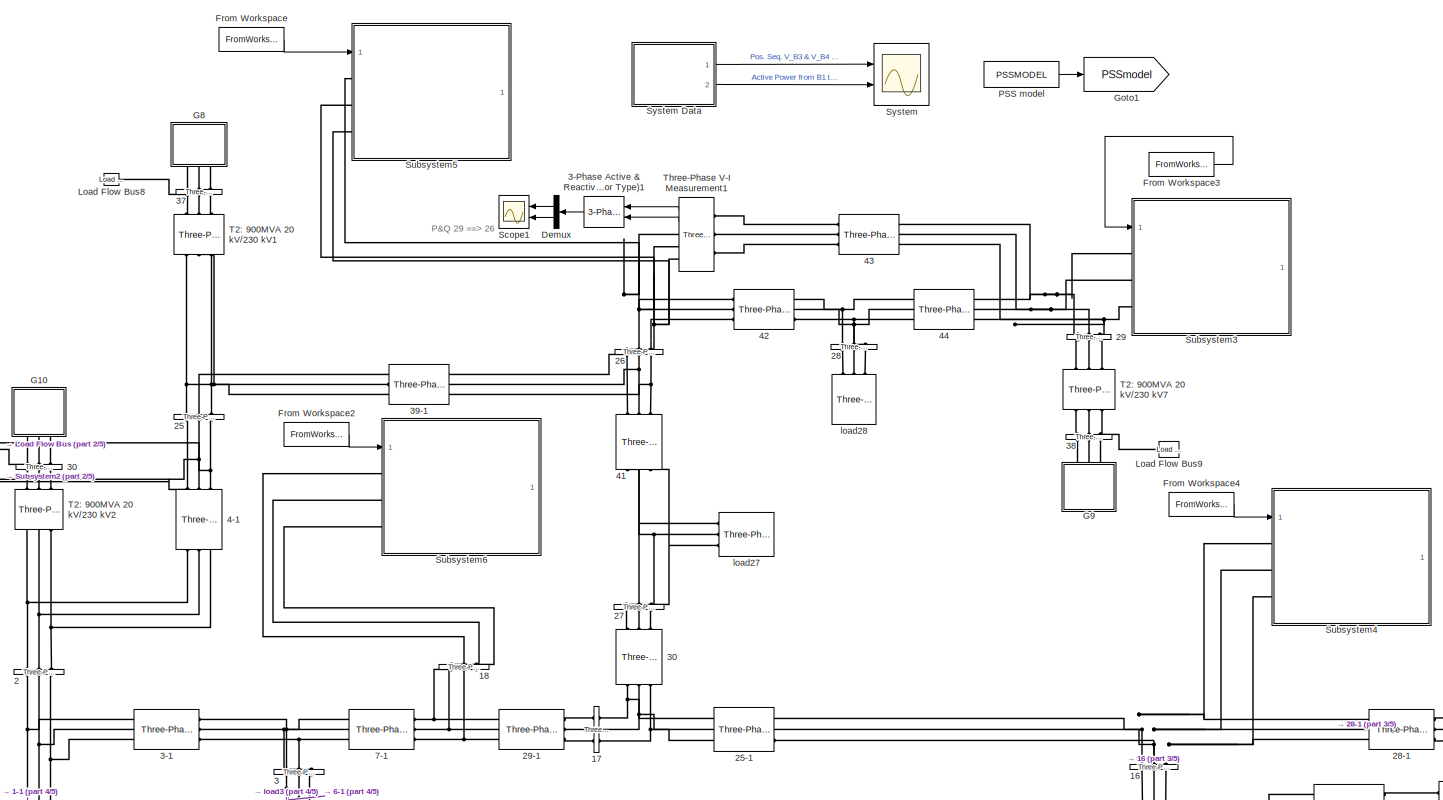
[diagram: root canvas - part 1/5, top center region]
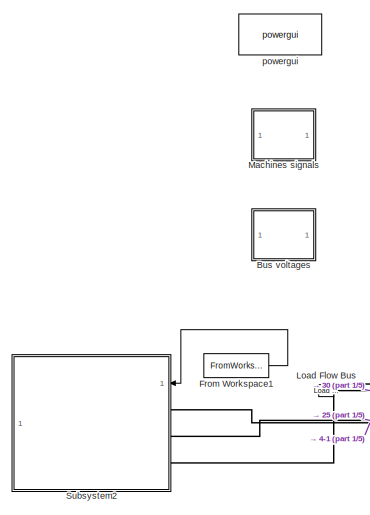
[diagram: root canvas - part 2/5, top left region]
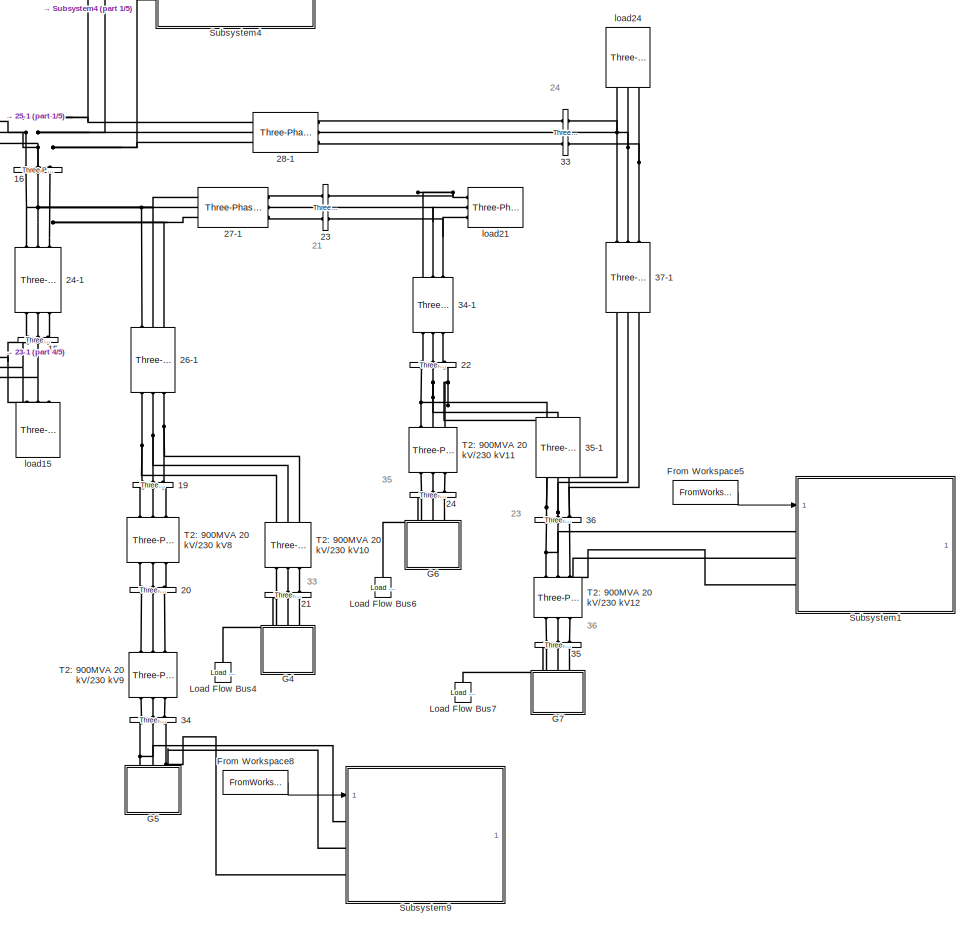
[diagram: root canvas - part 3/5, middle right region]
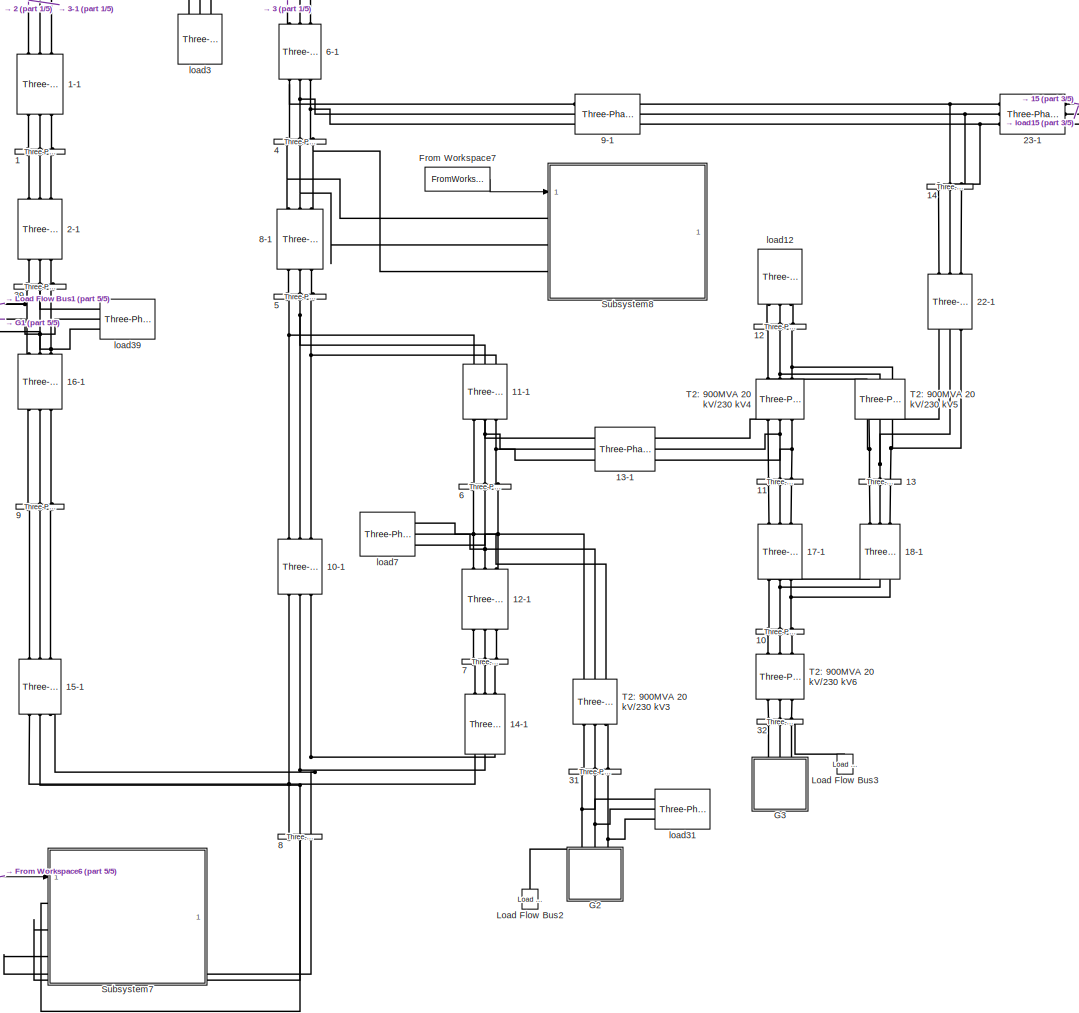
[diagram: root canvas - part 4/5, bottom center region]
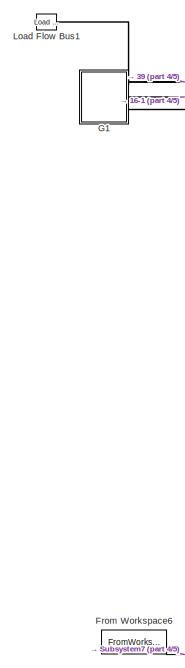
[diagram: root canvas - part 5/5, bottom left region]
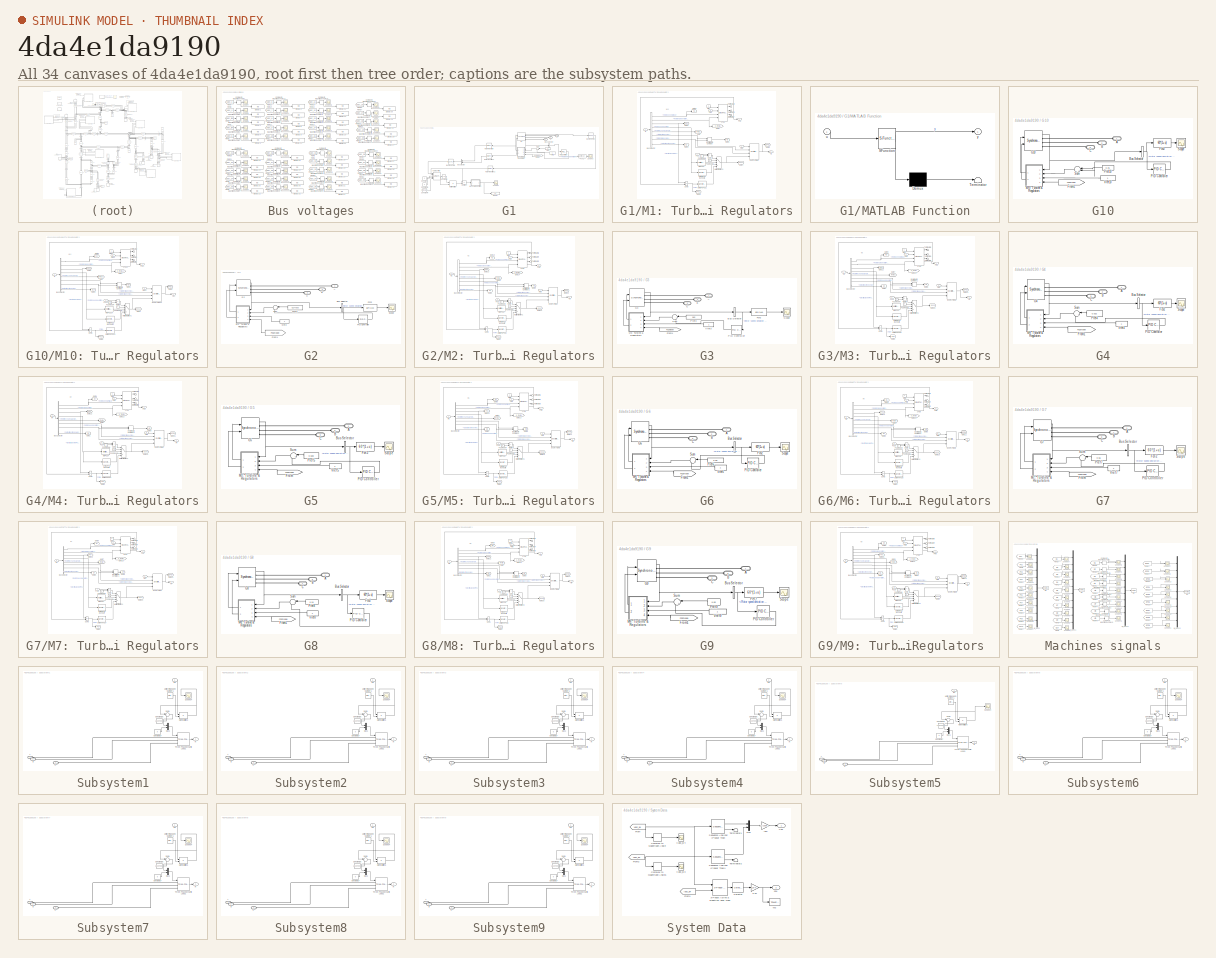
[diagram: thumbnail index - all 34 canvases of the model, root first then tree order]
MODEL slx_4da4e1da9190
KIND model
CONFIG AbsTol = 1e-1
CONFIG EnableMultiTasking = on
CONFIG FixedStep = auto
CONFIG MaxStep = 1/60
CONFIG MinStep = auto
CONFIG PreLoadFcn = NE39bus_data;\nPSSMODEL=1;\nLPSS=0;\nWAPSS=0;\nWAPSS2=0;
CONFIG RelTol = 1e-2
CONFIG SampleTimeConstraint = Unconstrained
CONFIG SolverName = ode23tb
CONFIG StartTime = 0.0
CONFIG StopTime = 4
BLOCK [Reference]  30  REF=spsThreePhasePISectionLineLib/Three-Phase
PI Section Line
  AttributesFormatString = \n
  NameLocation = left
  Ports = [0, 0, 0, 0, 0, 3, 3]
  SourceBlock = spsThreePhasePISectionLineLib/Three-Phase\nPI Section Line
  SourceProductBaseCode = PS
  SourceType = Three-Phase PI Section Line
BLOCK [Reference] 1  REF=spsThreePhaseVIMeasurementLib/Three-Phase
V-I Measurement
  NameLocation = left
  Ports = [0, 0, 0, 0, 0, 3, 3]
  SourceBlock = spsThreePhaseVIMeasurementLib/Three-Phase\nV-I Measurement
  SourceProductBaseCode = PS
  SourceType = Three-Phase VI Measurement
BLOCK [Reference] 1-1  REF=spsThreePhasePISectionLineLib/Three-Phase
PI Section Line
  AttributesFormatString = \n
  NameLocation = left
  Ports = [0, 0, 0, 0, 0, 3, 3]
  SourceBlock = spsThreePhasePISectionLineLib/Three-Phase\nPI Section Line
  SourceProductBaseCode = PS
  SourceType = Three-Phase PI Section Line
BLOCK [Reference] 10  REF=spsThreePhaseVIMeasurementLib/Three-Phase
V-I Measurement
  NameLocation = left
  Ports = [0, 0, 0, 0, 0, 3, 3]
  SourceBlock = spsThreePhaseVIMeasurementLib/Three-Phase\nV-I Measurement
  SourceProductBaseCode = PS
  SourceType = Three-Phase VI Measurement
BLOCK [Reference] 10-1  REF=spsThreePhasePISectionLineLib/Three-Phase
PI Section Line
  AttributesFormatString = \n
  NameLocation = left
  Ports = [0, 0, 0, 0, 0, 3, 3]
  SourceBlock = spsThreePhasePISectionLineLib/Three-Phase\nPI Section Line
  SourceProductBaseCode = PS
  SourceType = Three-Phase PI Section Line
BLOCK [Reference] 11  REF=spsThreePhaseVIMeasurementLib/Three-Phase
V-I Measurement
  NameLocation = left
  Ports = [0, 0, 0, 0, 0, 3, 3]
  SourceBlock = spsThreePhaseVIMeasurementLib/Three-Phase\nV-I Measurement
  SourceProductBaseCode = PS
  SourceType = Three-Phase VI Measurement
BLOCK [Reference] 11-1  REF=spsThreePhasePISectionLineLib/Three-Phase
PI Section Line
  AttributesFormatString = \n
  NameLocation = left
  Ports = [0, 0, 0, 0, 0, 3, 3]
  SourceBlock = spsThreePhasePISectionLineLib/Three-Phase\nPI Section Line
  SourceProductBaseCode = PS
  SourceType = Three-Phase PI Section Line
BLOCK [Reference] 12  REF=spsThreePhaseVIMeasurementLib/Three-Phase
V-I Measurement
  NameLocation = left
  Ports = [0, 0, 0, 0, 0, 3, 3]
  SourceBlock = spsThreePhaseVIMeasurementLib/Three-Phase\nV-I Measurement
  SourceProductBaseCode = PS
  SourceType = Three-Phase VI Measurement
BLOCK [Reference] 12-1  REF=spsThreePhasePISectionLineLib/Three-Phase
PI Section Line
  AttributesFormatString = \n
  NameLocation = left
  Ports = [0, 0, 0, 0, 0, 3, 3]
  SourceBlock = spsThreePhasePISectionLineLib/Three-Phase\nPI Section Line
  SourceProductBaseCode = PS
  SourceType = Three-Phase PI Section Line
BLOCK [Reference] 13  REF=spsThreePhaseVIMeasurementLib/Three-Phase
V-I Measurement
  NameLocation = left
  Ports = [0, 0, 0, 0, 0, 3, 3]
  SourceBlock = spsThreePhaseVIMeasurementLib/Three-Phase\nV-I Measurement
  SourceProductBaseCode = PS
  SourceType = Three-Phase VI Measurement
BLOCK [Reference] 13-1  REF=spsThreePhasePISectionLineLib/Three-Phase
PI Section Line
  AttributesFormatString = \n
  Ports = [0, 0, 0, 0, 0, 3, 3]
  SourceBlock = spsThreePhasePISectionLineLib/Three-Phase\nPI Section Line
  SourceProductBaseCode = PS
  SourceType = Three-Phase PI Section Line
BLOCK [Reference] 14  REF=spsThreePhaseVIMeasurementLib/Three-Phase
V-I Measurement
  NameLocation = right
  Ports = [0, 0, 0, 0, 0, 3, 3]
  SourceBlock = spsThreePhaseVIMeasurementLib/Three-Phase\nV-I Measurement
  SourceProductBaseCode = PS
  SourceType = Three-Phase VI Measurement
BLOCK [Reference] 14-1  REF=spsThreePhasePISectionLineLib/Three-Phase
PI Section Line
  AttributesFormatString = \n
  NameLocation = left
  Ports = [0, 0, 0, 0, 0, 3, 3]
  SourceBlock = spsThreePhasePISectionLineLib/Three-Phase\nPI Section Line
  SourceProductBaseCode = PS
  SourceType = Three-Phase PI Section Line
BLOCK [Reference] 15  REF=spsThreePhaseVIMeasurementLib/Three-Phase
V-I Measurement
  NameLocation = left
  Ports = [0, 0, 0, 0, 0, 3, 3]
  SourceBlock = spsThreePhaseVIMeasurementLib/Three-Phase\nV-I Measurement
  SourceProductBaseCode = PS
  SourceType = Three-Phase VI Measurement
BLOCK [Reference] 15-1  REF=spsThreePhasePISectionLineLib/Three-Phase
PI Section Line
  AttributesFormatString = \n
  NameLocation = right
  Ports = [0, 0, 0, 0, 0, 3, 3]
  SourceBlock = spsThreePhasePISectionLineLib/Three-Phase\nPI Section Line
  SourceProductBaseCode = PS
  SourceType = Three-Phase PI Section Line
BLOCK [Reference] 16  REF=spsThreePhaseVIMeasurementLib/Three-Phase
V-I Measurement
  NameLocation = right
  Ports = [0, 0, 0, 0, 0, 3, 3]
  SourceBlock = spsThreePhaseVIMeasurementLib/Three-Phase\nV-I Measurement
  SourceProductBaseCode = PS
  SourceType = Three-Phase VI Measurement
BLOCK [Reference] 16-1  REF=spsThreePhasePISectionLineLib/Three-Phase
PI Section Line
  AttributesFormatString = \n
  NameLocation = left
  Ports = [0, 0, 0, 0, 0, 3, 3]
  SourceBlock = spsThreePhasePISectionLineLib/Three-Phase\nPI Section Line
  SourceProductBaseCode = PS
  SourceType = Three-Phase PI Section Line
BLOCK [Reference] 17  REF=spsThreePhaseVIMeasurementLib/Three-Phase
V-I Measurement
  NameLocation = top
  Ports = [0, 0, 0, 0, 0, 3, 3]
  SourceBlock = spsThreePhaseVIMeasurementLib/Three-Phase\nV-I Measurement
  SourceProductBaseCode = PS
  SourceType = Three-Phase VI Measurement
BLOCK [Reference] 17-1  REF=spsThreePhasePISectionLineLib/Three-Phase
PI Section Line
  AttributesFormatString = \n
  NameLocation = left
  Ports = [0, 0, 0, 0, 0, 3, 3]
  SourceBlock = spsThreePhasePISectionLineLib/Three-Phase\nPI Section Line
  SourceProductBaseCode = PS
  SourceType = Three-Phase PI Section Line
BLOCK [Reference] 18  REF=spsThreePhaseVIMeasurementLib/Three-Phase
V-I Measurement
  NameLocation = left
  Ports = [0, 0, 0, 0, 0, 3, 3]
  SourceBlock = spsThreePhaseVIMeasurementLib/Three-Phase\nV-I Measurement
  SourceProductBaseCode = PS
  SourceType = Three-Phase VI Measurement
BLOCK [Reference] 18-1  REF=spsThreePhasePISectionLineLib/Three-Phase
PI Section Line
  AttributesFormatString = \n
  NameLocation = left
  Ports = [0, 0, 0, 0, 0, 3, 3]
  SourceBlock = spsThreePhasePISectionLineLib/Three-Phase\nPI Section Line
  SourceProductBaseCode = PS
  SourceType = Three-Phase PI Section Line
BLOCK [Reference] 19  REF=spsThreePhaseVIMeasurementLib/Three-Phase
V-I Measurement
  NameLocation = left
  Ports = [0, 0, 0, 0, 0, 3, 3]
  SourceBlock = spsThreePhaseVIMeasurementLib/Three-Phase\nV-I Measurement
  SourceProductBaseCode = PS
  SourceType = Three-Phase VI Measurement
BLOCK [Reference] 2  REF=spsThreePhaseVIMeasurementLib/Three-Phase
V-I Measurement
  NameLocation = left
  Ports = [0, 0, 0, 0, 0, 3, 3]
  SourceBlock = spsThreePhaseVIMeasurementLib/Three-Phase\nV-I Measurement
  SourceProductBaseCode = PS
  SourceType = Three-Phase VI Measurement
BLOCK [Reference] 2-1  REF=spsThreePhasePISectionLineLib/Three-Phase
PI Section Line
  AttributesFormatString = \n
  NameLocation = left
  Ports = [0, 0, 0, 0, 0, 3, 3]
  SourceBlock = spsThreePhasePISectionLineLib/Three-Phase\nPI Section Line
  SourceProductBaseCode = PS
  SourceType = Three-Phase PI Section Line
BLOCK [Reference] 20  REF=spsThreePhaseVIMeasurementLib/Three-Phase
V-I Measurement
  NameLocation = left
  Ports = [0, 0, 0, 0, 0, 3, 3]
  SourceBlock = spsThreePhaseVIMeasurementLib/Three-Phase\nV-I Measurement
  SourceProductBaseCode = PS
  SourceType = Three-Phase VI Measurement
BLOCK [Reference] 21  REF=spsThreePhaseVIMeasurementLib/Three-Phase
V-I Measurement
  NameLocation = right
  Ports = [0, 0, 0, 0, 0, 3, 3]
  SourceBlock = spsThreePhaseVIMeasurementLib/Three-Phase\nV-I Measurement
  SourceProductBaseCode = PS
  SourceType = Three-Phase VI Measurement
BLOCK [Reference] 22  REF=spsThreePhaseVIMeasurementLib/Three-Phase
V-I Measurement
  NameLocation = left
  Ports = [0, 0, 0, 0, 0, 3, 3]
  SourceBlock = spsThreePhaseVIMeasurementLib/Three-Phase\nV-I Measurement
  SourceProductBaseCode = PS
  SourceType = Three-Phase VI Measurement
BLOCK [Reference] 22-1  REF=spsThreePhasePISectionLineLib/Three-Phase
PI Section Line
  AttributesFormatString = \n
  NameLocation = left
  Ports = [0, 0, 0, 0, 0, 3, 3]
  SourceBlock = spsThreePhasePISectionLineLib/Three-Phase\nPI Section Line
  SourceProductBaseCode = PS
  SourceType = Three-Phase PI Section Line
BLOCK [Reference] 23  REF=spsThreePhaseVIMeasurementLib/Three-Phase
V-I Measurement
  Ports = [0, 0, 0, 0, 0, 3, 3]
  SourceBlock = spsThreePhaseVIMeasurementLib/Three-Phase\nV-I Measurement
  SourceProductBaseCode = PS
  SourceType = Three-Phase VI Measurement
BLOCK [Reference] 23-1  REF=spsThreePhasePISectionLineLib/Three-Phase
PI Section Line
  AttributesFormatString = \n
  NameLocation = top
  Ports = [0, 0, 0, 0, 0, 3, 3]
  SourceBlock = spsThreePhasePISectionLineLib/Three-Phase\nPI Section Line
  SourceProductBaseCode = PS
  SourceType = Three-Phase PI Section Line
BLOCK [Reference] 24  REF=spsThreePhaseVIMeasurementLib/Three-Phase
V-I Measurement
  NameLocation = left
  Ports = [0, 0, 0, 0, 0, 3, 3]
  SourceBlock = spsThreePhaseVIMeasurementLib/Three-Phase\nV-I Measurement
  SourceProductBaseCode = PS
  SourceType = Three-Phase VI Measurement
BLOCK [Reference] 24-1  REF=spsThreePhasePISectionLineLib/Three-Phase
PI Section Line
  AttributesFormatString = \n
  NameLocation = left
  Ports = [0, 0, 0, 0, 0, 3, 3]
  SourceBlock = spsThreePhasePISectionLineLib/Three-Phase\nPI Section Line
  SourceProductBaseCode = PS
  SourceType = Three-Phase PI Section Line
BLOCK [Reference] 25  REF=spsThreePhaseVIMeasurementLib/Three-Phase
V-I Measurement
  NameLocation = left
  Ports = [0, 0, 0, 0, 0, 3, 3]
  SourceBlock = spsThreePhaseVIMeasurementLib/Three-Phase\nV-I Measurement
  SourceProductBaseCode = PS
  SourceType = Three-Phase VI Measurement
BLOCK [Reference] 25-1  REF=spsThreePhasePISectionLineLib/Three-Phase
PI Section Line
  AttributesFormatString = \n
  NameLocation = top
  Ports = [0, 0, 0, 0, 0, 3, 3]
  SourceBlock = spsThreePhasePISectionLineLib/Three-Phase\nPI Section Line
  SourceProductBaseCode = PS
  SourceType = Three-Phase PI Section Line
BLOCK [Reference] 26  REF=spsThreePhaseVIMeasurementLib/Three-Phase
V-I Measurement
  NameLocation = left
  Ports = [0, 0, 0, 0, 0, 3, 3]
  SourceBlock = spsThreePhaseVIMeasurementLib/Three-Phase\nV-I Measurement
  SourceProductBaseCode = PS
  SourceType = Three-Phase VI Measurement
BLOCK [Reference] 26-1  REF=spsThreePhasePISectionLineLib/Three-Phase
PI Section Line
  AttributesFormatString = \n
  NameLocation = left
  Ports = [0, 0, 0, 0, 0, 3, 3]
  SourceBlock = spsThreePhasePISectionLineLib/Three-Phase\nPI Section Line
  SourceProductBaseCode = PS
  SourceType = Three-Phase PI Section Line
BLOCK [Reference] 27  REF=spsThreePhaseVIMeasurementLib/Three-Phase
V-I Measurement
  NameLocation = left
  Ports = [0, 0, 0, 0, 0, 3, 3]
  SourceBlock = spsThreePhaseVIMeasurementLib/Three-Phase\nV-I Measurement
  SourceProductBaseCode = PS
  SourceType = Three-Phase VI Measurement
BLOCK [Reference] 27-1  REF=spsThreePhasePISectionLineLib/Three-Phase
PI Section Line
  AttributesFormatString = \n
  NameLocation = top
  Ports = [0, 0, 0, 0, 0, 3, 3]
  SourceBlock = spsThreePhasePISectionLineLib/Three-Phase\nPI Section Line
  SourceProductBaseCode = PS
  SourceType = Three-Phase PI Section Line
BLOCK [Reference] 28  REF=spsThreePhaseVIMeasurementLib/Three-Phase
V-I Measurement
  NameLocation = right
  Ports = [0, 0, 0, 0, 0, 3, 3]
  SourceBlock = spsThreePhaseVIMeasurementLib/Three-Phase\nV-I Measurement
  SourceProductBaseCode = PS
  SourceType = Three-Phase VI Measurement
BLOCK [Reference] 28-1  REF=spsThreePhasePISectionLineLib/Three-Phase
PI Section Line
  AttributesFormatString = \n
  NameLocation = top
  Ports = [0, 0, 0, 0, 0, 3, 3]
  SourceBlock = spsThreePhasePISectionLineLib/Three-Phase\nPI Section Line
  SourceProductBaseCode = PS
  SourceType = Three-Phase PI Section Line
BLOCK [Reference] 29  REF=spsThreePhaseVIMeasurementLib/Three-Phase
V-I Measurement
  NameLocation = right
  Ports = [0, 0, 0, 0, 0, 3, 3]
  SourceBlock = spsThreePhaseVIMeasurementLib/Three-Phase\nV-I Measurement
  SourceProductBaseCode = PS
  SourceType = Three-Phase VI Measurement
BLOCK [Reference] 29-1  REF=spsThreePhasePISectionLineLib/Three-Phase
PI Section Line
  AttributesFormatString = \n
  NameLocation = top
  Ports = [0, 0, 0, 0, 0, 3, 3]
  SourceBlock = spsThreePhasePISectionLineLib/Three-Phase\nPI Section Line
  SourceProductBaseCode = PS
  SourceType = Three-Phase PI Section Line
BLOCK [Reference] 3  REF=spsThreePhaseVIMeasurementLib/Three-Phase
V-I Measurement
  NameLocation = left
  Ports = [0, 0, 0, 0, 0, 3, 3]
  SourceBlock = spsThreePhaseVIMeasurementLib/Three-Phase\nV-I Measurement
  SourceProductBaseCode = PS
  SourceType = Three-Phase VI Measurement
BLOCK [Reference] 3-1  REF=spsThreePhasePISectionLineLib/Three-Phase
PI Section Line
  AttributesFormatString = \n
  NameLocation = top
  Ports = [0, 0, 0, 0, 0, 3, 3]
  SourceBlock = spsThreePhasePISectionLineLib/Three-Phase\nPI Section Line
  SourceProductBaseCode = PS
  SourceType = Three-Phase PI Section Line
BLOCK [Reference] 3-Phase Active & Reactive Power (Phasor Type)1  REF=powerlib_extras/Phasor
Library/3-Phase
Active & Reactive Power
(Phasor Type)
  NameLocation = top
  Ports = [2, 1]
  SourceBlock = powerlib_extras/Phasor\nLibrary/3-Phase\nActive & Reactive Power\n(Phasor Type)
  SourceProductBaseCode = PS
  SourceType = 3-Phase Active & Reactive Power (Phasor Type)
BLOCK [Reference] 30  REF=spsThreePhaseVIMeasurementLib/Three-Phase
V-I Measurement
  NameLocation = left
  Ports = [0, 0, 0, 0, 0, 3, 3]
  SourceBlock = spsThreePhaseVIMeasurementLib/Three-Phase\nV-I Measurement
  SourceProductBaseCode = PS
  SourceType = Three-Phase VI Measurement
BLOCK [Reference] 31  REF=spsThreePhaseVIMeasurementLib/Three-Phase
V-I Measurement
  NameLocation = left
  Ports = [0, 0, 0, 0, 0, 3, 3]
  SourceBlock = spsThreePhaseVIMeasurementLib/Three-Phase\nV-I Measurement
  SourceProductBaseCode = PS
  SourceType = Three-Phase VI Measurement
BLOCK [Reference] 32  REF=spsThreePhaseVIMeasurementLib/Three-Phase
V-I Measurement
  NameLocation = left
  Ports = [0, 0, 0, 0, 0, 3, 3]
  SourceBlock = spsThreePhaseVIMeasurementLib/Three-Phase\nV-I Measurement
  SourceProductBaseCode = PS
  SourceType = Three-Phase VI Measurement
BLOCK [Reference] 33  REF=spsThreePhaseVIMeasurementLib/Three-Phase
V-I Measurement
  Ports = [0, 0, 0, 0, 0, 3, 3]
  SourceBlock = spsThreePhaseVIMeasurementLib/Three-Phase\nV-I Measurement
  SourceProductBaseCode = PS
  SourceType = Three-Phase VI Measurement
BLOCK [Reference] 34  REF=spsThreePhaseVIMeasurementLib/Three-Phase
V-I Measurement
  NameLocation = left
  Ports = [0, 0, 0, 0, 0, 3, 3]
  SourceBlock = spsThreePhaseVIMeasurementLib/Three-Phase\nV-I Measurement
  SourceProductBaseCode = PS
  SourceType = Three-Phase VI Measurement
BLOCK [Reference] 34-1  REF=spsThreePhasePISectionLineLib/Three-Phase
PI Section Line
  AttributesFormatString = \n
  NameLocation = left
  Ports = [0, 0, 0, 0, 0, 3, 3]
  SourceBlock = spsThreePhasePISectionLineLib/Three-Phase\nPI Section Line
  SourceProductBaseCode = PS
  SourceType = Three-Phase PI Section Line
BLOCK [Reference] 35  REF=spsThreePhaseVIMeasurementLib/Three-Phase
V-I Measurement
  NameLocation = left
  Ports = [0, 0, 0, 0, 0, 3, 3]
  SourceBlock = spsThreePhaseVIMeasurementLib/Three-Phase\nV-I Measurement
  SourceProductBaseCode = PS
  SourceType = Three-Phase VI Measurement
BLOCK [Reference] 35-1  REF=spsThreePhasePISectionLineLib/Three-Phase
PI Section Line
  AttributesFormatString = \n
  NameLocation = left
  Ports = [0, 0, 0, 0, 0, 3, 3]
  SourceBlock = spsThreePhasePISectionLineLib/Three-Phase\nPI Section Line
  SourceProductBaseCode = PS
  SourceType = Three-Phase PI Section Line
BLOCK [Reference] 36  REF=spsThreePhaseVIMeasurementLib/Three-Phase
V-I Measurement
  NameLocation = left
  Ports = [0, 0, 0, 0, 0, 3, 3]
  SourceBlock = spsThreePhaseVIMeasurementLib/Three-Phase\nV-I Measurement
  SourceProductBaseCode = PS
  SourceType = Three-Phase VI Measurement
BLOCK [Reference] 37  REF=spsThreePhaseVIMeasurementLib/Three-Phase
V-I Measurement
  NameLocation = left
  Ports = [0, 0, 0, 0, 0, 3, 3]
  SourceBlock = spsThreePhaseVIMeasurementLib/Three-Phase\nV-I Measurement
  SourceProductBaseCode = PS
  SourceType = Three-Phase VI Measurement
BLOCK [Reference] 37-1  REF=spsThreePhasePISectionLineLib/Three-Phase
PI Section Line
  AttributesFormatString = \n
  NameLocation = left
  Ports = [0, 0, 0, 0, 0, 3, 3]
  SourceBlock = spsThreePhasePISectionLineLib/Three-Phase\nPI Section Line
  SourceProductBaseCode = PS
  SourceType = Three-Phase PI Section Line
BLOCK [Reference] 38  REF=spsThreePhaseVIMeasurementLib/Three-Phase
V-I Measurement
  NameLocation = left
  Ports = [0, 0, 0, 0, 0, 3, 3]
  SourceBlock = spsThreePhaseVIMeasurementLib/Three-Phase\nV-I Measurement
  SourceProductBaseCode = PS
  SourceType = Three-Phase VI Measurement
BLOCK [Reference] 39  REF=spsThreePhaseVIMeasurementLib/Three-Phase
V-I Measurement
  NameLocation = left
  Ports = [0, 0, 0, 0, 0, 3, 3]
  SourceBlock = spsThreePhaseVIMeasurementLib/Three-Phase\nV-I Measurement
  SourceProductBaseCode = PS
  SourceType = Three-Phase VI Measurement
BLOCK [Reference] 39-1  REF=spsThreePhasePISectionLineLib/Three-Phase
PI Section Line
  AttributesFormatString = \n
  NameLocation = top
  Ports = [0, 0, 0, 0, 0, 3, 3]
  SourceBlock = spsThreePhasePISectionLineLib/Three-Phase\nPI Section Line
  SourceProductBaseCode = PS
  SourceType = Three-Phase PI Section Line
BLOCK [Reference] 4  REF=spsThreePhaseVIMeasurementLib/Three-Phase
V-I Measurement
  NameLocation = left
  Ports = [0, 0, 0, 0, 0, 3, 3]
  SourceBlock = spsThreePhaseVIMeasurementLib/Three-Phase\nV-I Measurement
  SourceProductBaseCode = PS
  SourceType = Three-Phase VI Measurement
BLOCK [Reference] 4-1  REF=spsThreePhasePISectionLineLib/Three-Phase
PI Section Line
  AttributesFormatString = \n
  NameLocation = left
  Ports = [0, 0, 0, 0, 0, 3, 3]
  SourceBlock = spsThreePhasePISectionLineLib/Three-Phase\nPI Section Line
  SourceProductBaseCode = PS
  SourceType = Three-Phase PI Section Line
BLOCK [Reference] 41  REF=spsThreePhasePISectionLineLib/Three-Phase
PI Section Line
  AttributesFormatString = \n
  NameLocation = right
  Ports = [0, 0, 0, 0, 0, 3, 3]
  SourceBlock = spsThreePhasePISectionLineLib/Three-Phase\nPI Section Line
  SourceProductBaseCode = PS
  SourceType = Three-Phase PI Section Line
BLOCK [Reference] 42  REF=spsThreePhasePISectionLineLib/Three-Phase
PI Section Line
  AttributesFormatString = \n
  NameLocation = top
  Ports = [0, 0, 0, 0, 0, 3, 3]
  SourceBlock = spsThreePhasePISectionLineLib/Three-Phase\nPI Section Line
  SourceProductBaseCode = PS
  SourceType = Three-Phase PI Section Line
BLOCK [Reference] 43  REF=spsThreePhasePISectionLineLib/Three-Phase
PI Section Line
  AttributesFormatString = \n
  NameLocation = top
  Ports = [0, 0, 0, 0, 0, 3, 3]
  SourceBlock = spsThreePhasePISectionLineLib/Three-Phase\nPI Section Line
  SourceProductBaseCode = PS
  SourceType = Three-Phase PI Section Line
BLOCK [Reference] 44  REF=spsThreePhasePISectionLineLib/Three-Phase
PI Section Line
  AttributesFormatString = \n
  NameLocation = top
  Ports = [0, 0, 0, 0, 0, 3, 3]
  SourceBlock = spsThreePhasePISectionLineLib/Three-Phase\nPI Section Line
  SourceProductBaseCode = PS
  SourceType = Three-Phase PI Section Line
BLOCK [Reference] 5  REF=spsThreePhaseVIMeasurementLib/Three-Phase
V-I Measurement
  NameLocation = left
  Ports = [0, 0, 0, 0, 0, 3, 3]
  SourceBlock = spsThreePhaseVIMeasurementLib/Three-Phase\nV-I Measurement
  SourceProductBaseCode = PS
  SourceType = Three-Phase VI Measurement
BLOCK [Reference] 6  REF=spsThreePhaseVIMeasurementLib/Three-Phase
V-I Measurement
  NameLocation = left
  Ports = [0, 0, 0, 0, 0, 3, 3]
  SourceBlock = spsThreePhaseVIMeasurementLib/Three-Phase\nV-I Measurement
  SourceProductBaseCode = PS
  SourceType = Three-Phase VI Measurement
BLOCK [Reference] 6-1  REF=spsThreePhasePISectionLineLib/Three-Phase
PI Section Line
  AttributesFormatString = \n
  NameLocation = left
  Ports = [0, 0, 0, 0, 0, 3, 3]
  SourceBlock = spsThreePhasePISectionLineLib/Three-Phase\nPI Section Line
  SourceProductBaseCode = PS
  SourceType = Three-Phase PI Section Line
BLOCK [Reference] 7  REF=spsThreePhaseVIMeasurementLib/Three-Phase
V-I Measurement
  NameLocation = right
  Ports = [0, 0, 0, 0, 0, 3, 3]
  SourceBlock = spsThreePhaseVIMeasurementLib/Three-Phase\nV-I Measurement
  SourceProductBaseCode = PS
  SourceType = Three-Phase VI Measurement
BLOCK [Reference] 7-1  REF=spsThreePhasePISectionLineLib/Three-Phase
PI Section Line
  AttributesFormatString = \n
  NameLocation = top
  Ports = [0, 0, 0, 0, 0, 3, 3]
  SourceBlock = spsThreePhasePISectionLineLib/Three-Phase\nPI Section Line
  SourceProductBaseCode = PS
  SourceType = Three-Phase PI Section Line
BLOCK [Reference] 8  REF=spsThreePhaseVIMeasurementLib/Three-Phase
V-I Measurement
  NameLocation = left
  Ports = [0, 0, 0, 0, 0, 3, 3]
  SourceBlock = spsThreePhaseVIMeasurementLib/Three-Phase\nV-I Measurement
  SourceProductBaseCode = PS
  SourceType = Three-Phase VI Measurement
BLOCK [Reference] 8-1  REF=spsThreePhasePISectionLineLib/Three-Phase
PI Section Line
  AttributesFormatString = \n
  NameLocation = left
  Ports = [0, 0, 0, 0, 0, 3, 3]
  SourceBlock = spsThreePhasePISectionLineLib/Three-Phase\nPI Section Line
  SourceProductBaseCode = PS
  SourceType = Three-Phase PI Section Line
BLOCK [Reference] 9  REF=spsThreePhaseVIMeasurementLib/Three-Phase
V-I Measurement
  NameLocation = left
  Ports = [0, 0, 0, 0, 0, 3, 3]
  SourceBlock = spsThreePhaseVIMeasurementLib/Three-Phase\nV-I Measurement
  SourceProductBaseCode = PS
  SourceType = Three-Phase VI Measurement
BLOCK [Reference] 9-1  REF=spsThreePhasePISectionLineLib/Three-Phase
PI Section Line
  AttributesFormatString = \n
  NameLocation = top
  Ports = [0, 0, 0, 0, 0, 3, 3]
  SourceBlock = spsThreePhasePISectionLineLib/Three-Phase\nPI Section Line
  SourceProductBaseCode = PS
  SourceType = Three-Phase PI Section Line
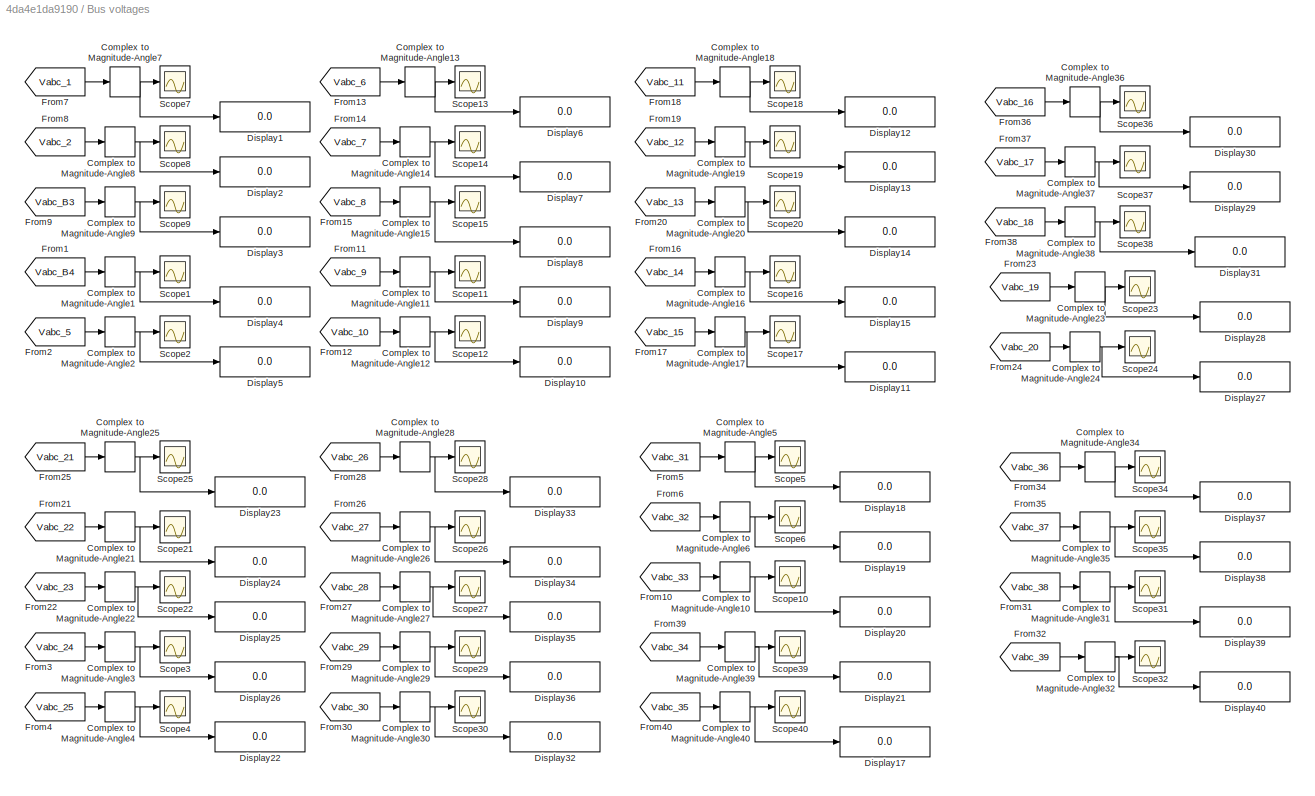
BLOCK [SubSystem] Bus voltages
  Ports = []
  RequestExecContextInheritance = off
BLOCK [ComplexToMagnitudeAngle] Bus voltages/Complex to Magnitude-Angle1
  Output = Magnitude
  Ports = [1, 1]
BLOCK [ComplexToMagnitudeAngle] Bus voltages/Complex to Magnitude-Angle10
  Output = Magnitude
  Ports = [1, 1]
BLOCK [ComplexToMagnitudeAngle] Bus voltages/Complex to Magnitude-Angle11
  Output = Magnitude
  Ports = [1, 1]
BLOCK [ComplexToMagnitudeAngle] Bus voltages/Complex to Magnitude-Angle12
  Output = Magnitude
  Ports = [1, 1]
BLOCK [ComplexToMagnitudeAngle] Bus voltages/Complex to Magnitude-Angle13
  Output = Magnitude
  Ports = [1, 1]
BLOCK [ComplexToMagnitudeAngle] Bus voltages/Complex to Magnitude-Angle14
  Output = Magnitude
  Ports = [1, 1]
BLOCK [ComplexToMagnitudeAngle] Bus voltages/Complex to Magnitude-Angle15
  Output = Magnitude
  Ports = [1, 1]
BLOCK [ComplexToMagnitudeAngle] Bus voltages/Complex to Magnitude-Angle16
  Output = Magnitude
  Ports = [1, 1]
BLOCK [ComplexToMagnitudeAngle] Bus voltages/Complex to Magnitude-Angle17
  Output = Magnitude
  Ports = [1, 1]
BLOCK [ComplexToMagnitudeAngle] Bus voltages/Complex to Magnitude-Angle18
  Output = Magnitude
  Ports = [1, 1]
BLOCK [ComplexToMagnitudeAngle] Bus voltages/Complex to Magnitude-Angle19
  Output = Magnitude
  Ports = [1, 1]
BLOCK [ComplexToMagnitudeAngle] Bus voltages/Complex to Magnitude-Angle2
  Output = Magnitude
  Ports = [1, 1]
BLOCK [ComplexToMagnitudeAngle] Bus voltages/Complex to Magnitude-Angle20
  Output = Magnitude
  Ports = [1, 1]
BLOCK [ComplexToMagnitudeAngle] Bus voltages/Complex to Magnitude-Angle21
  Output = Magnitude
  Ports = [1, 1]
BLOCK [ComplexToMagnitudeAngle] Bus voltages/Complex to Magnitude-Angle22
  Output = Magnitude
  Ports = [1, 1]
BLOCK [ComplexToMagnitudeAngle] Bus voltages/Complex to Magnitude-Angle23
  Output = Magnitude
  Ports = [1, 1]
BLOCK [ComplexToMagnitudeAngle] Bus voltages/Complex to Magnitude-Angle24
  Output = Magnitude
  Ports = [1, 1]
BLOCK [ComplexToMagnitudeAngle] Bus voltages/Complex to Magnitude-Angle25
  Output = Magnitude
  Ports = [1, 1]
BLOCK [ComplexToMagnitudeAngle] Bus voltages/Complex to Magnitude-Angle26
  Output = Magnitude
  Ports = [1, 1]
BLOCK [ComplexToMagnitudeAngle] Bus voltages/Complex to Magnitude-Angle27
  Output = Magnitude
  Ports = [1, 1]
BLOCK [ComplexToMagnitudeAngle] Bus voltages/Complex to Magnitude-Angle28
  Output = Magnitude
  Ports = [1, 1]
BLOCK [ComplexToMagnitudeAngle] Bus voltages/Complex to Magnitude-Angle29
  Output = Magnitude
  Ports = [1, 1]
BLOCK [ComplexToMagnitudeAngle] Bus voltages/Complex to Magnitude-Angle3
  Output = Magnitude
  Ports = [1, 1]
BLOCK [ComplexToMagnitudeAngle] Bus voltages/Complex to Magnitude-Angle30
  Output = Magnitude
  Ports = [1, 1]
BLOCK [ComplexToMagnitudeAngle] Bus voltages/Complex to Magnitude-Angle31
  Output = Magnitude
  Ports = [1, 1]
BLOCK [ComplexToMagnitudeAngle] Bus voltages/Complex to Magnitude-Angle32
  Output = Magnitude
  Ports = [1, 1]
BLOCK [ComplexToMagnitudeAngle] Bus voltages/Complex to Magnitude-Angle34
  Output = Magnitude
  Ports = [1, 1]
BLOCK [ComplexToMagnitudeAngle] Bus voltages/Complex to Magnitude-Angle35
  Output = Magnitude
  Ports = [1, 1]
BLOCK [ComplexToMagnitudeAngle] Bus voltages/Complex to Magnitude-Angle36
  Output = Magnitude
  Ports = [1, 1]
BLOCK [ComplexToMagnitudeAngle] Bus voltages/Complex to Magnitude-Angle37
  Output = Magnitude
  Ports = [1, 1]
BLOCK [ComplexToMagnitudeAngle] Bus voltages/Complex to Magnitude-Angle38
  Output = Magnitude
  Ports = [1, 1]
BLOCK [ComplexToMagnitudeAngle] Bus voltages/Complex to Magnitude-Angle39
  Output = Magnitude
  Ports = [1, 1]
BLOCK [ComplexToMagnitudeAngle] Bus voltages/Complex to Magnitude-Angle4
  Output = Magnitude
  Ports = [1, 1]
BLOCK [ComplexToMagnitudeAngle] Bus voltages/Complex to Magnitude-Angle40
  Output = Magnitude
  Ports = [1, 1]
BLOCK [ComplexToMagnitudeAngle] Bus voltages/Complex to Magnitude-Angle5
  Output = Magnitude
  Ports = [1, 1]
BLOCK [ComplexToMagnitudeAngle] Bus voltages/Complex to Magnitude-Angle6
  Output = Magnitude
  Ports = [1, 1]
BLOCK [ComplexToMagnitudeAngle] Bus voltages/Complex to Magnitude-Angle7
  Output = Magnitude
  Ports = [1, 1]
BLOCK [ComplexToMagnitudeAngle] Bus voltages/Complex to Magnitude-Angle8
  Output = Magnitude
  Ports = [1, 1]
BLOCK [ComplexToMagnitudeAngle] Bus voltages/Complex to Magnitude-Angle9
  Output = Magnitude
  Ports = [1, 1]
BLOCK [Display] Bus voltages/Display1
  Decimation = 1
  Ports = [1]
BLOCK [Display] Bus voltages/Display10
  Decimation = 1
  Ports = [1]
BLOCK [Display] Bus voltages/Display11
  Decimation = 1
  Ports = [1]
BLOCK [Display] Bus voltages/Display12
  Decimation = 1
  Ports = [1]
BLOCK [Display] Bus voltages/Display13
  Decimation = 1
  Ports = [1]
BLOCK [Display] Bus voltages/Display14
  Decimation = 1
  Ports = [1]
BLOCK [Display] Bus voltages/Display15
  Decimation = 1
  Ports = [1]
BLOCK [Display] Bus voltages/Display17
  Decimation = 1
  Ports = [1]
BLOCK [Display] Bus voltages/Display18
  Decimation = 1
  Ports = [1]
BLOCK [Display] Bus voltages/Display19
  Decimation = 1
  Ports = [1]
BLOCK [Display] Bus voltages/Display2
  Decimation = 1
  Ports = [1]
BLOCK [Display] Bus voltages/Display20
  Decimation = 1
  Ports = [1]
BLOCK [Display] Bus voltages/Display21
  Decimation = 1
  Ports = [1]
BLOCK [Display] Bus voltages/Display22
  Decimation = 1
  Ports = [1]
BLOCK [Display] Bus voltages/Display23
  Decimation = 1
  Ports = [1]
BLOCK [Display] Bus voltages/Display24
  Decimation = 1
  Ports = [1]
BLOCK [Display] Bus voltages/Display25
  Decimation = 1
  Ports = [1]
BLOCK [Display] Bus voltages/Display26
  Decimation = 1
  Ports = [1]
BLOCK [Display] Bus voltages/Display27
  Decimation = 1
  Ports = [1]
BLOCK [Display] Bus voltages/Display28
  Decimation = 1
  Ports = [1]
BLOCK [Display] Bus voltages/Display29
  Decimation = 1
  Ports = [1]
BLOCK [Display] Bus voltages/Display3
  Decimation = 1
  Ports = [1]
BLOCK [Display] Bus voltages/Display30
  Decimation = 1
  Ports = [1]
BLOCK [Display] Bus voltages/Display31
  Decimation = 1
  Ports = [1]
BLOCK [Display] Bus voltages/Display32
  Decimation = 1
  Ports = [1]
BLOCK [Display] Bus voltages/Display33
  Decimation = 1
  Ports = [1]
BLOCK [Display] Bus voltages/Display34
  Decimation = 1
  Ports = [1]
BLOCK [Display] Bus voltages/Display35
  Decimation = 1
  Ports = [1]
BLOCK [Display] Bus voltages/Display36
  Decimation = 1
  Ports = [1]
BLOCK [Display] Bus voltages/Display37
  Decimation = 1
  Ports = [1]
BLOCK [Display] Bus voltages/Display38
  Decimation = 1
  Ports = [1]
BLOCK [Display] Bus voltages/Display39
  Decimation = 1
  Ports = [1]
BLOCK [Display] Bus voltages/Display4
  Decimation = 1
  Ports = [1]
BLOCK [Display] Bus voltages/Display40
  Decimation = 1
  Ports = [1]
BLOCK [Display] Bus voltages/Display5
  Decimation = 1
  Ports = [1]
BLOCK [Display] Bus voltages/Display6
  Decimation = 1
  Ports = [1]
BLOCK [Display] Bus voltages/Display7
  Decimation = 1
  Ports = [1]
BLOCK [Display] Bus voltages/Display8
  Decimation = 1
  Ports = [1]
BLOCK [Display] Bus voltages/Display9
  Decimation = 1
  Ports = [1]
BLOCK [From] Bus voltages/From1
  CloseFcn = tagdialog Close
  GotoTag = Vabc_B4
  TagVisibility = global
BLOCK [From] Bus voltages/From10
  CloseFcn = tagdialog Close
  GotoTag = Vabc_33
  TagVisibility = global
BLOCK [From] Bus voltages/From11
  CloseFcn = tagdialog Close
  GotoTag = Vabc_9
  TagVisibility = global
BLOCK [From] Bus voltages/From12
  CloseFcn = tagdialog Close
  GotoTag = Vabc_10
  TagVisibility = global
BLOCK [From] Bus voltages/From13
  CloseFcn = tagdialog Close
  GotoTag = Vabc_6
  TagVisibility = global
BLOCK [From] Bus voltages/From14
  CloseFcn = tagdialog Close
  GotoTag = Vabc_7
  TagVisibility = global
BLOCK [From] Bus voltages/From15
  CloseFcn = tagdialog Close
  GotoTag = Vabc_8
  TagVisibility = global
BLOCK [From] Bus voltages/From16
  CloseFcn = tagdialog Close
  GotoTag = Vabc_14
  TagVisibility = global
BLOCK [From] Bus voltages/From17
  CloseFcn = tagdialog Close
  GotoTag = Vabc_15
  TagVisibility = global
BLOCK [From] Bus voltages/From18
  CloseFcn = tagdialog Close
  GotoTag = Vabc_11
  TagVisibility = global
BLOCK [From] Bus voltages/From19
  CloseFcn = tagdialog Close
  GotoTag = Vabc_12
  TagVisibility = global
BLOCK [From] Bus voltages/From2
  CloseFcn = tagdialog Close
  GotoTag = Vabc_5
  TagVisibility = global
BLOCK [From] Bus voltages/From20
  CloseFcn = tagdialog Close
  GotoTag = Vabc_13
  TagVisibility = global
BLOCK [From] Bus voltages/From21
  CloseFcn = tagdialog Close
  GotoTag = Vabc_22
  TagVisibility = global
BLOCK [From] Bus voltages/From22
  CloseFcn = tagdialog Close
  GotoTag = Vabc_23
  TagVisibility = global
BLOCK [From] Bus voltages/From23
  CloseFcn = tagdialog Close
  GotoTag = Vabc_19
  TagVisibility = global
BLOCK [From] Bus voltages/From24
  CloseFcn = tagdialog Close
  GotoTag = Vabc_20
  TagVisibility = global
BLOCK [From] Bus voltages/From25
  CloseFcn = tagdialog Close
  GotoTag = Vabc_21
  TagVisibility = global
BLOCK [From] Bus voltages/From26
  CloseFcn = tagdialog Close
  GotoTag = Vabc_27
  TagVisibility = global
BLOCK [From] Bus voltages/From27
  CloseFcn = tagdialog Close
  GotoTag = Vabc_28
  TagVisibility = global
BLOCK [From] Bus voltages/From28
  CloseFcn = tagdialog Close
  GotoTag = Vabc_26
  TagVisibility = global
BLOCK [From] Bus voltages/From29
  CloseFcn = tagdialog Close
  GotoTag = Vabc_29
  TagVisibility = global
BLOCK [From] Bus voltages/From3
  CloseFcn = tagdialog Close
  GotoTag = Vabc_24
  TagVisibility = global
BLOCK [From] Bus voltages/From30
  CloseFcn = tagdialog Close
  GotoTag = Vabc_30
  TagVisibility = global
BLOCK [From] Bus voltages/From31
  CloseFcn = tagdialog Close
  GotoTag = Vabc_38
  TagVisibility = global
BLOCK [From] Bus voltages/From32
  CloseFcn = tagdialog Close
  GotoTag = Vabc_39
  TagVisibility = global
BLOCK [From] Bus voltages/From34
  CloseFcn = tagdialog Close
  GotoTag = Vabc_36
  TagVisibility = global
BLOCK [From] Bus voltages/From35
  CloseFcn = tagdialog Close
  GotoTag = Vabc_37
  TagVisibility = global
BLOCK [From] Bus voltages/From36
  CloseFcn = tagdialog Close
  GotoTag = Vabc_16
  TagVisibility = global
BLOCK [From] Bus voltages/From37
  CloseFcn = tagdialog Close
  GotoTag = Vabc_17
  TagVisibility = global
BLOCK [From] Bus voltages/From38
  CloseFcn = tagdialog Close
  GotoTag = Vabc_18
  TagVisibility = global
BLOCK [From] Bus voltages/From39
  CloseFcn = tagdialog Close
  GotoTag = Vabc_34
  TagVisibility = global
BLOCK [From] Bus voltages/From4
  CloseFcn = tagdialog Close
  GotoTag = Vabc_25
  TagVisibility = global
BLOCK [From] Bus voltages/From40
  CloseFcn = tagdialog Close
  GotoTag = Vabc_35
  TagVisibility = global
BLOCK [From] Bus voltages/From5
  CloseFcn = tagdialog Close
  GotoTag = Vabc_31
  TagVisibility = global
BLOCK [From] Bus voltages/From6
  CloseFcn = tagdialog Close
  GotoTag = Vabc_32
  TagVisibility = global
BLOCK [From] Bus voltages/From7
  CloseFcn = tagdialog Close
  GotoTag = Vabc_1
  TagVisibility = global
BLOCK [From] Bus voltages/From8
  CloseFcn = tagdialog Close
  GotoTag = Vabc_2
  TagVisibility = global
BLOCK [From] Bus voltages/From9
  CloseFcn = tagdialog Close
  GotoTag = Vabc_B3
  TagVisibility = global
BLOCK [Scope] Bus voltages/Scope1
  Floating = off
  NumInputPorts = 1
  Ports = [1]
  ScopeSpecificationString = C++SS(StrPVP('Location','[7, 75, 1036, 794]'),StrPVP('Open','off'),StrPVP('ZoomMode','xonly'),MxPVP('AxesTitles',54,'struct(''axes1'',''%<SignalLabel>'')'),StrPVP('YMin','-0.07'),StrPVP('YMax','0.07'),StrPVP('SaveToWorkspace','on'),StrPVP('SaveName','v'),StrPVP('DataFormat','StructureWithTime'),StrPVP('LimitDataPoints','off'),StrPVP('BlockParamSampleTime','0'),StrPVP('Decimation','1'),StrPVP('Bloc...<+26ch>
BLOCK [Scope] Bus voltages/Scope10
  Floating = off
  NumInputPorts = 1
  Ports = [1]
  ScopeSpecificationString = C++SS(StrPVP('Location','[7, 75, 1036, 794]'),StrPVP('Open','off'),StrPVP('ZoomMode','xonly'),MxPVP('AxesTitles',54,'struct(''axes1'',''%<SignalLabel>'')'),StrPVP('YMin','-0.07'),StrPVP('YMax','0.07'),StrPVP('SaveToWorkspace','on'),StrPVP('SaveName','v2'),StrPVP('DataFormat','StructureWithTime'),StrPVP('LimitDataPoints','off'),StrPVP('BlockParamSampleTime','0'),StrPVP('Decimation','1'),StrPVP('Blo...<+27ch>
BLOCK [Scope] Bus voltages/Scope11
  Floating = off
  NumInputPorts = 1
  Ports = [1]
  ScopeSpecificationString = C++SS(StrPVP('Location','[7, 75, 1036, 794]'),StrPVP('Open','off'),StrPVP('ZoomMode','xonly'),MxPVP('AxesTitles',54,'struct(''axes1'',''%<SignalLabel>'')'),StrPVP('YMin','-0.07'),StrPVP('YMax','0.07'),StrPVP('SaveToWorkspace','on'),StrPVP('SaveName','v11'),StrPVP('DataFormat','StructureWithTime'),StrPVP('LimitDataPoints','off'),StrPVP('BlockParamSampleTime','0'),StrPVP('Decimation','1'),StrPVP('Bl...<+28ch>
BLOCK [Scope] Bus voltages/Scope12
  Floating = off
  NumInputPorts = 1
  Ports = [1]
  ScopeSpecificationString = C++SS(StrPVP('Location','[7, 75, 1036, 794]'),StrPVP('Open','off'),StrPVP('ZoomMode','xonly'),MxPVP('AxesTitles',54,'struct(''axes1'',''%<SignalLabel>'')'),StrPVP('YMin','-0.07'),StrPVP('YMax','0.07'),StrPVP('SaveToWorkspace','on'),StrPVP('SaveName','v12'),StrPVP('DataFormat','StructureWithTime'),StrPVP('LimitDataPoints','off'),StrPVP('BlockParamSampleTime','0'),StrPVP('Decimation','1'),StrPVP('Bl...<+28ch>
BLOCK [Scope] Bus voltages/Scope13
  Floating = off
  NumInputPorts = 1
  Ports = [1]
  ScopeSpecificationString = C++SS(StrPVP('Location','[7, 75, 1036, 794]'),StrPVP('Open','off'),StrPVP('ZoomMode','xonly'),MxPVP('AxesTitles',54,'struct(''axes1'',''%<SignalLabel>'')'),StrPVP('YMin','-0.07'),StrPVP('YMax','0.07'),StrPVP('SaveToWorkspace','on'),StrPVP('SaveName','v13'),StrPVP('DataFormat','StructureWithTime'),StrPVP('LimitDataPoints','off'),StrPVP('BlockParamSampleTime','0'),StrPVP('Decimation','1'),StrPVP('Bl...<+28ch>
BLOCK [Scope] Bus voltages/Scope14
  Floating = off
  NumInputPorts = 1
  Ports = [1]
  ScopeSpecificationString = C++SS(StrPVP('Location','[7, 75, 1036, 794]'),StrPVP('Open','off'),StrPVP('ZoomMode','xonly'),MxPVP('AxesTitles',54,'struct(''axes1'',''%<SignalLabel>'')'),StrPVP('YMin','-0.07'),StrPVP('YMax','0.07'),StrPVP('SaveToWorkspace','on'),StrPVP('SaveName','v14'),StrPVP('DataFormat','StructureWithTime'),StrPVP('LimitDataPoints','off'),StrPVP('BlockParamSampleTime','0'),StrPVP('Decimation','1'),StrPVP('Bl...<+28ch>
BLOCK [Scope] Bus voltages/Scope15
  Floating = off
  NumInputPorts = 1
  Ports = [1]
  ScopeSpecificationString = C++SS(StrPVP('Location','[7, 75, 1036, 794]'),StrPVP('Open','off'),StrPVP('ZoomMode','xonly'),MxPVP('AxesTitles',54,'struct(''axes1'',''%<SignalLabel>'')'),StrPVP('YMin','-0.07'),StrPVP('YMax','0.07'),StrPVP('SaveToWorkspace','on'),StrPVP('SaveName','v15'),StrPVP('DataFormat','StructureWithTime'),StrPVP('LimitDataPoints','off'),StrPVP('BlockParamSampleTime','0'),StrPVP('Decimation','1'),StrPVP('Bl...<+28ch>
BLOCK [Scope] Bus voltages/Scope16
  Floating = off
  NumInputPorts = 1
  Ports = [1]
  ScopeSpecificationString = C++SS(StrPVP('Location','[7, 75, 1036, 794]'),StrPVP('Open','off'),StrPVP('ZoomMode','xonly'),MxPVP('AxesTitles',54,'struct(''axes1'',''%<SignalLabel>'')'),StrPVP('YMin','-0.07'),StrPVP('YMax','0.07'),StrPVP('SaveToWorkspace','on'),StrPVP('SaveName','v16'),StrPVP('DataFormat','StructureWithTime'),StrPVP('LimitDataPoints','off'),StrPVP('BlockParamSampleTime','0'),StrPVP('Decimation','1'),StrPVP('Bl...<+28ch>
BLOCK [Scope] Bus voltages/Scope17
  Floating = off
  NumInputPorts = 1
  Ports = [1]
  ScopeSpecificationString = C++SS(StrPVP('Location','[7, 75, 1036, 794]'),StrPVP('Open','off'),StrPVP('ZoomMode','xonly'),MxPVP('AxesTitles',54,'struct(''axes1'',''%<SignalLabel>'')'),StrPVP('YMin','-0.07'),StrPVP('YMax','0.07'),StrPVP('SaveToWorkspace','on'),StrPVP('SaveName','v17'),StrPVP('DataFormat','StructureWithTime'),StrPVP('LimitDataPoints','off'),StrPVP('BlockParamSampleTime','0'),StrPVP('Decimation','1'),StrPVP('Bl...<+28ch>
BLOCK [Scope] Bus voltages/Scope18
  Floating = off
  NumInputPorts = 1
  Ports = [1]
  ScopeSpecificationString = C++SS(StrPVP('Location','[7, 75, 1036, 794]'),StrPVP('Open','off'),StrPVP('ZoomMode','xonly'),MxPVP('AxesTitles',54,'struct(''axes1'',''%<SignalLabel>'')'),StrPVP('YMin','-0.07'),StrPVP('YMax','0.07'),StrPVP('SaveToWorkspace','on'),StrPVP('SaveName','v18'),StrPVP('DataFormat','StructureWithTime'),StrPVP('LimitDataPoints','off'),StrPVP('BlockParamSampleTime','0'),StrPVP('Decimation','1'),StrPVP('Bl...<+28ch>
BLOCK [Scope] Bus voltages/Scope19
  Floating = off
  NumInputPorts = 1
  Ports = [1]
  ScopeSpecificationString = C++SS(StrPVP('Location','[7, 75, 1036, 794]'),StrPVP('Open','off'),StrPVP('ZoomMode','xonly'),MxPVP('AxesTitles',54,'struct(''axes1'',''%<SignalLabel>'')'),StrPVP('YMin','-0.07'),StrPVP('YMax','0.07'),StrPVP('SaveToWorkspace','on'),StrPVP('SaveName','v19'),StrPVP('DataFormat','StructureWithTime'),StrPVP('LimitDataPoints','off'),StrPVP('BlockParamSampleTime','0'),StrPVP('Decimation','1'),StrPVP('Bl...<+28ch>
BLOCK [Scope] Bus voltages/Scope2
  Floating = off
  NumInputPorts = 1
  Ports = [1]
  ScopeSpecificationString = C++SS(StrPVP('Location','[7, 75, 1036, 794]'),StrPVP('Open','off'),StrPVP('ZoomMode','xonly'),MxPVP('AxesTitles',54,'struct(''axes1'',''%<SignalLabel>'')'),StrPVP('YMin','-0.07'),StrPVP('YMax','0.07'),StrPVP('SaveToWorkspace','on'),StrPVP('SaveName','v1'),StrPVP('DataFormat','StructureWithTime'),StrPVP('LimitDataPoints','off'),StrPVP('BlockParamSampleTime','0'),StrPVP('Decimation','1'),StrPVP('Blo...<+27ch>
BLOCK [Scope] Bus voltages/Scope20
  Floating = off
  NumInputPorts = 1
  Ports = [1]
  ScopeSpecificationString = C++SS(StrPVP('Location','[7, 75, 1036, 794]'),StrPVP('Open','off'),StrPVP('ZoomMode','xonly'),MxPVP('AxesTitles',54,'struct(''axes1'',''%<SignalLabel>'')'),StrPVP('YMin','-0.07'),StrPVP('YMax','0.07'),StrPVP('SaveToWorkspace','on'),StrPVP('SaveName','v20'),StrPVP('DataFormat','StructureWithTime'),StrPVP('LimitDataPoints','off'),StrPVP('BlockParamSampleTime','0'),StrPVP('Decimation','1'),StrPVP('Bl...<+28ch>
BLOCK [Scope] Bus voltages/Scope21
  Floating = off
  NumInputPorts = 1
  Ports = [1]
  ScopeSpecificationString = C++SS(StrPVP('Location','[7, 75, 1036, 794]'),StrPVP('Open','off'),StrPVP('ZoomMode','xonly'),MxPVP('AxesTitles',54,'struct(''axes1'',''%<SignalLabel>'')'),StrPVP('YMin','-0.07'),StrPVP('YMax','0.07'),StrPVP('SaveToWorkspace','on'),StrPVP('SaveName','v21'),StrPVP('DataFormat','StructureWithTime'),StrPVP('LimitDataPoints','off'),StrPVP('BlockParamSampleTime','0'),StrPVP('Decimation','1'),StrPVP('Bl...<+28ch>
BLOCK [Scope] Bus voltages/Scope22
  Floating = off
  NumInputPorts = 1
  Ports = [1]
  ScopeSpecificationString = C++SS(StrPVP('Location','[7, 75, 1036, 794]'),StrPVP('Open','off'),StrPVP('ZoomMode','xonly'),MxPVP('AxesTitles',54,'struct(''axes1'',''%<SignalLabel>'')'),StrPVP('YMin','-0.07'),StrPVP('YMax','0.07'),StrPVP('SaveToWorkspace','on'),StrPVP('SaveName','v22'),StrPVP('DataFormat','StructureWithTime'),StrPVP('LimitDataPoints','off'),StrPVP('BlockParamSampleTime','0'),StrPVP('Decimation','1'),StrPVP('Bl...<+28ch>
BLOCK [Scope] Bus voltages/Scope23
  Floating = off
  NumInputPorts = 1
  Ports = [1]
  ScopeSpecificationString = C++SS(StrPVP('Location','[7, 75, 1036, 794]'),StrPVP('Open','off'),StrPVP('ZoomMode','xonly'),MxPVP('AxesTitles',54,'struct(''axes1'',''%<SignalLabel>'')'),MxPVP('ScopeGraphics',57,'struct(''FigureColor'',''[0.5 0.5 0.5]'',''AxesColor'',''[0 0 0]'',''AxesTickColor'',''[1 1 1]'',''LineColors'',''[1 1 0;1 0 1;0 1 1;1 0 0;0 1 0;0 0 1]'',''LineStyles'',''-|-|-|-|-|-'',''LineWidths'',''[0.5 0.5 0.5 0.5...<+338ch>
BLOCK [Scope] Bus voltages/Scope24
  Floating = off
  NumInputPorts = 1
  Ports = [1]
  ScopeSpecificationString = C++SS(StrPVP('Location','[7, 75, 1036, 794]'),StrPVP('Open','off'),StrPVP('ZoomMode','xonly'),MxPVP('AxesTitles',54,'struct(''axes1'',''%<SignalLabel>'')'),StrPVP('YMin','-0.07'),StrPVP('YMax','0.07'),StrPVP('SaveToWorkspace','on'),StrPVP('SaveName','v69'),StrPVP('DataFormat','StructureWithTime'),StrPVP('LimitDataPoints','off'),StrPVP('BlockParamSampleTime','0'),StrPVP('Decimation','1'),StrPVP('Bl...<+28ch>
BLOCK [Scope] Bus voltages/Scope25
  Floating = off
  NumInputPorts = 1
  Ports = [1]
  ScopeSpecificationString = C++SS(StrPVP('Location','[7, 75, 1036, 794]'),StrPVP('Open','off'),StrPVP('ZoomMode','xonly'),MxPVP('AxesTitles',54,'struct(''axes1'',''%<SignalLabel>'')'),StrPVP('YMin','-0.07'),StrPVP('YMax','0.07'),StrPVP('SaveToWorkspace','on'),StrPVP('SaveName','v70'),StrPVP('DataFormat','StructureWithTime'),StrPVP('LimitDataPoints','off'),StrPVP('BlockParamSampleTime','0'),StrPVP('Decimation','1'),StrPVP('Bl...<+28ch>
BLOCK [Scope] Bus voltages/Scope26
  Floating = off
  NumInputPorts = 1
  Ports = [1]
  ScopeSpecificationString = C++SS(StrPVP('Location','[7, 75, 1036, 794]'),StrPVP('Open','off'),StrPVP('ZoomMode','xonly'),MxPVP('AxesTitles',54,'struct(''axes1'',''%<SignalLabel>'')'),StrPVP('YMin','-0.07'),StrPVP('YMax','0.07'),StrPVP('SaveToWorkspace','on'),StrPVP('SaveName','v63'),StrPVP('DataFormat','StructureWithTime'),StrPVP('LimitDataPoints','off'),StrPVP('BlockParamSampleTime','0'),StrPVP('Decimation','1'),StrPVP('Bl...<+28ch>
BLOCK [Scope] Bus voltages/Scope27
  Floating = off
  NumInputPorts = 1
  Ports = [1]
  ScopeSpecificationString = C++SS(StrPVP('Location','[7, 75, 1036, 794]'),StrPVP('Open','off'),StrPVP('ZoomMode','xonly'),MxPVP('AxesTitles',54,'struct(''axes1'',''%<SignalLabel>'')'),StrPVP('YMin','-0.07'),StrPVP('YMax','0.07'),StrPVP('SaveToWorkspace','on'),StrPVP('SaveName','v64'),StrPVP('DataFormat','StructureWithTime'),StrPVP('LimitDataPoints','off'),StrPVP('BlockParamSampleTime','0'),StrPVP('Decimation','1'),StrPVP('Bl...<+28ch>
BLOCK [Scope] Bus voltages/Scope28
  Floating = off
  NumInputPorts = 1
  Ports = [1]
  ScopeSpecificationString = C++SS(StrPVP('Location','[7, 75, 1036, 794]'),StrPVP('Open','off'),StrPVP('ZoomMode','xonly'),MxPVP('AxesTitles',54,'struct(''axes1'',''%<SignalLabel>'')'),StrPVP('YMin','-0.07'),StrPVP('YMax','0.07'),StrPVP('SaveToWorkspace','on'),StrPVP('SaveName','v65'),StrPVP('DataFormat','StructureWithTime'),StrPVP('LimitDataPoints','off'),StrPVP('BlockParamSampleTime','0'),StrPVP('Decimation','1'),StrPVP('Bl...<+28ch>
BLOCK [Scope] Bus voltages/Scope29
  Floating = off
  NumInputPorts = 1
  Ports = [1]
  ScopeSpecificationString = C++SS(StrPVP('Location','[7, 75, 1036, 794]'),StrPVP('Open','off'),StrPVP('ZoomMode','xonly'),MxPVP('AxesTitles',54,'struct(''axes1'',''%<SignalLabel>'')'),StrPVP('YMin','-0.07'),StrPVP('YMax','0.07'),StrPVP('SaveToWorkspace','on'),StrPVP('SaveName','v66'),StrPVP('DataFormat','StructureWithTime'),StrPVP('LimitDataPoints','off'),StrPVP('BlockParamSampleTime','0'),StrPVP('Decimation','1'),StrPVP('Bl...<+28ch>
BLOCK [Scope] Bus voltages/Scope3
  Floating = off
  NumInputPorts = 1
  Ports = [1]
  ScopeSpecificationString = C++SS(StrPVP('Location','[7, 75, 1036, 794]'),StrPVP('Open','off'),StrPVP('ZoomMode','xonly'),MxPVP('AxesTitles',54,'struct(''axes1'',''%<SignalLabel>'')'),StrPVP('YMin','-0.07'),StrPVP('YMax','0.07'),StrPVP('SaveToWorkspace','on'),StrPVP('SaveName','v3'),StrPVP('DataFormat','StructureWithTime'),StrPVP('LimitDataPoints','off'),StrPVP('BlockParamSampleTime','0'),StrPVP('Decimation','1'),StrPVP('Blo...<+27ch>
BLOCK [Scope] Bus voltages/Scope30
  Floating = off
  NumInputPorts = 1
  Ports = [1]
  ScopeSpecificationString = C++SS(StrPVP('Location','[7, 75, 1036, 794]'),StrPVP('Open','off'),StrPVP('ZoomMode','xonly'),MxPVP('AxesTitles',54,'struct(''axes1'',''%<SignalLabel>'')'),StrPVP('YMin','-0.07'),StrPVP('YMax','0.07'),StrPVP('SaveToWorkspace','on'),StrPVP('SaveName','v67'),StrPVP('DataFormat','StructureWithTime'),StrPVP('LimitDataPoints','off'),StrPVP('BlockParamSampleTime','0'),StrPVP('Decimation','1'),StrPVP('Bl...<+28ch>
BLOCK [Scope] Bus voltages/Scope31
  Floating = off
  NumInputPorts = 1
  Ports = [1]
  ScopeSpecificationString = C++SS(StrPVP('Location','[7, 75, 1036, 794]'),StrPVP('Open','off'),StrPVP('ZoomMode','xonly'),MxPVP('AxesTitles',54,'struct(''axes1'',''%<SignalLabel>'')'),StrPVP('YMin','-0.07'),StrPVP('YMax','0.07'),StrPVP('SaveToWorkspace','on'),StrPVP('SaveName','v71'),StrPVP('DataFormat','StructureWithTime'),StrPVP('LimitDataPoints','off'),StrPVP('BlockParamSampleTime','0'),StrPVP('Decimation','1'),StrPVP('Bl...<+28ch>
BLOCK [Scope] Bus voltages/Scope32
  Floating = off
  NumInputPorts = 1
  Ports = [1]
  ScopeSpecificationString = C++SS(StrPVP('Location','[7, 75, 1036, 794]'),StrPVP('Open','off'),StrPVP('ZoomMode','xonly'),MxPVP('AxesTitles',54,'struct(''axes1'',''%<SignalLabel>'')'),StrPVP('YMin','-0.07'),StrPVP('YMax','0.07'),StrPVP('SaveToWorkspace','on'),StrPVP('SaveName','v72'),StrPVP('DataFormat','StructureWithTime'),StrPVP('LimitDataPoints','off'),StrPVP('BlockParamSampleTime','0'),StrPVP('Decimation','1'),StrPVP('Bl...<+28ch>
BLOCK [Scope] Bus voltages/Scope34
  Floating = off
  NumInputPorts = 1
  Ports = [1]
  ScopeSpecificationString = C++SS(StrPVP('Location','[7, 75, 1036, 794]'),StrPVP('Open','off'),StrPVP('ZoomMode','xonly'),MxPVP('AxesTitles',54,'struct(''axes1'',''%<SignalLabel>'')'),StrPVP('YMin','-0.07'),StrPVP('YMax','0.07'),StrPVP('SaveToWorkspace','on'),StrPVP('SaveName','v74'),StrPVP('DataFormat','StructureWithTime'),StrPVP('LimitDataPoints','off'),StrPVP('BlockParamSampleTime','0'),StrPVP('Decimation','1'),StrPVP('Bl...<+28ch>
BLOCK [Scope] Bus voltages/Scope35
  Floating = off
  NumInputPorts = 1
  Ports = [1]
  ScopeSpecificationString = C++SS(StrPVP('Location','[7, 75, 1036, 794]'),StrPVP('Open','off'),StrPVP('ZoomMode','xonly'),MxPVP('AxesTitles',54,'struct(''axes1'',''%<SignalLabel>'')'),StrPVP('YMin','-0.07'),StrPVP('YMax','0.07'),StrPVP('SaveToWorkspace','on'),StrPVP('SaveName','v75'),StrPVP('DataFormat','StructureWithTime'),StrPVP('LimitDataPoints','off'),StrPVP('BlockParamSampleTime','0'),StrPVP('Decimation','1'),StrPVP('Bl...<+28ch>
BLOCK [Scope] Bus voltages/Scope36
  Floating = off
  NumInputPorts = 1
  Ports = [1]
  ScopeSpecificationString = C++SS(StrPVP('Location','[7, 75, 1036, 794]'),StrPVP('Open','off'),StrPVP('ZoomMode','xonly'),MxPVP('AxesTitles',54,'struct(''axes1'',''%<SignalLabel>'')'),StrPVP('YMin','-0.07'),StrPVP('YMax','0.07'),StrPVP('SaveToWorkspace','on'),StrPVP('SaveName','v48'),StrPVP('DataFormat','StructureWithTime'),StrPVP('LimitDataPoints','off'),StrPVP('BlockParamSampleTime','0'),StrPVP('Decimation','1'),StrPVP('Bl...<+28ch>
BLOCK [Scope] Bus voltages/Scope37
  Floating = off
  NumInputPorts = 1
  Ports = [1]
  ScopeSpecificationString = C++SS(StrPVP('Location','[7, 75, 1036, 794]'),StrPVP('Open','off'),StrPVP('ZoomMode','xonly'),MxPVP('AxesTitles',54,'struct(''axes1'',''%<SignalLabel>'')'),StrPVP('YMin','-0.07'),StrPVP('YMax','0.07'),StrPVP('SaveToWorkspace','on'),StrPVP('SaveName','v49'),StrPVP('DataFormat','StructureWithTime'),StrPVP('LimitDataPoints','off'),StrPVP('BlockParamSampleTime','0'),StrPVP('Decimation','1'),StrPVP('Bl...<+28ch>
BLOCK [Scope] Bus voltages/Scope38
  Floating = off
  NumInputPorts = 1
  Ports = [1]
  ScopeSpecificationString = C++SS(StrPVP('Location','[7, 75, 1036, 794]'),StrPVP('Open','off'),StrPVP('ZoomMode','xonly'),MxPVP('AxesTitles',54,'struct(''axes1'',''%<SignalLabel>'')'),StrPVP('YMin','-0.07'),StrPVP('YMax','0.07'),StrPVP('SaveToWorkspace','on'),StrPVP('SaveName','v50'),StrPVP('DataFormat','StructureWithTime'),StrPVP('LimitDataPoints','off'),StrPVP('BlockParamSampleTime','0'),StrPVP('Decimation','1'),StrPVP('Bl...<+28ch>
BLOCK [Scope] Bus voltages/Scope39
  Floating = off
  NumInputPorts = 1
  Ports = [1]
  ScopeSpecificationString = C++SS(StrPVP('Location','[7, 75, 1036, 794]'),StrPVP('Open','off'),StrPVP('ZoomMode','xonly'),MxPVP('AxesTitles',54,'struct(''axes1'',''%<SignalLabel>'')'),StrPVP('YMin','-0.07'),StrPVP('YMax','0.07'),StrPVP('SaveToWorkspace','on'),StrPVP('SaveName','v51'),StrPVP('DataFormat','StructureWithTime'),StrPVP('LimitDataPoints','off'),StrPVP('BlockParamSampleTime','0'),StrPVP('Decimation','1'),StrPVP('Bl...<+28ch>
BLOCK [Scope] Bus voltages/Scope4
  Floating = off
  NumInputPorts = 1
  Ports = [1]
  ScopeSpecificationString = C++SS(StrPVP('Location','[7, 75, 1036, 794]'),StrPVP('Open','off'),StrPVP('ZoomMode','xonly'),MxPVP('AxesTitles',54,'struct(''axes1'',''%<SignalLabel>'')'),StrPVP('YMin','-0.07'),StrPVP('YMax','0.07'),StrPVP('SaveToWorkspace','on'),StrPVP('SaveName','v4'),StrPVP('DataFormat','StructureWithTime'),StrPVP('LimitDataPoints','off'),StrPVP('BlockParamSampleTime','0'),StrPVP('Decimation','1'),StrPVP('Blo...<+27ch>
BLOCK [Scope] Bus voltages/Scope40
  Floating = off
  NumInputPorts = 1
  Ports = [1]
  ScopeSpecificationString = C++SS(StrPVP('Location','[7, 75, 1036, 794]'),StrPVP('Open','off'),StrPVP('ZoomMode','xonly'),MxPVP('AxesTitles',54,'struct(''axes1'',''%<SignalLabel>'')'),StrPVP('YMin','-0.07'),StrPVP('YMax','0.07'),StrPVP('SaveToWorkspace','on'),StrPVP('SaveName','v62'),StrPVP('DataFormat','StructureWithTime'),StrPVP('LimitDataPoints','off'),StrPVP('BlockParamSampleTime','0'),StrPVP('Decimation','1'),StrPVP('Bl...<+28ch>
BLOCK [Scope] Bus voltages/Scope5
  Floating = off
  NumInputPorts = 1
  Ports = [1]
  ScopeSpecificationString = C++SS(StrPVP('Location','[7, 75, 1036, 794]'),StrPVP('Open','off'),StrPVP('ZoomMode','xonly'),MxPVP('AxesTitles',54,'struct(''axes1'',''%<SignalLabel>'')'),StrPVP('YMin','-0.07'),StrPVP('YMax','0.07'),StrPVP('SaveToWorkspace','on'),StrPVP('SaveName','v5'),StrPVP('DataFormat','StructureWithTime'),StrPVP('LimitDataPoints','off'),StrPVP('BlockParamSampleTime','0'),StrPVP('Decimation','1'),StrPVP('Blo...<+27ch>
BLOCK [Scope] Bus voltages/Scope6
  Floating = off
  NumInputPorts = 1
  Ports = [1]
  ScopeSpecificationString = C++SS(StrPVP('Location','[7, 75, 1036, 794]'),StrPVP('Open','off'),StrPVP('ZoomMode','xonly'),MxPVP('AxesTitles',54,'struct(''axes1'',''%<SignalLabel>'')'),StrPVP('YMin','-0.07'),StrPVP('YMax','0.07'),StrPVP('SaveToWorkspace','on'),StrPVP('SaveName','v10'),StrPVP('DataFormat','StructureWithTime'),StrPVP('LimitDataPoints','off'),StrPVP('BlockParamSampleTime','0'),StrPVP('Decimation','1'),StrPVP('Bl...<+28ch>
BLOCK [Scope] Bus voltages/Scope7
  Floating = off
  NumInputPorts = 1
  Ports = [1]
  ScopeSpecificationString = C++SS(StrPVP('Location','[1, 45, 1681, 1005]'),StrPVP('Open','off'),StrPVP('ZoomMode','xonly'),MxPVP('AxesTitles',54,'struct(''axes1'',''%<SignalLabel>'')'),MxPVP('ScopeGraphics',57,'struct(''FigureColor'',''[0.5 0.5 0.5]'',''AxesColor'',''[0 0 0]'',''AxesTickColor'',''[1 1 1]'',''LineColors'',''[1 1 0;1 0 1;0 1 1;1 0 0;0 1 0;0 0 1]'',''LineStyles'',''-|-|-|-|-|-'',''LineWidths'',''[0.5 0.5 0.5 0....<+338ch>
BLOCK [Scope] Bus voltages/Scope8
  Floating = off
  NumInputPorts = 1
  Ports = [1]
  ScopeSpecificationString = C++SS(StrPVP('Location','[7, 75, 1036, 794]'),StrPVP('Open','off'),StrPVP('ZoomMode','xonly'),MxPVP('AxesTitles',54,'struct(''axes1'',''%<SignalLabel>'')'),StrPVP('YMin','-0.07'),StrPVP('YMax','0.07'),StrPVP('SaveToWorkspace','on'),StrPVP('SaveName','v8'),StrPVP('DataFormat','StructureWithTime'),StrPVP('LimitDataPoints','off'),StrPVP('BlockParamSampleTime','0'),StrPVP('Decimation','1'),StrPVP('Blo...<+27ch>
BLOCK [Scope] Bus voltages/Scope9
  Floating = off
  NumInputPorts = 1
  Ports = [1]
  ScopeSpecificationString = C++SS(StrPVP('Location','[7, 75, 1036, 794]'),StrPVP('Open','off'),StrPVP('ZoomMode','xonly'),MxPVP('AxesTitles',54,'struct(''axes1'',''%<SignalLabel>'')'),MxPVP('ScopeGraphics',57,'struct(''FigureColor'',''[0.5 0.5 0.5]'',''AxesColor'',''[0 0 0]'',''AxesTickColor'',''[1 1 1]'',''LineColors'',''[1 1 0;1 0 1;0 1 1;1 0 0;0 1 0;0 0 1]'',''LineStyles'',''-|-|-|-|-|-'',''LineWidths'',''[0.5 0.5 0.5 0.5...<+337ch>
BLOCK [Demux] Demux
  DisplayOption = none
  NameLocation = top
  Outputs = 2
  Ports = [1, 2]
BLOCK [FromWorkspace] From Workspace
  VariableName = action2
BLOCK [FromWorkspace] From Workspace1
  VariableName = action2
BLOCK [FromWorkspace] From Workspace2
  VariableName = action2
BLOCK [FromWorkspace] From Workspace3
  VariableName = action2
BLOCK [FromWorkspace] From Workspace4
  VariableName = action2
BLOCK [FromWorkspace] From Workspace5
  VariableName = action2
BLOCK [FromWorkspace] From Workspace6
  VariableName = action2
BLOCK [FromWorkspace] From Workspace7
  VariableName = action2
BLOCK [FromWorkspace] From Workspace8
  VariableName = action2
BLOCK [SubSystem] G1
  NameLocation = top
  Ports = [0, 0, 0, 0, 0, 3]
  RequestExecContextInheritance = off
BLOCK [PMIOPort] G1/A
  Side = Left
BLOCK [PMIOPort] G1/B
  Port = 2
  Side = Left
BLOCK [BusCreator] G1/Bus Creator
  DisplayOption = bar
  InheritFromInputs = on
  Inputs = 2
  NameLocation = top
  Ports = [2, 1]
BLOCK [BusSelector] G1/Bus Selector
  OutputSignals = Mechanical.Rotor speed deviation  dw (pu)
  Ports = [1, 1]
BLOCK [BusToVector] G1/Bus to Vector
BLOCK [BusToVector] G1/Bus to Vector1
  NameLocation = top
BLOCK [PMIOPort] G1/C
  Port = 3
  Side = Left
BLOCK [Constant] G1/Constant
  Value = 5
BLOCK [Constant] G1/Constant3
  Value = 5
BLOCK [Constant] G1/Constant4
  Value = zeros(9,24)
BLOCK [Constant] G1/Constant5
  Value = linsys1.C
BLOCK [Display] G1/Display
  Decimation = 1
  Ports = [1]
BLOCK [Fcn] G1/Fcn2
  Expr = 60*(1+u)
BLOCK [From] G1/From1
  CloseFcn = tagdialog Close
  GotoTag = PSSmodel
  NameLocation = top
  TagVisibility = global
BLOCK [Reference] G1/G1  REF=spsSynchronousMachinepuStandardLib/Synchronous Machine
pu Standard
  AttributesFormatString = \n\n
  Ports = [2, 1, 0, 0, 0, 0, 3]
  SourceBlock = spsSynchronousMachinepuStandardLib/Synchronous Machine\npu Standard
  SourceProductBaseCode = PS
  SourceType = Synchronous Machine
BLOCK [Reference] G1/Kalman Filter  REF=ctrlSharedLib/Kalman Filter
  Ports = [5, 1]
  SourceBlock = ctrlSharedLib/Kalman Filter
  SourceProductBaseCode = CT,ID
  SourceType = ctrlKalmanFilter
BLOCK [SubSystem] G1/M1: Turbine & Regulators
  Ports = [4, 2]
  RequestExecContextInheritance = off
BLOCK [BusSelector] G1/M1: Turbine & Regulators/Bus Selector
  OutputSignals = Mechanical.Rotor speed  wm  (pu),Mechanical.Rotor angle deviation  d_theta (rad),Mechanical.Electrical power  Pe (pu),Mechanical.Rotor speed deviation  dw (pu),Mechanical.Rotor mechanical angle  theta (deg),dq0 components.Stator voltage  vd (pu),dq0 components.Stator voltage  vq (pu),Output reactive power  Qeo (pu)  <repeated x10 — deduplicated; at blocks: Bus Selector>
  Ports = [1, 8]
BLOCK [Reference] G1/M1: Turbine & Regulators/Delta Pa PSS 1  REF=spsGenericPowerSystemStabilizerLib/Generic
Power System Stabilizer
  Ports = [1, 1]
  SourceBlock = spsGenericPowerSystemStabilizerLib/Generic\nPower System Stabilizer
  SourceProductBaseCode = PS
  SourceType = Generic Power System Stabilizer
BLOCK [Reference] G1/M1: Turbine & Regulators/Delta w PSS (Kundur) 1  REF=spsGenericPowerSystemStabilizerLib/Generic
Power System Stabilizer
  Ports = [1, 1]
  SourceBlock = spsGenericPowerSystemStabilizerLib/Generic\nPower System Stabilizer
  SourceProductBaseCode = PS
  SourceType = Generic Power System Stabilizer
BLOCK [Reference] G1/M1: Turbine & Regulators/EXCITATION1  REF=spsExcitationSystemLib/Excitation System
  Ports = [4, 1]
  SourceBlock = spsExcitationSystemLib/Excitation System
  SourceProductBaseCode = PS
  SourceType = Excitation System
BLOCK [Goto] G1/M1: Turbine & Regulators/Goto
  GotoTag = theta1
  TagVisibility = global
BLOCK [Goto] G1/M1: Turbine & Regulators/Goto1
  GotoTag = Vt1
  TagVisibility = global
BLOCK [Goto] G1/M1: Turbine & Regulators/Goto2
  GotoTag = w1
  TagVisibility = global
BLOCK [Goto] G1/M1: Turbine & Regulators/Goto3
  GotoTag = Q1
  TagVisibility = global
BLOCK [Goto] G1/M1: Turbine & Regulators/Goto4
  GotoTag = pss1
  TagVisibility = global
BLOCK [Goto] G1/M1: Turbine & Regulators/Goto5
  GotoTag = EFD1
  TagVisibility = global
BLOCK [Goto] G1/M1: Turbine & Regulators/Goto6
  GotoTag = Pe1
  TagVisibility = global
BLOCK [Goto] G1/M1: Turbine & Regulators/Goto7
  GotoTag = d_theta1
  TagVisibility = global
BLOCK [Goto] G1/M1: Turbine & Regulators/Goto8
  GotoTag = Pa1
  TagVisibility = global
BLOCK [Reference] G1/M1: Turbine & Regulators/MB-PSS1  REF=spsMultiBandPowerSystemStabilizerLib/Multi-Band
Power System Stabilizer
  Ports = [1, 1]
  SourceBlock = spsMultiBandPowerSystemStabilizerLib/Multi-Band\nPower System Stabilizer
  SourceProductBaseCode = PS
  SourceType = Multi-Band Power System Stabilizer
BLOCK [MultiPortSwitch] G1/M1: Turbine & Regulators/Multiport Switch1
  Inputs = 4
  Ports = [5, 1]
  SaturateOnIntegerOverflow = off
BLOCK [Constant] G1/M1: Turbine & Regulators/PSS model3
  Value = 0
BLOCK [Constant] G1/M1: Turbine & Regulators/PSS model4
BLOCK [Inport] G1/M1: Turbine & Regulators/PSS1
  Port = 4
BLOCK [Outport] G1/M1: Turbine & Regulators/Pm1
  InitialOutput = 0
BLOCK [Inport] G1/M1: Turbine & Regulators/Pref1
  Port = 2
BLOCK [RealImagToComplex] G1/M1: Turbine & Regulators/Real-Imag to Complex
  Ports = [2, 1]
BLOCK [Reference] G1/M1: Turbine & Regulators/STG1  REF=spsSteamTurbineandGovernorLib/Steam Turbine
and Governor
  Ports = [4, 4]
  SourceBlock = spsSteamTurbineandGovernorLib/Steam Turbine\nand Governor
  SourceProductBaseCode = PS
  SourceType = Steam Turbine and Governor
BLOCK [Sum] G1/M1: Turbine & Regulators/Sum2
  IconShape = rectangular
  InputSameDT = on
  OutDataTypeStr = Inherit: Same as first input
  Ports = [2, 1]
  SaturateOnIntegerOverflow = on
BLOCK [Sum] G1/M1: Turbine & Regulators/Sum3
  IconShape = rectangular
  InputSameDT = on
  Inputs = -+
  OutDataTypeStr = Inherit: Same as first input
  Ports = [2, 1]
  SaturateOnIntegerOverflow = on
BLOCK [Terminator] G1/M1: Turbine & Regulators/Terminator
BLOCK [Terminator] G1/M1: Turbine & Regulators/Terminator1
BLOCK [Terminator] G1/M1: Turbine & Regulators/Terminator2
BLOCK [Outport] G1/M1: Turbine & Regulators/Vf1
  InitialOutput = 0
  Port = 2
BLOCK [Inport] G1/M1: Turbine & Regulators/Vref1
  Port = 3
BLOCK [Inport] G1/M1: Turbine & Regulators/m
BLOCK [Constant] G1/M1: Turbine & Regulators/wref
  NameLocation = top
BLOCK [SubSystem] G1/MATLAB Function
  ErrorFcn = Stateflow.Translate.translate
  PermitHierarchicalResolution = ExplicitOnly
  Ports = [1, 1]
  RequestExecContextInheritance = off
  SFBlockType = MATLAB Function
  TreatAsAtomicUnit = on
BLOCK [Demux] G1/MATLAB Function/ Demux 
  Outputs = 1
  Ports = [1, 1]
BLOCK [S-Function] G1/MATLAB Function/ SFunction 
  EnableBusSupport = on
  FunctionName = sf_sfun
  PortCounts = [1 2]
  Ports = [1, 2]
  SFcnIsStateOwnerBlock = off
  SFunctionDeploymentMode = off
  Tag = Stateflow S-Function 2
BLOCK [Terminator] G1/MATLAB Function/ Terminator 
BLOCK [Inport] G1/MATLAB Function/u
BLOCK [Outport] G1/MATLAB Function/y
  VectorParamsAs1DForOutWhenUnconnected = off
BLOCK [Product] G1/Matrix Multiply
  Multiplication = Matrix(*)
  Ports = [2, 1]
BLOCK [Reference] G1/PID Controller  REF=slpidlib/PID Controller
  Ports = [1, 1]
  SourceBlock = slpidlib/PID Controller
  SourceProductBaseCode = SL
  SourceType = PID 1dof
BLOCK [Constant] G1/Pref1
BLOCK [RateTransition] G1/Rate Transition
  NameLocation = top
BLOCK [RateTransition] G1/Rate Transition1
  NameLocation = top
BLOCK [RateTransition] G1/Rate Transition2
  NameLocation = top
BLOCK [Scope] G1/Scope1
  Floating = off
  NumInputPorts = 1
  Ports = [1]
  ScopeSpecificationString = Simulink.scopes.TimeScopeBlockCfg('CurrentConfiguration', extmgr.ConfigurationSet(extmgr.Configuration('Core','General UI',true),extmgr.Configuration('Core','Source UI',true),extmgr.Configuration('Sources','WiredSimulink',true,'DataLoggingVariableName','ScopeData2'),extmgr.Configuration('Visuals','Time Domain',true,'SerializedDisplays',{struct('MinYLimReal','-2.06138','MaxYLimReal','18.55241','YLa...<+1451ch>
BLOCK [Scope] G1/Scope3
  Floating = off
  NumInputPorts = 1
  Ports = [1]
  ScopeSpecificationString = Simulink.scopes.TimeScopeBlockCfg('CurrentConfiguration', extmgr.ConfigurationSet(extmgr.Configuration('Core','General UI',true),extmgr.Configuration('Core','Source UI',true),extmgr.Configuration('Sources','WiredSimulink',true,'DataLoggingVariableName','ScopeData2'),extmgr.Configuration('Visuals','Time Domain',true,'SerializedDisplays',{struct('MinYLimReal','59.95823','MaxYLimReal','60.3614','YLab...<+1438ch>
BLOCK [Sum] G1/Subtract
  IconShape = rectangular
  Inputs = +-
  Ports = [2, 1]
BLOCK [Sum] G1/Sum
  Inputs = |++
  NameLocation = top
  Ports = [2, 1]
BLOCK [Constant] G1/Vref1
BLOCK [SubSystem] G10
  NameLocation = right
  Ports = [0, 0, 0, 0, 0, 3]
  RequestExecContextInheritance = off
BLOCK [PMIOPort] G10/A
  Side = Left
BLOCK [PMIOPort] G10/B
  Port = 2
  Side = Left
BLOCK [BusSelector] G10/Bus Selector
  OutputSignals = Mechanical.Rotor speed deviation  dw (pu)
  Ports = [1, 1]
BLOCK [PMIOPort] G10/C
  Port = 3
  Side = Left
BLOCK [Fcn] G10/Fcn2
  Expr = 60*(1+u)
BLOCK [From] G10/From1
  CloseFcn = tagdialog Close
  GotoTag = PSSmodel
  NameLocation = top
  TagVisibility = global
BLOCK [Reference] G10/G10  REF=spsSynchronousMachinepuStandardLib/Synchronous Machine
pu Standard
  AttributesFormatString = \n\n
  Ports = [2, 1, 0, 0, 0, 0, 3]
  SourceBlock = spsSynchronousMachinepuStandardLib/Synchronous Machine\npu Standard
  SourceProductBaseCode = PS
  SourceType = Synchronous Machine
BLOCK [SubSystem] G10/M10: Turbine & Regulators
  Ports = [4, 2]
  RequestExecContextInheritance = off
BLOCK [BusSelector] G10/M10: Turbine & Regulators/Bus Selector
  Ports = [1, 8]
BLOCK [Reference] G10/M10: Turbine & Regulators/Delta Pa PSS 10  REF=spsGenericPowerSystemStabilizerLib/Generic
Power System Stabilizer
  Ports = [1, 1]
  SourceBlock = spsGenericPowerSystemStabilizerLib/Generic\nPower System Stabilizer
  SourceProductBaseCode = PS
  SourceType = Generic Power System Stabilizer
BLOCK [Reference] G10/M10: Turbine & Regulators/Delta w PSS (Kundur) 10  REF=spsGenericPowerSystemStabilizerLib/Generic
Power System Stabilizer
  Ports = [1, 1]
  SourceBlock = spsGenericPowerSystemStabilizerLib/Generic\nPower System Stabilizer
  SourceProductBaseCode = PS
  SourceType = Generic Power System Stabilizer
BLOCK [Reference] G10/M10: Turbine & Regulators/EXCITATION10  REF=spsExcitationSystemLib/Excitation System
  Ports = [4, 1]
  SourceBlock = spsExcitationSystemLib/Excitation System
  SourceProductBaseCode = PS
  SourceType = Excitation System
BLOCK [Goto] G10/M10: Turbine & Regulators/Goto
  GotoTag = theta10
  TagVisibility = global
BLOCK [Goto] G10/M10: Turbine & Regulators/Goto1
  GotoTag = Vt10
  TagVisibility = global
BLOCK [Goto] G10/M10: Turbine & Regulators/Goto2
  GotoTag = w10
  TagVisibility = global
BLOCK [Goto] G10/M10: Turbine & Regulators/Goto3
  GotoTag = Q10
  TagVisibility = global
BLOCK [Goto] G10/M10: Turbine & Regulators/Goto4
  GotoTag = pss10
  TagVisibility = global
BLOCK [Goto] G10/M10: Turbine & Regulators/Goto5
  GotoTag = EFD10
  TagVisibility = global
BLOCK [Goto] G10/M10: Turbine & Regulators/Goto6
  GotoTag = Pe10
  TagVisibility = global
BLOCK [Goto] G10/M10: Turbine & Regulators/Goto7
  GotoTag = d_theta10
  TagVisibility = global
BLOCK [Goto] G10/M10: Turbine & Regulators/Goto8
  GotoTag = Pa10
  TagVisibility = global
BLOCK [Reference] G10/M10: Turbine & Regulators/MB-PSS10   REF=spsMultiBandPowerSystemStabilizerLib/Multi-Band
Power System Stabilizer
  Ports = [1, 1]
  SourceBlock = spsMultiBandPowerSystemStabilizerLib/Multi-Band\nPower System Stabilizer
  SourceProductBaseCode = PS
  SourceType = Multi-Band Power System Stabilizer
BLOCK [MultiPortSwitch] G10/M10: Turbine & Regulators/Multiport Switch1
  Inputs = 4
  Ports = [5, 1]
  SaturateOnIntegerOverflow = off
BLOCK [Constant] G10/M10: Turbine & Regulators/PSS model3
  Value = 0
BLOCK [Constant] G10/M10: Turbine & Regulators/PSS model4
BLOCK [Inport] G10/M10: Turbine & Regulators/PSS10
  Port = 4
BLOCK [Outport] G10/M10: Turbine & Regulators/Pm10
  InitialOutput = 0
BLOCK [Inport] G10/M10: Turbine & Regulators/Pref10
  Port = 2
BLOCK [RealImagToComplex] G10/M10: Turbine & Regulators/Real-Imag to Complex
  Ports = [2, 1]
BLOCK [Reference] G10/M10: Turbine & Regulators/STG10  REF=spsSteamTurbineandGovernorLib/Steam Turbine
and Governor
  Ports = [4, 4]
  SourceBlock = spsSteamTurbineandGovernorLib/Steam Turbine\nand Governor
  SourceProductBaseCode = PS
  SourceType = Steam Turbine and Governor
BLOCK [Sum] G10/M10: Turbine & Regulators/Sum2
  IconShape = rectangular
  InputSameDT = on
  OutDataTypeStr = Inherit: Same as first input
  Ports = [2, 1]
  SaturateOnIntegerOverflow = on
BLOCK [Sum] G10/M10: Turbine & Regulators/Sum3
  IconShape = rectangular
  InputSameDT = on
  Inputs = -+
  OutDataTypeStr = Inherit: Same as first input
  Ports = [2, 1]
  SaturateOnIntegerOverflow = on
BLOCK [Terminator] G10/M10: Turbine & Regulators/Terminator
BLOCK [Terminator] G10/M10: Turbine & Regulators/Terminator1
BLOCK [Terminator] G10/M10: Turbine & Regulators/Terminator2
BLOCK [Outport] G10/M10: Turbine & Regulators/Vf10
  InitialOutput = 0
  Port = 2
BLOCK [Inport] G10/M10: Turbine & Regulators/Vref10
  Port = 3
BLOCK [Inport] G10/M10: Turbine & Regulators/m
BLOCK [Constant] G10/M10: Turbine & Regulators/wref10
  NameLocation = top
BLOCK [Reference] G10/PID Controller  REF=slpidlib/PID Controller
  Ports = [1, 1]
  SourceBlock = slpidlib/PID Controller
  SourceProductBaseCode = SL
  SourceType = PID 1dof
BLOCK [Constant] G10/Pref10
  Value = 0.25
BLOCK [Scope] G10/Scope
  Floating = off
  NumInputPorts = 1
  Ports = [1]
  ScopeSpecificationString = Simulink.scopes.TimeScopeBlockCfg('CurrentConfiguration', extmgr.ConfigurationSet(extmgr.Configuration('Core','General UI',true),extmgr.Configuration('Core','Source UI',true),extmgr.Configuration('Sources','WiredSimulink',true,'DataLoggingVariableName','ScopeData1'),extmgr.Configuration('Visuals','Time Domain',true,'SerializedDisplays',{struct('MinYLimReal','59.56223','MaxYLimReal','63.93994','YLa...<+1442ch>
BLOCK [Sum] G10/Sum
  Inputs = |+-
  NameLocation = top
  Ports = [2, 1]
BLOCK [Constant] G10/Vref10
BLOCK [SubSystem] G2
  NameLocation = left
  Ports = [0, 0, 0, 0, 0, 3]
  RequestExecContextInheritance = off
BLOCK [PMIOPort] G2/A
  Side = Left
BLOCK [PMIOPort] G2/B
  Port = 2
  Side = Left
BLOCK [BusSelector] G2/Bus Selector
  OutputSignals = Mechanical.Rotor speed deviation  dw (pu)
  Ports = [1, 1]
BLOCK [PMIOPort] G2/C
  Port = 3
  Side = Left
BLOCK [Fcn] G2/Fcn2
  Expr = 60*(1+u)
BLOCK [From] G2/From1
  CloseFcn = tagdialog Close
  GotoTag = PSSmodel
  NameLocation = top
  TagVisibility = global
BLOCK [Reference] G2/G2  REF=spsSynchronousMachinepuStandardLib/Synchronous Machine
pu Standard
  AttributesFormatString = \n\n
  Ports = [2, 1, 0, 0, 0, 0, 3]
  SourceBlock = spsSynchronousMachinepuStandardLib/Synchronous Machine\npu Standard
  SourceProductBaseCode = PS
  SourceType = Synchronous Machine
BLOCK [SubSystem] G2/M2: Turbine & Regulators
  Ports = [4, 2]
  RequestExecContextInheritance = off
BLOCK [BusSelector] G2/M2: Turbine & Regulators/Bus Selector
  Ports = [1, 8]
BLOCK [Reference] G2/M2: Turbine & Regulators/Delta Pa PSS 2  REF=spsGenericPowerSystemStabilizerLib/Generic
Power System Stabilizer
  Ports = [1, 1]
  SourceBlock = spsGenericPowerSystemStabilizerLib/Generic\nPower System Stabilizer
  SourceProductBaseCode = PS
  SourceType = Generic Power System Stabilizer
BLOCK [Reference] G2/M2: Turbine & Regulators/Delta w PSS (Kundur) 2  REF=spsGenericPowerSystemStabilizerLib/Generic
Power System Stabilizer
  Ports = [1, 1]
  SourceBlock = spsGenericPowerSystemStabilizerLib/Generic\nPower System Stabilizer
  SourceProductBaseCode = PS
  SourceType = Generic Power System Stabilizer
BLOCK [Reference] G2/M2: Turbine & Regulators/EXCITATION2  REF=spsExcitationSystemLib/Excitation System
  Ports = [4, 1]
  SourceBlock = spsExcitationSystemLib/Excitation System
  SourceProductBaseCode = PS
  SourceType = Excitation System
BLOCK [Goto] G2/M2: Turbine & Regulators/Goto1
  GotoTag = Q2
  TagVisibility = global
BLOCK [Goto] G2/M2: Turbine & Regulators/Goto10
  GotoTag = w2
  TagVisibility = global
BLOCK [Goto] G2/M2: Turbine & Regulators/Goto11
  GotoTag = pss2
  TagVisibility = global
BLOCK [Goto] G2/M2: Turbine & Regulators/Goto12
  GotoTag = EFD2
  TagVisibility = global
BLOCK [Goto] G2/M2: Turbine & Regulators/Goto13
  GotoTag = Pe2
  TagVisibility = global
BLOCK [Goto] G2/M2: Turbine & Regulators/Goto14
  GotoTag = d_theta2
  TagVisibility = global
BLOCK [Goto] G2/M2: Turbine & Regulators/Goto2
  GotoTag = Pa2
  TagVisibility = global
BLOCK [Goto] G2/M2: Turbine & Regulators/Goto8
  GotoTag = theta2
  TagVisibility = global
BLOCK [Goto] G2/M2: Turbine & Regulators/Goto9
  GotoTag = Vt2
  TagVisibility = global
BLOCK [Reference] G2/M2: Turbine & Regulators/MB-PSS2  REF=spsMultiBandPowerSystemStabilizerLib/Multi-Band
Power System Stabilizer
  Ports = [1, 1]
  SourceBlock = spsMultiBandPowerSystemStabilizerLib/Multi-Band\nPower System Stabilizer
  SourceProductBaseCode = PS
  SourceType = Multi-Band Power System Stabilizer
BLOCK [MultiPortSwitch] G2/M2: Turbine & Regulators/Multiport Switch1
  Inputs = 4
  Ports = [5, 1]
  SaturateOnIntegerOverflow = off
BLOCK [Constant] G2/M2: Turbine & Regulators/PSS model3
  Value = 0
BLOCK [Constant] G2/M2: Turbine & Regulators/PSS model4
BLOCK [Inport] G2/M2: Turbine & Regulators/PSS2
  Port = 4
BLOCK [Outport] G2/M2: Turbine & Regulators/Pm2
  InitialOutput = 0
BLOCK [Inport] G2/M2: Turbine & Regulators/Pref2
  Port = 2
BLOCK [RealImagToComplex] G2/M2: Turbine & Regulators/Real-Imag to Complex1
  Ports = [2, 1]
BLOCK [Reference] G2/M2: Turbine & Regulators/STG2  REF=spsSteamTurbineandGovernorLib/Steam Turbine
and Governor
  Ports = [4, 4]
  SourceBlock = spsSteamTurbineandGovernorLib/Steam Turbine\nand Governor
  SourceProductBaseCode = PS
  SourceType = Steam Turbine and Governor
BLOCK [Sum] G2/M2: Turbine & Regulators/Sum2
  IconShape = rectangular
  InputSameDT = on
  OutDataTypeStr = Inherit: Same as first input
  Ports = [2, 1]
  SaturateOnIntegerOverflow = on
BLOCK [Sum] G2/M2: Turbine & Regulators/Sum3
  IconShape = rectangular
  InputSameDT = on
  Inputs = -+
  OutDataTypeStr = Inherit: Same as first input
  Ports = [2, 1]
  SaturateOnIntegerOverflow = on
BLOCK [Terminator] G2/M2: Turbine & Regulators/Terminator3
BLOCK [Terminator] G2/M2: Turbine & Regulators/Terminator4
BLOCK [Terminator] G2/M2: Turbine & Regulators/Terminator5
BLOCK [Outport] G2/M2: Turbine & Regulators/Vf2
  InitialOutput = 0
  Port = 2
BLOCK [Inport] G2/M2: Turbine & Regulators/Vref2
  Port = 3
BLOCK [Inport] G2/M2: Turbine & Regulators/m2
BLOCK [Constant] G2/M2: Turbine & Regulators/wref2
  NameLocation = top
BLOCK [Reference] G2/PID Controller  REF=slpidlib/PID Controller
  Ports = [1, 1]
  SourceBlock = slpidlib/PID Controller
  SourceProductBaseCode = SL
  SourceType = PID 1dof
BLOCK [Constant] G2/Pref2
  Value = 0.277303
BLOCK [Scope] G2/Scope
  Floating = off
  NumInputPorts = 1
  Ports = [1]
  ScopeSpecificationString = Simulink.scopes.TimeScopeBlockCfg('CurrentConfiguration', extmgr.ConfigurationSet(extmgr.Configuration('Core','General UI',true),extmgr.Configuration('Core','Source UI',true),extmgr.Configuration('Sources','WiredSimulink',true,'DataLoggingVariableName','ScopeData3'),extmgr.Configuration('Visuals','Time Domain',true,'SerializedDisplays',{struct('MinYLimReal','59.33866','MaxYLimReal','64.13865','YLa...<+1423ch>
BLOCK [Sum] G2/Sum
  Inputs = |+-
  NameLocation = top
  Ports = [2, 1]
BLOCK [Constant] G2/Vref2
BLOCK [SubSystem] G3
  NameLocation = left
  Ports = [0, 0, 0, 0, 0, 3]
  RequestExecContextInheritance = off
BLOCK [PMIOPort] G3/A
  Side = Left
BLOCK [PMIOPort] G3/B
  Port = 2
  Side = Left
BLOCK [BusSelector] G3/Bus Selector
  OutputSignals = Mechanical.Rotor speed deviation  dw (pu)
  Ports = [1, 1]
BLOCK [PMIOPort] G3/C
  Port = 3
  Side = Left
BLOCK [Fcn] G3/Fcn2
  Expr = 60*(1+u)
BLOCK [From] G3/From1
  CloseFcn = tagdialog Close
  GotoTag = PSSmodel
  NameLocation = top
  TagVisibility = global
BLOCK [Reference] G3/G3  REF=spsSynchronousMachinepuStandardLib/Synchronous Machine
pu Standard
  AttributesFormatString = \n\n
  Ports = [2, 1, 0, 0, 0, 0, 3]
  SourceBlock = spsSynchronousMachinepuStandardLib/Synchronous Machine\npu Standard
  SourceProductBaseCode = PS
  SourceType = Synchronous Machine
BLOCK [SubSystem] G3/M3: Turbine & Regulators
  Ports = [4, 2]
  RequestExecContextInheritance = off
BLOCK [BusSelector] G3/M3: Turbine & Regulators/Bus Selector
  Ports = [1, 8]
BLOCK [Reference] G3/M3: Turbine & Regulators/Delta Pa PSS 3  REF=spsGenericPowerSystemStabilizerLib/Generic
Power System Stabilizer
  Ports = [1, 1]
  SourceBlock = spsGenericPowerSystemStabilizerLib/Generic\nPower System Stabilizer
  SourceProductBaseCode = PS
  SourceType = Generic Power System Stabilizer
BLOCK [Reference] G3/M3: Turbine & Regulators/Delta w PSS (Kundur) 3  REF=spsGenericPowerSystemStabilizerLib/Generic
Power System Stabilizer
  Ports = [1, 1]
  SourceBlock = spsGenericPowerSystemStabilizerLib/Generic\nPower System Stabilizer
  SourceProductBaseCode = PS
  SourceType = Generic Power System Stabilizer
BLOCK [Reference] G3/M3: Turbine & Regulators/EXCITATION3  REF=spsExcitationSystemLib/Excitation System
  Ports = [4, 1]
  SourceBlock = spsExcitationSystemLib/Excitation System
  SourceProductBaseCode = PS
  SourceType = Excitation System
BLOCK [Goto] G3/M3: Turbine & Regulators/Goto1
  GotoTag = Q3
  TagVisibility = global
BLOCK [Goto] G3/M3: Turbine & Regulators/Goto10
  GotoTag = pss3
  TagVisibility = global
BLOCK [Goto] G3/M3: Turbine & Regulators/Goto11
  GotoTag = EFD3
  TagVisibility = global
BLOCK [Goto] G3/M3: Turbine & Regulators/Goto12
  GotoTag = Pe3
  TagVisibility = global
BLOCK [Goto] G3/M3: Turbine & Regulators/Goto13
  GotoTag = d_theta3
  TagVisibility = global
BLOCK [Goto] G3/M3: Turbine & Regulators/Goto2
  GotoTag = Pa3
  TagVisibility = global
BLOCK [Goto] G3/M3: Turbine & Regulators/Goto7
  GotoTag = theta3
  TagVisibility = global
BLOCK [Goto] G3/M3: Turbine & Regulators/Goto8
  GotoTag = Vt3
  TagVisibility = global
BLOCK [Goto] G3/M3: Turbine & Regulators/Goto9
  GotoTag = w3
  TagVisibility = global
BLOCK [Reference] G3/M3: Turbine & Regulators/MB-PSS3  REF=spsMultiBandPowerSystemStabilizerLib/Multi-Band
Power System Stabilizer
  Ports = [1, 1]
  SourceBlock = spsMultiBandPowerSystemStabilizerLib/Multi-Band\nPower System Stabilizer
  SourceProductBaseCode = PS
  SourceType = Multi-Band Power System Stabilizer
BLOCK [MultiPortSwitch] G3/M3: Turbine & Regulators/Multiport Switch1
  Inputs = 4
  Ports = [5, 1]
  SaturateOnIntegerOverflow = off
BLOCK [Constant] G3/M3: Turbine & Regulators/PSS model3
  Value = 0
BLOCK [Constant] G3/M3: Turbine & Regulators/PSS model4
BLOCK [Inport] G3/M3: Turbine & Regulators/PSS3
  Port = 4
BLOCK [Outport] G3/M3: Turbine & Regulators/Pm3
  InitialOutput = 0
BLOCK [Inport] G3/M3: Turbine & Regulators/Pref3
  Port = 2
BLOCK [RealImagToComplex] G3/M3: Turbine & Regulators/Real-Imag to Complex1
  Ports = [2, 1]
BLOCK [Reference] G3/M3: Turbine & Regulators/STG3  REF=spsSteamTurbineandGovernorLib/Steam Turbine
and Governor
  Ports = [4, 4]
  SourceBlock = spsSteamTurbineandGovernorLib/Steam Turbine\nand Governor
  SourceProductBaseCode = PS
  SourceType = Steam Turbine and Governor
BLOCK [Sum] G3/M3: Turbine & Regulators/Sum2
  IconShape = rectangular
  InputSameDT = on
  OutDataTypeStr = Inherit: Same as first input
  Ports = [2, 1]
  SaturateOnIntegerOverflow = on
BLOCK [Sum] G3/M3: Turbine & Regulators/Sum3
  IconShape = rectangular
  InputSameDT = on
  Inputs = -+
  OutDataTypeStr = Inherit: Same as first input
  Ports = [2, 1]
  SaturateOnIntegerOverflow = on
BLOCK [Terminator] G3/M3: Turbine & Regulators/Terminator3
BLOCK [Terminator] G3/M3: Turbine & Regulators/Terminator4
BLOCK [Terminator] G3/M3: Turbine & Regulators/Terminator5
BLOCK [Outport] G3/M3: Turbine & Regulators/Vf3
  InitialOutput = 0
  Port = 2
BLOCK [Inport] G3/M3: Turbine & Regulators/Vref3
  Port = 3
BLOCK [Inport] G3/M3: Turbine & Regulators/m3
BLOCK [Constant] G3/M3: Turbine & Regulators/wref3
  NameLocation = top
BLOCK [Reference] G3/PID Controller  REF=slpidlib/PID Controller
  NameLocation = top
  Ports = [1, 1]
  SourceBlock = slpidlib/PID Controller
  SourceProductBaseCode = SL
  SourceType = PID 1dof
BLOCK [Constant] G3/Pref3
  Value = 0.65
BLOCK [Scope] G3/Scope
  Floating = off
  NumInputPorts = 1
  Ports = [1]
  ScopeSpecificationString = Simulink.scopes.TimeScopeBlockCfg('CurrentConfiguration', extmgr.ConfigurationSet(extmgr.Configuration('Core','General UI',true),extmgr.Configuration('Core','Source UI',true),extmgr.Configuration('Sources','WiredSimulink',true,'DataLoggingVariableName','ScopeData4'),extmgr.Configuration('Visuals','Time Domain',true,'SerializedDisplays',{struct('MinYLimReal','57.76159','MaxYLimReal','79.62417','YLa...<+1442ch>
BLOCK [Sum] G3/Sum
  Inputs = |+-
  NameLocation = top
  Ports = [2, 1]
BLOCK [Constant] G3/Vref3
BLOCK [SubSystem] G4
  NameLocation = left
  Ports = [0, 0, 0, 0, 0, 3]
  RequestExecContextInheritance = off
BLOCK [PMIOPort] G4/A
  Side = Left
BLOCK [PMIOPort] G4/B
  Port = 2
  Side = Left
BLOCK [BusSelector] G4/Bus Selector
  OutputSignals = Mechanical.Rotor speed deviation  dw (pu)
  Ports = [1, 1]
BLOCK [PMIOPort] G4/C
  Port = 3
  Side = Left
BLOCK [Fcn] G4/Fcn2
  Expr = 60*(1+u)
BLOCK [From] G4/From1
  CloseFcn = tagdialog Close
  GotoTag = PSSmodel
  NameLocation = top
  TagVisibility = global
BLOCK [Reference] G4/G4  REF=spsSynchronousMachinepuStandardLib/Synchronous Machine
pu Standard
  AttributesFormatString = \n\n
  Ports = [2, 1, 0, 0, 0, 0, 3]
  SourceBlock = spsSynchronousMachinepuStandardLib/Synchronous Machine\npu Standard
  SourceProductBaseCode = PS
  SourceType = Synchronous Machine
BLOCK [SubSystem] G4/M4: Turbine & Regulators
  Ports = [4, 2]
  RequestExecContextInheritance = off
BLOCK [BusSelector] G4/M4: Turbine & Regulators/Bus Selector
  Ports = [1, 8]
BLOCK [Reference] G4/M4: Turbine & Regulators/Delta Pa PSS 4  REF=spsGenericPowerSystemStabilizerLib/Generic
Power System Stabilizer
  Ports = [1, 1]
  SourceBlock = spsGenericPowerSystemStabilizerLib/Generic\nPower System Stabilizer
  SourceProductBaseCode = PS
  SourceType = Generic Power System Stabilizer
BLOCK [Reference] G4/M4: Turbine & Regulators/Delta w PSS (Kundur) 4  REF=spsGenericPowerSystemStabilizerLib/Generic
Power System Stabilizer
  Ports = [1, 1]
  SourceBlock = spsGenericPowerSystemStabilizerLib/Generic\nPower System Stabilizer
  SourceProductBaseCode = PS
  SourceType = Generic Power System Stabilizer
BLOCK [Reference] G4/M4: Turbine & Regulators/EXCITATION4  REF=spsExcitationSystemLib/Excitation System
  Ports = [4, 1]
  SourceBlock = spsExcitationSystemLib/Excitation System
  SourceProductBaseCode = PS
  SourceType = Excitation System
BLOCK [Goto] G4/M4: Turbine & Regulators/Goto1
  GotoTag = Q4
  TagVisibility = global
BLOCK [Goto] G4/M4: Turbine & Regulators/Goto10
  GotoTag = pss4
  TagVisibility = global
BLOCK [Goto] G4/M4: Turbine & Regulators/Goto11
  GotoTag = EFD4
  TagVisibility = global
BLOCK [Goto] G4/M4: Turbine & Regulators/Goto12
  GotoTag = Pe4
  TagVisibility = global
BLOCK [Goto] G4/M4: Turbine & Regulators/Goto13
  GotoTag = d_theta4
  TagVisibility = global
BLOCK [Goto] G4/M4: Turbine & Regulators/Goto2
  GotoTag = Pa4
  TagVisibility = global
BLOCK [Goto] G4/M4: Turbine & Regulators/Goto7
  GotoTag = theta4
  TagVisibility = global
BLOCK [Goto] G4/M4: Turbine & Regulators/Goto8
  GotoTag = Vt4
  TagVisibility = global
BLOCK [Goto] G4/M4: Turbine & Regulators/Goto9
  GotoTag = w4
  TagVisibility = global
BLOCK [Reference] G4/M4: Turbine & Regulators/MB-PSS4  REF=spsMultiBandPowerSystemStabilizerLib/Multi-Band
Power System Stabilizer
  Ports = [1, 1]
  SourceBlock = spsMultiBandPowerSystemStabilizerLib/Multi-Band\nPower System Stabilizer
  SourceProductBaseCode = PS
  SourceType = Multi-Band Power System Stabilizer
BLOCK [MultiPortSwitch] G4/M4: Turbine & Regulators/Multiport Switch1
  Inputs = 4
  Ports = [5, 1]
  SaturateOnIntegerOverflow = off
BLOCK [Constant] G4/M4: Turbine & Regulators/PSS model3
  Value = 0
BLOCK [Constant] G4/M4: Turbine & Regulators/PSS model4
BLOCK [Inport] G4/M4: Turbine & Regulators/PSS4
  Port = 4
BLOCK [Outport] G4/M4: Turbine & Regulators/Pm4
  InitialOutput = 0
BLOCK [Inport] G4/M4: Turbine & Regulators/Pref4
  Port = 2
BLOCK [RealImagToComplex] G4/M4: Turbine & Regulators/Real-Imag to Complex1
  Ports = [2, 1]
BLOCK [Reference] G4/M4: Turbine & Regulators/STG4  REF=spsSteamTurbineandGovernorLib/Steam Turbine
and Governor
  Ports = [4, 4]
  SourceBlock = spsSteamTurbineandGovernorLib/Steam Turbine\nand Governor
  SourceProductBaseCode = PS
  SourceType = Steam Turbine and Governor
BLOCK [Sum] G4/M4: Turbine & Regulators/Sum2
  IconShape = rectangular
  InputSameDT = on
  OutDataTypeStr = Inherit: Same as first input
  Ports = [2, 1]
  SaturateOnIntegerOverflow = on
BLOCK [Sum] G4/M4: Turbine & Regulators/Sum3
  IconShape = rectangular
  InputSameDT = on
  Inputs = -+
  OutDataTypeStr = Inherit: Same as first input
  Ports = [2, 1]
  SaturateOnIntegerOverflow = on
BLOCK [Terminator] G4/M4: Turbine & Regulators/Terminator3
BLOCK [Terminator] G4/M4: Turbine & Regulators/Terminator4
BLOCK [Terminator] G4/M4: Turbine & Regulators/Terminator5
BLOCK [Outport] G4/M4: Turbine & Regulators/Vf4
  InitialOutput = 0
  Port = 2
BLOCK [Inport] G4/M4: Turbine & Regulators/Vref4
  Port = 3
BLOCK [Inport] G4/M4: Turbine & Regulators/m4
BLOCK [Constant] G4/M4: Turbine & Regulators/wref4
  NameLocation = top
BLOCK [Reference] G4/PID Controller  REF=slpidlib/PID Controller
  Ports = [1, 1]
  SourceBlock = slpidlib/PID Controller
  SourceProductBaseCode = SL
  SourceType = PID 1dof
BLOCK [Constant] G4/Pref4
  Value = 0.632
BLOCK [Scope] G4/Scope
  Floating = off
  NumInputPorts = 1
  Ports = [1]
  ScopeSpecificationString = Simulink.scopes.TimeScopeBlockCfg('CurrentConfiguration', extmgr.ConfigurationSet(extmgr.Configuration('Core','General UI',true),extmgr.Configuration('Core','Source UI',true),extmgr.Configuration('Sources','WiredSimulink',true,'DataLoggingVariableName','ScopeData2'),extmgr.Configuration('Visuals','Time Domain',true,'SerializedDisplays',{struct('MinYLimReal','59.61124','MaxYLimReal','63.49888','YLa...<+1423ch>
BLOCK [Sum] G4/Sum
  Inputs = |++
  NameLocation = top
  Ports = [2, 1]
BLOCK [Constant] G4/Vref4
BLOCK [SubSystem] G5
  NameLocation = left
  Ports = [0, 0, 0, 0, 0, 3]
  RequestExecContextInheritance = off
BLOCK [PMIOPort] G5/A
  Side = Left
BLOCK [PMIOPort] G5/B
  Port = 2
  Side = Left
BLOCK [BusSelector] G5/Bus Selector
  OutputSignals = Mechanical.Rotor speed deviation  dw (pu)
  Ports = [1, 1]
BLOCK [PMIOPort] G5/C
  Port = 3
  Side = Left
BLOCK [Fcn] G5/Fcn2
  Expr = 60*(1+u)
BLOCK [From] G5/From
  CloseFcn = tagdialog Close
  GotoTag = PSSmodel
  NameLocation = top
  TagVisibility = global
BLOCK [Reference] G5/G5  REF=spsSynchronousMachinepuStandardLib/Synchronous Machine
pu Standard
  AttributesFormatString = \n\n
  Ports = [2, 1, 0, 0, 0, 0, 3]
  SourceBlock = spsSynchronousMachinepuStandardLib/Synchronous Machine\npu Standard
  SourceProductBaseCode = PS
  SourceType = Synchronous Machine
BLOCK [SubSystem] G5/M5: Turbine & Regulators
  Ports = [4, 2]
  RequestExecContextInheritance = off
BLOCK [BusSelector] G5/M5: Turbine & Regulators/Bus Selector
  Ports = [1, 8]
BLOCK [Reference] G5/M5: Turbine & Regulators/Delta Pa PSS 5  REF=spsGenericPowerSystemStabilizerLib/Generic
Power System Stabilizer
  Ports = [1, 1]
  SourceBlock = spsGenericPowerSystemStabilizerLib/Generic\nPower System Stabilizer
  SourceProductBaseCode = PS
  SourceType = Generic Power System Stabilizer
BLOCK [Reference] G5/M5: Turbine & Regulators/Delta w PSS (Kundur) 5  REF=spsGenericPowerSystemStabilizerLib/Generic
Power System Stabilizer
  Ports = [1, 1]
  SourceBlock = spsGenericPowerSystemStabilizerLib/Generic\nPower System Stabilizer
  SourceProductBaseCode = PS
  SourceType = Generic Power System Stabilizer
BLOCK [Reference] G5/M5: Turbine & Regulators/EXCITATION5  REF=spsExcitationSystemLib/Excitation System
  Ports = [4, 1]
  SourceBlock = spsExcitationSystemLib/Excitation System
  SourceProductBaseCode = PS
  SourceType = Excitation System
BLOCK [Goto] G5/M5: Turbine & Regulators/Goto1
  GotoTag = Q5
  TagVisibility = global
BLOCK [Goto] G5/M5: Turbine & Regulators/Goto10
  GotoTag = pss5
  TagVisibility = global
BLOCK [Goto] G5/M5: Turbine & Regulators/Goto11
  GotoTag = EFD5
  TagVisibility = global
BLOCK [Goto] G5/M5: Turbine & Regulators/Goto12
  GotoTag = Pe5
  TagVisibility = global
BLOCK [Goto] G5/M5: Turbine & Regulators/Goto13
  GotoTag = d_theta5
  TagVisibility = global
BLOCK [Goto] G5/M5: Turbine & Regulators/Goto2
  GotoTag = Pa5
  TagVisibility = global
BLOCK [Goto] G5/M5: Turbine & Regulators/Goto7
  GotoTag = theta5
  TagVisibility = global
BLOCK [Goto] G5/M5: Turbine & Regulators/Goto8
  GotoTag = Vt5
  TagVisibility = global
BLOCK [Goto] G5/M5: Turbine & Regulators/Goto9
  GotoTag = w5
  TagVisibility = global
BLOCK [Reference] G5/M5: Turbine & Regulators/MB-PSS5  REF=spsMultiBandPowerSystemStabilizerLib/Multi-Band
Power System Stabilizer
  Ports = [1, 1]
  SourceBlock = spsMultiBandPowerSystemStabilizerLib/Multi-Band\nPower System Stabilizer
  SourceProductBaseCode = PS
  SourceType = Multi-Band Power System Stabilizer
BLOCK [MultiPortSwitch] G5/M5: Turbine & Regulators/Multiport Switch1
  Inputs = 4
  Ports = [5, 1]
  SaturateOnIntegerOverflow = off
BLOCK [Constant] G5/M5: Turbine & Regulators/PSS model3
  Value = 0
BLOCK [Constant] G5/M5: Turbine & Regulators/PSS model4
BLOCK [Inport] G5/M5: Turbine & Regulators/PSS5
  Port = 4
BLOCK [Outport] G5/M5: Turbine & Regulators/Pm5
  InitialOutput = 0
BLOCK [Inport] G5/M5: Turbine & Regulators/Pref5
  Port = 2
BLOCK [RealImagToComplex] G5/M5: Turbine & Regulators/Real-Imag to Complex1
  Ports = [2, 1]
BLOCK [Reference] G5/M5: Turbine & Regulators/STG5  REF=spsSteamTurbineandGovernorLib/Steam Turbine
and Governor
  Ports = [4, 4]
  SourceBlock = spsSteamTurbineandGovernorLib/Steam Turbine\nand Governor
  SourceProductBaseCode = PS
  SourceType = Steam Turbine and Governor
BLOCK [Sum] G5/M5: Turbine & Regulators/Sum2
  IconShape = rectangular
  InputSameDT = on
  OutDataTypeStr = Inherit: Same as first input
  Ports = [2, 1]
  SaturateOnIntegerOverflow = on
BLOCK [Sum] G5/M5: Turbine & Regulators/Sum3
  IconShape = rectangular
  InputSameDT = on
  Inputs = -+
  OutDataTypeStr = Inherit: Same as first input
  Ports = [2, 1]
  SaturateOnIntegerOverflow = on
BLOCK [Terminator] G5/M5: Turbine & Regulators/Terminator3
BLOCK [Terminator] G5/M5: Turbine & Regulators/Terminator4
BLOCK [Terminator] G5/M5: Turbine & Regulators/Terminator5
BLOCK [Outport] G5/M5: Turbine & Regulators/Vf5
  InitialOutput = 0
  Port = 2
BLOCK [Inport] G5/M5: Turbine & Regulators/Vref5
  Port = 3
BLOCK [Inport] G5/M5: Turbine & Regulators/m5
BLOCK [Constant] G5/M5: Turbine & Regulators/wref5
  NameLocation = top
BLOCK [Reference] G5/PID Controller  REF=slpidlib/PID Controller
  Ports = [1, 1]
  SourceBlock = slpidlib/PID Controller
  SourceProductBaseCode = SL
  SourceType = PID 1dof
BLOCK [Constant] G5/Pref5
  Value = 0.508
BLOCK [Scope] G5/Scope
  Floating = off
  NumInputPorts = 1
  Ports = [1]
  ScopeSpecificationString = Simulink.scopes.TimeScopeBlockCfg('CurrentConfiguration', extmgr.ConfigurationSet(extmgr.Configuration('Core','General UI',true),extmgr.Configuration('Core','Source UI',true),extmgr.Configuration('Sources','WiredSimulink',true,'DataLoggingVariableName','ScopeData1'),extmgr.Configuration('Visuals','Time Domain',true,'SerializedDisplays',{struct('MinYLimReal','58.23688','MaxYLimReal','72.77094','YLa...<+1423ch>
BLOCK [Sum] G5/Sum
  Inputs = |++
  NameLocation = top
  Ports = [2, 1]
BLOCK [Constant] G5/Vref5
BLOCK [SubSystem] G6
  NameLocation = left
  Ports = [0, 0, 0, 0, 0, 3]
  RequestExecContextInheritance = off
BLOCK [PMIOPort] G6/A
  Side = Left
BLOCK [PMIOPort] G6/B
  Port = 2
  Side = Left
BLOCK [BusSelector] G6/Bus Selector
  OutputSignals = Mechanical.Rotor speed deviation  dw (pu)
  Ports = [1, 1]
BLOCK [PMIOPort] G6/C
  Port = 3
  Side = Left
BLOCK [Fcn] G6/Fcn2
  Expr = 60*(1+u)
BLOCK [From] G6/From1
  CloseFcn = tagdialog Close
  GotoTag = PSSmodel
  NameLocation = top
  TagVisibility = global
BLOCK [Reference] G6/G6  REF=spsSynchronousMachinepuStandardLib/Synchronous Machine
pu Standard
  AttributesFormatString = \n\n
  Ports = [2, 1, 0, 0, 0, 0, 3]
  SourceBlock = spsSynchronousMachinepuStandardLib/Synchronous Machine\npu Standard
  SourceProductBaseCode = PS
  SourceType = Synchronous Machine
BLOCK [SubSystem] G6/M6: Turbine & Regulators
  Ports = [4, 2]
  RequestExecContextInheritance = off
BLOCK [BusSelector] G6/M6: Turbine & Regulators/Bus Selector
  Ports = [1, 8]
BLOCK [Reference] G6/M6: Turbine & Regulators/Delta Pa PSS 6  REF=spsGenericPowerSystemStabilizerLib/Generic
Power System Stabilizer
  Ports = [1, 1]
  SourceBlock = spsGenericPowerSystemStabilizerLib/Generic\nPower System Stabilizer
  SourceProductBaseCode = PS
  SourceType = Generic Power System Stabilizer
BLOCK [Reference] G6/M6: Turbine & Regulators/Delta w PSS (Kundur) 6  REF=spsGenericPowerSystemStabilizerLib/Generic
Power System Stabilizer
  Ports = [1, 1]
  SourceBlock = spsGenericPowerSystemStabilizerLib/Generic\nPower System Stabilizer
  SourceProductBaseCode = PS
  SourceType = Generic Power System Stabilizer
BLOCK [Reference] G6/M6: Turbine & Regulators/EXCITATION6  REF=spsExcitationSystemLib/Excitation System
  Ports = [4, 1]
  SourceBlock = spsExcitationSystemLib/Excitation System
  SourceProductBaseCode = PS
  SourceType = Excitation System
BLOCK [Goto] G6/M6: Turbine & Regulators/Goto1
  GotoTag = Q6
  TagVisibility = global
BLOCK [Goto] G6/M6: Turbine & Regulators/Goto10
  GotoTag = pss6
  TagVisibility = global
BLOCK [Goto] G6/M6: Turbine & Regulators/Goto11
  GotoTag = EFD6
  TagVisibility = global
BLOCK [Goto] G6/M6: Turbine & Regulators/Goto12
  GotoTag = Pe6
  TagVisibility = global
BLOCK [Goto] G6/M6: Turbine & Regulators/Goto13
  GotoTag = d_theta6
  TagVisibility = global
BLOCK [Goto] G6/M6: Turbine & Regulators/Goto2
  GotoTag = Pa6
  TagVisibility = global
BLOCK [Goto] G6/M6: Turbine & Regulators/Goto7
  GotoTag = theta6
  TagVisibility = global
BLOCK [Goto] G6/M6: Turbine & Regulators/Goto8
  GotoTag = Vt6
  TagVisibility = global
BLOCK [Goto] G6/M6: Turbine & Regulators/Goto9
  GotoTag = w6
  TagVisibility = global
BLOCK [Reference] G6/M6: Turbine & Regulators/MB-PSS6  REF=spsMultiBandPowerSystemStabilizerLib/Multi-Band
Power System Stabilizer
  Ports = [1, 1]
  SourceBlock = spsMultiBandPowerSystemStabilizerLib/Multi-Band\nPower System Stabilizer
  SourceProductBaseCode = PS
  SourceType = Multi-Band Power System Stabilizer
BLOCK [MultiPortSwitch] G6/M6: Turbine & Regulators/Multiport Switch1
  Inputs = 4
  Ports = [5, 1]
  SaturateOnIntegerOverflow = off
BLOCK [Constant] G6/M6: Turbine & Regulators/PSS model3
  Value = 0
BLOCK [Constant] G6/M6: Turbine & Regulators/PSS model4
BLOCK [Inport] G6/M6: Turbine & Regulators/PSS6
  Port = 4
BLOCK [Outport] G6/M6: Turbine & Regulators/Pm6
  InitialOutput = 0
BLOCK [Inport] G6/M6: Turbine & Regulators/Pref6
  Port = 2
BLOCK [RealImagToComplex] G6/M6: Turbine & Regulators/Real-Imag to Complex1
  Ports = [2, 1]
BLOCK [Reference] G6/M6: Turbine & Regulators/STG6  REF=spsSteamTurbineandGovernorLib/Steam Turbine
and Governor
  Ports = [4, 4]
  SourceBlock = spsSteamTurbineandGovernorLib/Steam Turbine\nand Governor
  SourceProductBaseCode = PS
  SourceType = Steam Turbine and Governor
BLOCK [Sum] G6/M6: Turbine & Regulators/Sum2
  IconShape = rectangular
  InputSameDT = on
  OutDataTypeStr = Inherit: Same as first input
  Ports = [2, 1]
  SaturateOnIntegerOverflow = on
BLOCK [Sum] G6/M6: Turbine & Regulators/Sum3
  IconShape = rectangular
  InputSameDT = on
  Inputs = -+
  OutDataTypeStr = Inherit: Same as first input
  Ports = [2, 1]
  SaturateOnIntegerOverflow = on
BLOCK [Terminator] G6/M6: Turbine & Regulators/Terminator3
BLOCK [Terminator] G6/M6: Turbine & Regulators/Terminator4
BLOCK [Terminator] G6/M6: Turbine & Regulators/Terminator5
BLOCK [Outport] G6/M6: Turbine & Regulators/Vf6
  InitialOutput = 0
  Port = 2
BLOCK [Inport] G6/M6: Turbine & Regulators/Vref6
  Port = 3
BLOCK [Inport] G6/M6: Turbine & Regulators/m6
BLOCK [Constant] G6/M6: Turbine & Regulators/wref6
  NameLocation = top
BLOCK [Reference] G6/PID Controller  REF=slpidlib/PID Controller
  Ports = [1, 1]
  SourceBlock = slpidlib/PID Controller
  SourceProductBaseCode = SL
  SourceType = PID 1dof
BLOCK [Constant] G6/Pref6
  Value = 0.65
BLOCK [Scope] G6/Scope
  Floating = off
  NumInputPorts = 1
  Ports = [1]
  ScopeSpecificationString = Simulink.scopes.TimeScopeBlockCfg('CurrentConfiguration', extmgr.ConfigurationSet(extmgr.Configuration('Core','General UI',true),extmgr.Configuration('Core','Source UI',true),extmgr.Configuration('Sources','WiredSimulink',true,'DataLoggingVariableName','ScopeData3'),extmgr.Configuration('Visuals','Time Domain',true,'SerializedDisplays',{struct('MinYLimReal','53.05906','MaxYLimReal','64.20666','YLa...<+1423ch>
BLOCK [Sum] G6/Sum
  Inputs = |++
  NameLocation = top
  Ports = [2, 1]
BLOCK [Constant] G6/Vref6
BLOCK [SubSystem] G7
  NameLocation = left
  Ports = [0, 0, 0, 0, 0, 3]
  RequestExecContextInheritance = off
BLOCK [PMIOPort] G7/A
  Side = Left
BLOCK [PMIOPort] G7/B
  Port = 2
  Side = Left
BLOCK [BusSelector] G7/Bus Selector
  OutputSignals = Mechanical.Rotor speed deviation  dw (pu)
  Ports = [1, 1]
BLOCK [PMIOPort] G7/C
  Port = 3
  Side = Left
BLOCK [Fcn] G7/Fcn2
  Expr = 60*(1+u)
BLOCK [From] G7/From
  CloseFcn = tagdialog Close
  GotoTag = PSSmodel
  NameLocation = top
  TagVisibility = global
BLOCK [Reference] G7/G7  REF=spsSynchronousMachinepuStandardLib/Synchronous Machine
pu Standard
  AttributesFormatString = \n\n
  Ports = [2, 1, 0, 0, 0, 0, 3]
  SourceBlock = spsSynchronousMachinepuStandardLib/Synchronous Machine\npu Standard
  SourceProductBaseCode = PS
  SourceType = Synchronous Machine
BLOCK [SubSystem] G7/M7: Turbine & Regulators
  Ports = [4, 2]
  RequestExecContextInheritance = off
BLOCK [BusSelector] G7/M7: Turbine & Regulators/Bus Selector
  Ports = [1, 8]
BLOCK [Reference] G7/M7: Turbine & Regulators/Delta Pa PSS 7  REF=spsGenericPowerSystemStabilizerLib/Generic
Power System Stabilizer
  Ports = [1, 1]
  SourceBlock = spsGenericPowerSystemStabilizerLib/Generic\nPower System Stabilizer
  SourceProductBaseCode = PS
  SourceType = Generic Power System Stabilizer
BLOCK [Reference] G7/M7: Turbine & Regulators/Delta w PSS (Kundur) 7  REF=spsGenericPowerSystemStabilizerLib/Generic
Power System Stabilizer
  Ports = [1, 1]
  SourceBlock = spsGenericPowerSystemStabilizerLib/Generic\nPower System Stabilizer
  SourceProductBaseCode = PS
  SourceType = Generic Power System Stabilizer
BLOCK [Reference] G7/M7: Turbine & Regulators/EXCITATION7  REF=spsExcitationSystemLib/Excitation System
  Ports = [4, 1]
  SourceBlock = spsExcitationSystemLib/Excitation System
  SourceProductBaseCode = PS
  SourceType = Excitation System
BLOCK [Goto] G7/M7: Turbine & Regulators/Goto1
  GotoTag = Q7
  TagVisibility = global
BLOCK [Goto] G7/M7: Turbine & Regulators/Goto10
  GotoTag = pss7
  TagVisibility = global
BLOCK [Goto] G7/M7: Turbine & Regulators/Goto11
  GotoTag = EFD7
  TagVisibility = global
BLOCK [Goto] G7/M7: Turbine & Regulators/Goto12
  GotoTag = Pe7
  TagVisibility = global
BLOCK [Goto] G7/M7: Turbine & Regulators/Goto13
  GotoTag = d_theta7
  TagVisibility = global
BLOCK [Goto] G7/M7: Turbine & Regulators/Goto2
  GotoTag = Pa7
  TagVisibility = global
BLOCK [Goto] G7/M7: Turbine & Regulators/Goto7
  GotoTag = theta7
  TagVisibility = global
BLOCK [Goto] G7/M7: Turbine & Regulators/Goto8
  GotoTag = Vt7
  TagVisibility = global
BLOCK [Goto] G7/M7: Turbine & Regulators/Goto9
  GotoTag = w7
  TagVisibility = global
BLOCK [Reference] G7/M7: Turbine & Regulators/MB-PSS7  REF=spsMultiBandPowerSystemStabilizerLib/Multi-Band
Power System Stabilizer
  Ports = [1, 1]
  SourceBlock = spsMultiBandPowerSystemStabilizerLib/Multi-Band\nPower System Stabilizer
  SourceProductBaseCode = PS
  SourceType = Multi-Band Power System Stabilizer
BLOCK [MultiPortSwitch] G7/M7: Turbine & Regulators/Multiport Switch1
  Inputs = 4
  Ports = [5, 1]
  SaturateOnIntegerOverflow = off
BLOCK [Constant] G7/M7: Turbine & Regulators/PSS model3
  Value = 0
BLOCK [Constant] G7/M7: Turbine & Regulators/PSS model4
BLOCK [Inport] G7/M7: Turbine & Regulators/PSS7
  Port = 4
BLOCK [Outport] G7/M7: Turbine & Regulators/Pm7
  InitialOutput = 0
BLOCK [Inport] G7/M7: Turbine & Regulators/Pref7
  Port = 2
BLOCK [RealImagToComplex] G7/M7: Turbine & Regulators/Real-Imag to Complex1
  Ports = [2, 1]
BLOCK [Reference] G7/M7: Turbine & Regulators/STG7  REF=spsSteamTurbineandGovernorLib/Steam Turbine
and Governor
  Ports = [4, 4]
  SourceBlock = spsSteamTurbineandGovernorLib/Steam Turbine\nand Governor
  SourceProductBaseCode = PS
  SourceType = Steam Turbine and Governor
BLOCK [Sum] G7/M7: Turbine & Regulators/Sum2
  IconShape = rectangular
  InputSameDT = on
  OutDataTypeStr = Inherit: Same as first input
  Ports = [2, 1]
  SaturateOnIntegerOverflow = on
BLOCK [Sum] G7/M7: Turbine & Regulators/Sum3
  IconShape = rectangular
  InputSameDT = on
  Inputs = -+
  OutDataTypeStr = Inherit: Same as first input
  Ports = [2, 1]
  SaturateOnIntegerOverflow = on
BLOCK [Terminator] G7/M7: Turbine & Regulators/Terminator3
BLOCK [Terminator] G7/M7: Turbine & Regulators/Terminator4
BLOCK [Terminator] G7/M7: Turbine & Regulators/Terminator5
BLOCK [Outport] G7/M7: Turbine & Regulators/Vf7
  InitialOutput = 0
  Port = 2
BLOCK [Inport] G7/M7: Turbine & Regulators/Vref7
  Port = 3
BLOCK [Inport] G7/M7: Turbine & Regulators/m7
BLOCK [Constant] G7/M7: Turbine & Regulators/wref7
  NameLocation = top
BLOCK [Reference] G7/PID Controller  REF=slpidlib/PID Controller
  Ports = [1, 1]
  SourceBlock = slpidlib/PID Controller
  SourceProductBaseCode = SL
  SourceType = PID 1dof
BLOCK [Constant] G7/Pref7
  Value = 0.56
BLOCK [Scope] G7/Scope
  Floating = off
  NumInputPorts = 1
  Ports = [1]
  ScopeSpecificationString = Simulink.scopes.TimeScopeBlockCfg('CurrentConfiguration', extmgr.ConfigurationSet(extmgr.Configuration('Core','General UI',true),extmgr.Configuration('Core','Source UI',true),extmgr.Configuration('Sources','WiredSimulink',true,'DataLoggingVariableName','ScopeData4'),extmgr.Configuration('Visuals','Time Domain',true,'SerializedDisplays',{struct('MinYLimReal','49.90486','MaxYLimReal','50.85623','YLa...<+1423ch>
BLOCK [Sum] G7/Sum
  Inputs = |+-
  NameLocation = top
  Ports = [2, 1]
BLOCK [Constant] G7/Vref7
BLOCK [SubSystem] G8
  NameLocation = right
  Ports = [0, 0, 0, 0, 0, 3]
  RequestExecContextInheritance = off
BLOCK [PMIOPort] G8/A
  Side = Left
BLOCK [PMIOPort] G8/B
  Port = 2
  Side = Left
BLOCK [BusSelector] G8/Bus Selector
  OutputSignals = Mechanical.Rotor speed deviation  dw (pu)
  Ports = [1, 1]
BLOCK [PMIOPort] G8/C
  Port = 3
  Side = Left
BLOCK [Fcn] G8/Fcn2
  Expr = 60*(1+u)
BLOCK [From] G8/From1
  CloseFcn = tagdialog Close
  GotoTag = PSSmodel
  NameLocation = top
  TagVisibility = global
BLOCK [Reference] G8/G8  REF=spsSynchronousMachinepuStandardLib/Synchronous Machine
pu Standard
  AttributesFormatString = \n\n
  Ports = [2, 1, 0, 0, 0, 0, 3]
  SourceBlock = spsSynchronousMachinepuStandardLib/Synchronous Machine\npu Standard
  SourceProductBaseCode = PS
  SourceType = Synchronous Machine
BLOCK [SubSystem] G8/M8: Turbine & Regulators
  Ports = [4, 2]
  RequestExecContextInheritance = off
BLOCK [BusSelector] G8/M8: Turbine & Regulators/Bus Selector
  Ports = [1, 8]
BLOCK [Reference] G8/M8: Turbine & Regulators/Delta Pa PSS 8  REF=spsGenericPowerSystemStabilizerLib/Generic
Power System Stabilizer
  Ports = [1, 1]
  SourceBlock = spsGenericPowerSystemStabilizerLib/Generic\nPower System Stabilizer
  SourceProductBaseCode = PS
  SourceType = Generic Power System Stabilizer
BLOCK [Reference] G8/M8: Turbine & Regulators/Delta w PSS (Kundur) 8  REF=spsGenericPowerSystemStabilizerLib/Generic
Power System Stabilizer
  Ports = [1, 1]
  SourceBlock = spsGenericPowerSystemStabilizerLib/Generic\nPower System Stabilizer
  SourceProductBaseCode = PS
  SourceType = Generic Power System Stabilizer
BLOCK [Reference] G8/M8: Turbine & Regulators/EXCITATION8  REF=spsExcitationSystemLib/Excitation System
  Ports = [4, 1]
  SourceBlock = spsExcitationSystemLib/Excitation System
  SourceProductBaseCode = PS
  SourceType = Excitation System
BLOCK [Goto] G8/M8: Turbine & Regulators/Goto
  GotoTag = theta8
  TagVisibility = global
BLOCK [Goto] G8/M8: Turbine & Regulators/Goto1
  GotoTag = Q8
  TagVisibility = global
BLOCK [Goto] G8/M8: Turbine & Regulators/Goto10
  GotoTag = pss8
  TagVisibility = global
BLOCK [Goto] G8/M8: Turbine & Regulators/Goto11
  GotoTag = EFD8
  TagVisibility = global
BLOCK [Goto] G8/M8: Turbine & Regulators/Goto12
  GotoTag = Pe8
  TagVisibility = global
BLOCK [Goto] G8/M8: Turbine & Regulators/Goto13
  GotoTag = d_theta8
  TagVisibility = global
BLOCK [Goto] G8/M8: Turbine & Regulators/Goto2
  GotoTag = Pa8
  TagVisibility = global
BLOCK [Goto] G8/M8: Turbine & Regulators/Goto8
  GotoTag = Vt8
  TagVisibility = global
BLOCK [Goto] G8/M8: Turbine & Regulators/Goto9
  GotoTag = w8
  TagVisibility = global
BLOCK [Reference] G8/M8: Turbine & Regulators/MB-PSS8  REF=spsMultiBandPowerSystemStabilizerLib/Multi-Band
Power System Stabilizer
  Ports = [1, 1]
  SourceBlock = spsMultiBandPowerSystemStabilizerLib/Multi-Band\nPower System Stabilizer
  SourceProductBaseCode = PS
  SourceType = Multi-Band Power System Stabilizer
BLOCK [MultiPortSwitch] G8/M8: Turbine & Regulators/Multiport Switch2
  Inputs = 4
  Ports = [5, 1]
  SaturateOnIntegerOverflow = off
BLOCK [Constant] G8/M8: Turbine & Regulators/PSS model1
  Value = 0
BLOCK [Constant] G8/M8: Turbine & Regulators/PSS model2
BLOCK [Inport] G8/M8: Turbine & Regulators/PSS8
  Port = 4
BLOCK [Outport] G8/M8: Turbine & Regulators/Pm8
  InitialOutput = 0
BLOCK [Inport] G8/M8: Turbine & Regulators/Pref8
  Port = 2
BLOCK [RealImagToComplex] G8/M8: Turbine & Regulators/Real-Imag to Complex1
  Ports = [2, 1]
BLOCK [Reference] G8/M8: Turbine & Regulators/STG8  REF=spsSteamTurbineandGovernorLib/Steam Turbine
and Governor
  Ports = [4, 4]
  SourceBlock = spsSteamTurbineandGovernorLib/Steam Turbine\nand Governor
  SourceProductBaseCode = PS
  SourceType = Steam Turbine and Governor
BLOCK [Sum] G8/M8: Turbine & Regulators/Sum1
  IconShape = rectangular
  InputSameDT = on
  Inputs = -+
  OutDataTypeStr = Inherit: Same as first input
  Ports = [2, 1]
  SaturateOnIntegerOverflow = on
BLOCK [Sum] G8/M8: Turbine & Regulators/Sum2
  IconShape = rectangular
  InputSameDT = on
  OutDataTypeStr = Inherit: Same as first input
  Ports = [2, 1]
  SaturateOnIntegerOverflow = on
BLOCK [Terminator] G8/M8: Turbine & Regulators/Terminator3
BLOCK [Terminator] G8/M8: Turbine & Regulators/Terminator4
BLOCK [Terminator] G8/M8: Turbine & Regulators/Terminator5
BLOCK [Outport] G8/M8: Turbine & Regulators/Vf8
  InitialOutput = 0
  Port = 2
BLOCK [Inport] G8/M8: Turbine & Regulators/Vref8
  Port = 3
BLOCK [Inport] G8/M8: Turbine & Regulators/m8
BLOCK [Constant] G8/M8: Turbine & Regulators/wref8
  NameLocation = top
BLOCK [Reference] G8/PID Controller  REF=slpidlib/PID Controller
  Ports = [1, 1]
  SourceBlock = slpidlib/PID Controller
  SourceProductBaseCode = SL
  SourceType = PID 1dof
BLOCK [Constant] G8/Pref8
  Value = 0.54
BLOCK [Scope] G8/Scope
  Floating = off
  NumInputPorts = 1
  Ports = [1]
  ScopeSpecificationString = Simulink.scopes.TimeScopeBlockCfg('CurrentConfiguration', extmgr.ConfigurationSet(extmgr.Configuration('Core','General UI',true),extmgr.Configuration('Core','Source UI',true),extmgr.Configuration('Sources','WiredSimulink',true,'DataLoggingVariableName','ScopeData5'),extmgr.Configuration('Visuals','Time Domain',true,'SerializedDisplays',{struct('MinYLimReal','58.52352','MaxYLimReal','71.97715','YLa...<+1442ch>
BLOCK [Sum] G8/Sum
  Inputs = |++
  NameLocation = top
  Ports = [2, 1]
BLOCK [Constant] G8/Vref8
BLOCK [SubSystem] G9
  NameLocation = left
  Ports = [0, 0, 0, 0, 0, 3]
  RequestExecContextInheritance = off
BLOCK [PMIOPort] G9/A
  Side = Left
BLOCK [PMIOPort] G9/B
  Port = 2
  Side = Left
BLOCK [BusSelector] G9/Bus Selector
  OutputSignals = Mechanical.Rotor speed deviation  dw (pu)
  Ports = [1, 1]
BLOCK [PMIOPort] G9/C
  Port = 3
  Side = Left
BLOCK [Fcn] G9/Fcn2
  Expr = 60*(1+u)
BLOCK [From] G9/From1
  CloseFcn = tagdialog Close
  GotoTag = PSSmodel
  NameLocation = top
  TagVisibility = global
BLOCK [Reference] G9/G9  REF=spsSynchronousMachinepuStandardLib/Synchronous Machine
pu Standard
  AttributesFormatString = \n\n
  Ports = [2, 1, 0, 0, 0, 0, 3]
  SourceBlock = spsSynchronousMachinepuStandardLib/Synchronous Machine\npu Standard
  SourceProductBaseCode = PS
  SourceType = Synchronous Machine
BLOCK [SubSystem] G9/M9: Turbine & Regulators 
  Ports = [4, 2]
  RequestExecContextInheritance = off
BLOCK [BusSelector] G9/M9: Turbine & Regulators /Bus Selector
  Ports = [1, 8]
BLOCK [Reference] G9/M9: Turbine & Regulators /Delta Pa PSS 9  REF=spsGenericPowerSystemStabilizerLib/Generic
Power System Stabilizer
  Ports = [1, 1]
  SourceBlock = spsGenericPowerSystemStabilizerLib/Generic\nPower System Stabilizer
  SourceProductBaseCode = PS
  SourceType = Generic Power System Stabilizer
BLOCK [Reference] G9/M9: Turbine & Regulators /Delta w PSS (Kundur) 9  REF=spsGenericPowerSystemStabilizerLib/Generic
Power System Stabilizer
  Ports = [1, 1]
  SourceBlock = spsGenericPowerSystemStabilizerLib/Generic\nPower System Stabilizer
  SourceProductBaseCode = PS
  SourceType = Generic Power System Stabilizer
BLOCK [Reference] G9/M9: Turbine & Regulators /EXCITATION9  REF=spsExcitationSystemLib/Excitation System
  Ports = [4, 1]
  SourceBlock = spsExcitationSystemLib/Excitation System
  SourceProductBaseCode = PS
  SourceType = Excitation System
BLOCK [Goto] G9/M9: Turbine & Regulators /Goto1
  GotoTag = Q9
  TagVisibility = global
BLOCK [Goto] G9/M9: Turbine & Regulators /Goto10
  GotoTag = EFD9
  TagVisibility = global
BLOCK [Goto] G9/M9: Turbine & Regulators /Goto11
  GotoTag = Pe9
  TagVisibility = global
BLOCK [Goto] G9/M9: Turbine & Regulators /Goto12
  GotoTag = d_theta9
  TagVisibility = global
BLOCK [Goto] G9/M9: Turbine & Regulators /Goto2
  GotoTag = Pa9
  TagVisibility = global
BLOCK [Goto] G9/M9: Turbine & Regulators /Goto3
  GotoTag = theta9
  TagVisibility = global
BLOCK [Goto] G9/M9: Turbine & Regulators /Goto7
  GotoTag = Vt9
  TagVisibility = global
BLOCK [Goto] G9/M9: Turbine & Regulators /Goto8
  GotoTag = w9
  TagVisibility = global
BLOCK [Goto] G9/M9: Turbine & Regulators /Goto9
  GotoTag = pss9
  TagVisibility = global
BLOCK [Reference] G9/M9: Turbine & Regulators /MB-PSS9  REF=spsMultiBandPowerSystemStabilizerLib/Multi-Band
Power System Stabilizer
  Ports = [1, 1]
  SourceBlock = spsMultiBandPowerSystemStabilizerLib/Multi-Band\nPower System Stabilizer
  SourceProductBaseCode = PS
  SourceType = Multi-Band Power System Stabilizer
BLOCK [MultiPortSwitch] G9/M9: Turbine & Regulators /Multiport Switch1
  Inputs = 4
  Ports = [5, 1]
  SaturateOnIntegerOverflow = off
BLOCK [Constant] G9/M9: Turbine & Regulators /PSS model3
  Value = 0
BLOCK [Constant] G9/M9: Turbine & Regulators /PSS model4
BLOCK [Inport] G9/M9: Turbine & Regulators /PSS9
  Port = 4
BLOCK [Outport] G9/M9: Turbine & Regulators /Pm9
  InitialOutput = 0
BLOCK [Inport] G9/M9: Turbine & Regulators /Pref9
  Port = 2
BLOCK [RealImagToComplex] G9/M9: Turbine & Regulators /Real-Imag to Complex1
  Ports = [2, 1]
BLOCK [Reference] G9/M9: Turbine & Regulators /STG9  REF=spsSteamTurbineandGovernorLib/Steam Turbine
and Governor
  Ports = [4, 4]
  SourceBlock = spsSteamTurbineandGovernorLib/Steam Turbine\nand Governor
  SourceProductBaseCode = PS
  SourceType = Steam Turbine and Governor
BLOCK [Sum] G9/M9: Turbine & Regulators /Sum2
  IconShape = rectangular
  InputSameDT = on
  OutDataTypeStr = Inherit: Same as first input
  Ports = [2, 1]
  SaturateOnIntegerOverflow = on
BLOCK [Sum] G9/M9: Turbine & Regulators /Sum3
  IconShape = rectangular
  InputSameDT = on
  Inputs = -+
  OutDataTypeStr = Inherit: Same as first input
  Ports = [2, 1]
  SaturateOnIntegerOverflow = on
BLOCK [Terminator] G9/M9: Turbine & Regulators /Terminator3
BLOCK [Terminator] G9/M9: Turbine & Regulators /Terminator4
BLOCK [Terminator] G9/M9: Turbine & Regulators /Terminator5
BLOCK [Outport] G9/M9: Turbine & Regulators /Vf9
  InitialOutput = 0
  Port = 2
BLOCK [Inport] G9/M9: Turbine & Regulators /Vref9
  Port = 3
BLOCK [Inport] G9/M9: Turbine & Regulators /m9
BLOCK [Constant] G9/M9: Turbine & Regulators /wref9
  NameLocation = top
BLOCK [Reference] G9/PID Controller  REF=slpidlib/PID Controller
  Ports = [1, 1]
  SourceBlock = slpidlib/PID Controller
  SourceProductBaseCode = SL
  SourceType = PID 1dof
BLOCK [Constant] G9/Pref9
  Value = 0.83
BLOCK [Scope] G9/Scope
  Floating = off
  NumInputPorts = 1
  Ports = [1]
  ScopeSpecificationString = Simulink.scopes.TimeScopeBlockCfg('CurrentConfiguration', extmgr.ConfigurationSet(extmgr.Configuration('Core','General UI',true),extmgr.Configuration('Core','Source UI',true),extmgr.Configuration('Sources','WiredSimulink',true,'DataLoggingVariableName','ScopeData6'),extmgr.Configuration('Visuals','Time Domain',true,'SerializedDisplays',{struct('MinYLimReal','59.2265','MaxYLimReal','66.00638','YLab...<+1419ch>
BLOCK [Sum] G9/Sum
  Inputs = |++
  NameLocation = top
  Ports = [2, 1]
BLOCK [Constant] G9/Vref9
BLOCK [Goto] Goto1
  GotoTag = PSSmodel
  TagVisibility = global
BLOCK [Reference] Load Flow Bus  REF=spsLoadFlowBusLib/Load Flow Bus
  AttributesFormatString = %<ID>\n%<Vbase>\n%<VLF>pu\n%<angleLF>deg.
  Ports = [0, 0, 0, 0, 0, 1]
  SourceBlock = spsLoadFlowBusLib/Load Flow Bus
  SourceProductBaseCode = PS
  SourceType = Load Flow Bus
BLOCK [Reference] Load Flow Bus1  REF=spsLoadFlowBusLib/Load Flow Bus
  AttributesFormatString = %<ID>\n%<Vbase>V\n%<VLF>pu\n%<angleLF>deg.
  Ports = [0, 0, 0, 0, 0, 1]
  SourceBlock = spsLoadFlowBusLib/Load Flow Bus
  SourceProductBaseCode = PS
  SourceType = Load Flow Bus
BLOCK [Reference] Load Flow Bus2  REF=spsLoadFlowBusLib/Load Flow Bus
  AttributesFormatString = %<ID>\n%<Vbase>V\n%<VLF>pu\n%<angleLF>deg.
  NameLocation = right
  Ports = [0, 0, 0, 0, 0, 1]
  SourceBlock = spsLoadFlowBusLib/Load Flow Bus
  SourceProductBaseCode = PS
  SourceType = Load Flow Bus
BLOCK [Reference] Load Flow Bus3  REF=spsLoadFlowBusLib/Load Flow Bus
  AttributesFormatString = %<ID>\n%<Vbase>V\n%<VLF>pu\n%<angleLF>deg.
  NameLocation = right
  Ports = [0, 0, 0, 0, 0, 1]
  SourceBlock = spsLoadFlowBusLib/Load Flow Bus
  SourceProductBaseCode = PS
  SourceType = Load Flow Bus
BLOCK [Reference] Load Flow Bus4  REF=spsLoadFlowBusLib/Load Flow Bus
  AttributesFormatString = %<ID>\n%<Vbase>V\n%<VLF>pu\n%<angleLF>deg.
  NameLocation = right
  Ports = [0, 0, 0, 0, 0, 1]
  SourceBlock = spsLoadFlowBusLib/Load Flow Bus
  SourceProductBaseCode = PS
  SourceType = Load Flow Bus
BLOCK [Reference] Load Flow Bus6  REF=spsLoadFlowBusLib/Load Flow Bus
  AttributesFormatString = %<ID>\n%<Vbase>V\n%<VLF>pu\n%<angleLF>deg.
  NameLocation = right
  Ports = [0, 0, 0, 0, 0, 1]
  SourceBlock = spsLoadFlowBusLib/Load Flow Bus
  SourceProductBaseCode = PS
  SourceType = Load Flow Bus
BLOCK [Reference] Load Flow Bus7  REF=spsLoadFlowBusLib/Load Flow Bus
  AttributesFormatString = %<ID>\n%<Vbase>V\n%<VLF>pu\n%<angleLF>deg.
  NameLocation = right
  Ports = [0, 0, 0, 0, 0, 1]
  SourceBlock = spsLoadFlowBusLib/Load Flow Bus
  SourceProductBaseCode = PS
  SourceType = Load Flow Bus
BLOCK [Reference] Load Flow Bus8  REF=spsLoadFlowBusLib/Load Flow Bus
  AttributesFormatString = %<ID>\n%<Vbase>V\n%<VLF>pu\n%<angleLF>deg.
  Ports = [0, 0, 0, 0, 0, 1]
  SourceBlock = spsLoadFlowBusLib/Load Flow Bus
  SourceProductBaseCode = PS
  SourceType = Load Flow Bus
BLOCK [Reference] Load Flow Bus9  REF=spsLoadFlowBusLib/Load Flow Bus
  AttributesFormatString = %<ID>\n%<Vbase>V\n%<VLF>pu\n%<angleLF>deg.
  NameLocation = top
  Ports = [0, 0, 0, 0, 0, 1]
  SourceBlock = spsLoadFlowBusLib/Load Flow Bus
  SourceProductBaseCode = PS
  SourceType = Load Flow Bus
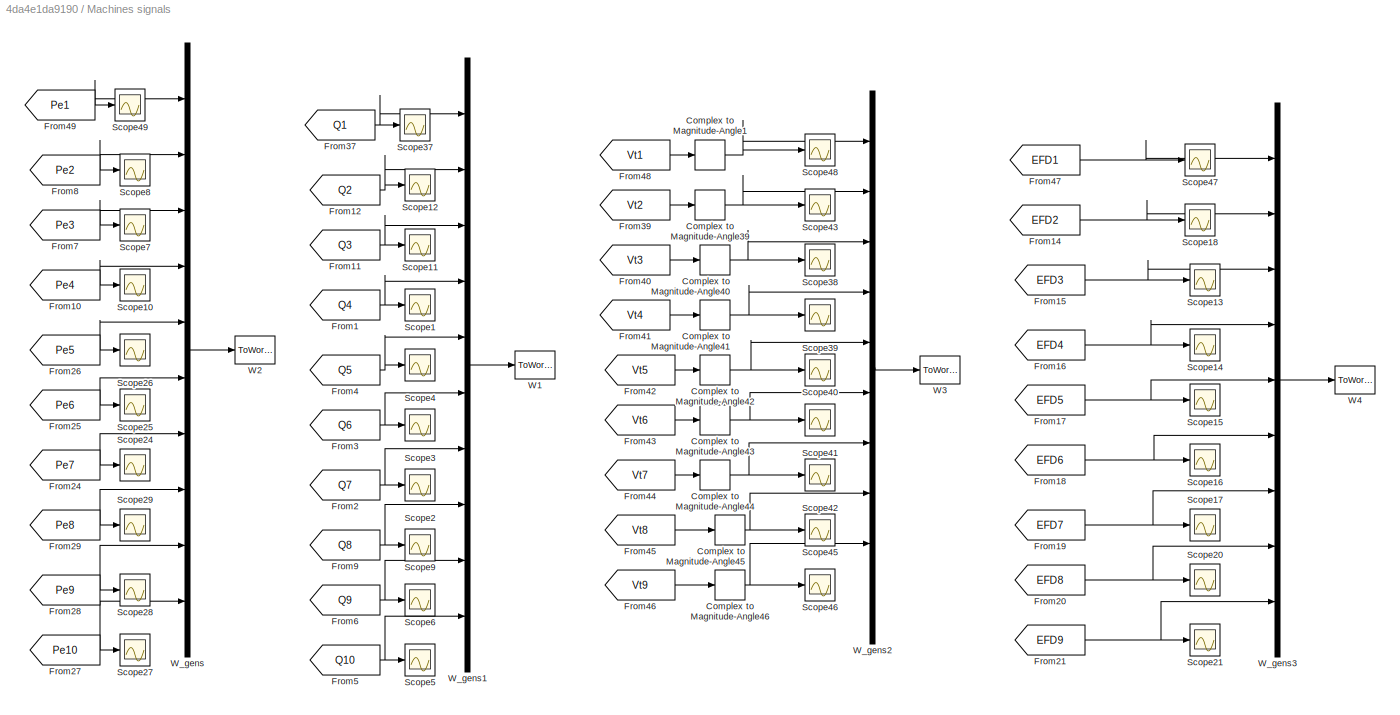
BLOCK [SubSystem] Machines signals
  Ports = []
  RequestExecContextInheritance = off
BLOCK [ComplexToMagnitudeAngle] Machines signals/Complex to Magnitude-Angle1
  Output = Magnitude
  Ports = [1, 1]
BLOCK [ComplexToMagnitudeAngle] Machines signals/Complex to Magnitude-Angle39
  Output = Magnitude
  Ports = [1, 1]
BLOCK [ComplexToMagnitudeAngle] Machines signals/Complex to Magnitude-Angle40
  Output = Magnitude
  Ports = [1, 1]
BLOCK [ComplexToMagnitudeAngle] Machines signals/Complex to Magnitude-Angle41
  Output = Magnitude
  Ports = [1, 1]
BLOCK [ComplexToMagnitudeAngle] Machines signals/Complex to Magnitude-Angle42
  Output = Magnitude
  Ports = [1, 1]
BLOCK [ComplexToMagnitudeAngle] Machines signals/Complex to Magnitude-Angle43
  Output = Magnitude
  Ports = [1, 1]
BLOCK [ComplexToMagnitudeAngle] Machines signals/Complex to Magnitude-Angle44
  Output = Magnitude
  Ports = [1, 1]
BLOCK [ComplexToMagnitudeAngle] Machines signals/Complex to Magnitude-Angle45
  Output = Magnitude
  Ports = [1, 1]
BLOCK [ComplexToMagnitudeAngle] Machines signals/Complex to Magnitude-Angle46
  Output = Magnitude
  Ports = [1, 1]
BLOCK [From] Machines signals/From1
  CloseFcn = tagdialog Close
  GotoTag = Q4
  TagVisibility = global
BLOCK [From] Machines signals/From10
  CloseFcn = tagdialog Close
  GotoTag = Pe4
  TagVisibility = global
BLOCK [From] Machines signals/From11
  CloseFcn = tagdialog Close
  GotoTag = Q3
  TagVisibility = global
BLOCK [From] Machines signals/From12
  CloseFcn = tagdialog Close
  GotoTag = Q2
  TagVisibility = global
BLOCK [From] Machines signals/From14
  CloseFcn = tagdialog Close
  GotoTag = EFD2
  IconDisplay = Signal name
  TagVisibility = global
BLOCK [From] Machines signals/From15
  CloseFcn = tagdialog Close
  GotoTag = EFD3
  IconDisplay = Signal name
  TagVisibility = global
BLOCK [From] Machines signals/From16
  CloseFcn = tagdialog Close
  GotoTag = EFD4
  IconDisplay = Signal name
  TagVisibility = global
BLOCK [From] Machines signals/From17
  CloseFcn = tagdialog Close
  GotoTag = EFD5
  IconDisplay = Signal name
  TagVisibility = global
BLOCK [From] Machines signals/From18
  CloseFcn = tagdialog Close
  GotoTag = EFD6
  IconDisplay = Signal name
  TagVisibility = global
BLOCK [From] Machines signals/From19
  CloseFcn = tagdialog Close
  GotoTag = EFD7
  IconDisplay = Signal name
  TagVisibility = global
BLOCK [From] Machines signals/From2
  CloseFcn = tagdialog Close
  GotoTag = Q7
  TagVisibility = global
BLOCK [From] Machines signals/From20
  CloseFcn = tagdialog Close
  GotoTag = EFD8
  IconDisplay = Signal name
  TagVisibility = global
BLOCK [From] Machines signals/From21
  CloseFcn = tagdialog Close
  GotoTag = EFD9
  IconDisplay = Signal name
  TagVisibility = global
BLOCK [From] Machines signals/From24
  CloseFcn = tagdialog Close
  GotoTag = Pe7
  TagVisibility = global
BLOCK [From] Machines signals/From25
  CloseFcn = tagdialog Close
  GotoTag = Pe6
  TagVisibility = global
BLOCK [From] Machines signals/From26
  CloseFcn = tagdialog Close
  GotoTag = Pe5
  TagVisibility = global
BLOCK [From] Machines signals/From27
  CloseFcn = tagdialog Close
  GotoTag = Pe10
  TagVisibility = global
BLOCK [From] Machines signals/From28
  CloseFcn = tagdialog Close
  GotoTag = Pe9
  TagVisibility = global
BLOCK [From] Machines signals/From29
  CloseFcn = tagdialog Close
  GotoTag = Pe8
  TagVisibility = global
BLOCK [From] Machines signals/From3
  CloseFcn = tagdialog Close
  GotoTag = Q6
  TagVisibility = global
BLOCK [From] Machines signals/From37
  CloseFcn = tagdialog Close
  GotoTag = Q1
  TagVisibility = global
BLOCK [From] Machines signals/From39
  CloseFcn = tagdialog Close
  GotoTag = Vt2
  IconDisplay = Signal name
  TagVisibility = global
BLOCK [From] Machines signals/From4
  CloseFcn = tagdialog Close
  GotoTag = Q5
  TagVisibility = global
BLOCK [From] Machines signals/From40
  CloseFcn = tagdialog Close
  GotoTag = Vt3
  IconDisplay = Signal name
  TagVisibility = global
BLOCK [From] Machines signals/From41
  CloseFcn = tagdialog Close
  GotoTag = Vt4
  IconDisplay = Signal name
  TagVisibility = global
BLOCK [From] Machines signals/From42
  CloseFcn = tagdialog Close
  GotoTag = Vt5
  IconDisplay = Signal name
  TagVisibility = global
BLOCK [From] Machines signals/From43
  CloseFcn = tagdialog Close
  GotoTag = Vt6
  IconDisplay = Signal name
  TagVisibility = global
BLOCK [From] Machines signals/From44
  CloseFcn = tagdialog Close
  GotoTag = Vt7
  IconDisplay = Signal name
  TagVisibility = global
BLOCK [From] Machines signals/From45
  CloseFcn = tagdialog Close
  GotoTag = Vt8
  IconDisplay = Signal name
  TagVisibility = global
BLOCK [From] Machines signals/From46
  CloseFcn = tagdialog Close
  GotoTag = Vt9
  IconDisplay = Signal name
  TagVisibility = global
BLOCK [From] Machines signals/From47
  CloseFcn = tagdialog Close
  GotoTag = EFD1
  IconDisplay = Signal name
  TagVisibility = global
BLOCK [From] Machines signals/From48
  CloseFcn = tagdialog Close
  GotoTag = Vt1
  IconDisplay = Signal name
  TagVisibility = global
BLOCK [From] Machines signals/From49
  CloseFcn = tagdialog Close
  GotoTag = Pe1
  TagVisibility = global
BLOCK [From] Machines signals/From5
  CloseFcn = tagdialog Close
  GotoTag = Q10
  TagVisibility = global
BLOCK [From] Machines signals/From6
  CloseFcn = tagdialog Close
  GotoTag = Q9
  TagVisibility = global
BLOCK [From] Machines signals/From7
  CloseFcn = tagdialog Close
  GotoTag = Pe3
  TagVisibility = global
BLOCK [From] Machines signals/From8
  CloseFcn = tagdialog Close
  GotoTag = Pe2
  TagVisibility = global
BLOCK [From] Machines signals/From9
  CloseFcn = tagdialog Close
  GotoTag = Q8
  TagVisibility = global
BLOCK [Scope] Machines signals/Scope1
  Floating = off
  NumInputPorts = 1
  Ports = [1]
  ScopeSpecificationString = C++SS(StrPVP('Location','[6, 75, 1035, 794]'),StrPVP('Open','off'),StrPVP('ZoomMode','xonly'),MxPVP('AxesTitles',54,'struct(''axes1'',''%<SignalLabel>'')'),StrPVP('YMin','-0.07'),StrPVP('YMax','0.07'),StrPVP('SaveName','v23'),StrPVP('DataFormat','StructureWithTime'),StrPVP('LimitDataPoints','off'),StrPVP('BlockParamSampleTime','0'),StrPVP('Decimation','1'),StrPVP('BlockParamSampleInput','off'))
BLOCK [Scope] Machines signals/Scope10
  Floating = off
  NumInputPorts = 1
  Ports = [1]
  ScopeSpecificationString = C++SS(StrPVP('Location','[6, 75, 1035, 794]'),StrPVP('Open','off'),StrPVP('ZoomMode','xonly'),MxPVP('AxesTitles',54,'struct(''axes1'',''%<SignalLabel>'')'),MxPVP('ScopeGraphics',57,'struct(''FigureColor'',''[0.5 0.5 0.5]'',''AxesColor'',''[0 0 0]'',''AxesTickColor'',''[1 1 1]'',''LineColors'',''[1 1 0;1 0 1;0 1 1;1 0 0;0 1 0;0 0 1]'',''LineStyles'',''-|-|-|-|-|-'',''LineWidths'',''[0.5 0.5 0.5 0.5...<+307ch>  <repeated x8 — deduplicated; at blocks: Scope10, Scope12, Scope17, Scope21, Scope37, Scope42, Scope46, Scope49>
BLOCK [Scope] Machines signals/Scope11
  Floating = off
  NumInputPorts = 1
  Ports = [1]
  ScopeSpecificationString = C++SS(StrPVP('Location','[6, 75, 1035, 794]'),StrPVP('Open','off'),StrPVP('ZoomMode','yonly'),MxPVP('AxesTitles',54,'struct(''axes1'',''%<SignalLabel>'')'),StrPVP('YMin','-0.07'),StrPVP('YMax','0.07'),StrPVP('SaveName','v24'),StrPVP('DataFormat','StructureWithTime'),StrPVP('LimitDataPoints','off'),StrPVP('BlockParamSampleTime','0'),StrPVP('Decimation','1'),StrPVP('BlockParamSampleInput','off'))
BLOCK [Scope] Machines signals/Scope12
  Floating = off
  NumInputPorts = 1
  Ports = [1]
BLOCK [Scope] Machines signals/Scope13
  Floating = off
  NumInputPorts = 1
  Ports = [1]
  ScopeSpecificationString = C++SS(StrPVP('Location','[6, 75, 1035, 794]'),StrPVP('Open','off'),StrPVP('ZoomMode','yonly'),MxPVP('AxesTitles',54,'struct(''axes1'',''%<SignalLabel>'')'),MxPVP('ScopeGraphics',57,'struct(''FigureColor'',''[0.5 0.5 0.5]'',''AxesColor'',''[0 0 0]'',''AxesTickColor'',''[1 1 1]'',''LineColors'',''[1 1 0;1 0 1;0 1 1;1 0 0;0 1 0;0 0 1]'',''LineStyles'',''-|-|-|-|-|-'',''LineWidths'',''[0.5 0.5 0.5 0.5...<+307ch>  <repeated x9 — deduplicated; at blocks: Scope13, Scope14, Scope15, Scope16, Scope38, Scope39, Scope40, Scope41, Scope7>
BLOCK [Scope] Machines signals/Scope14
  Floating = off
  NumInputPorts = 1
  Ports = [1]
BLOCK [Scope] Machines signals/Scope15
  Floating = off
  NumInputPorts = 1
  Ports = [1]
BLOCK [Scope] Machines signals/Scope16
  Floating = off
  NumInputPorts = 1
  Ports = [1]
BLOCK [Scope] Machines signals/Scope17
  Floating = off
  NumInputPorts = 1
  Ports = [1]
BLOCK [Scope] Machines signals/Scope18
  Floating = off
  NumInputPorts = 1
  Ports = [1]
  ScopeSpecificationString = C++SS(StrPVP('Location','[134, 298, 1163, 1017]'),StrPVP('Open','off'),StrPVP('ZoomMode','yonly'),MxPVP('AxesTitles',54,'struct(''axes1'',''%<SignalLabel>'')'),MxPVP('ScopeGraphics',57,'struct(''FigureColor'',''[0.5 0.5 0.5]'',''AxesColor'',''[0 0 0]'',''AxesTickColor'',''[1 1 1]'',''LineColors'',''[1 1 0;1 0 1;0 1 1;1 0 0;0 1 0;0 0 1]'',''LineStyles'',''-|-|-|-|-|-'',''LineWidths'',''[0.5 0.5 0.5...<+311ch>  <repeated x4 — deduplicated; at blocks: Scope18, Scope43, Scope47, Scope48>
BLOCK [Scope] Machines signals/Scope2
  Floating = off
  NumInputPorts = 1
  Ports = [1]
  ScopeSpecificationString = C++SS(StrPVP('Location','[6, 75, 1035, 794]'),StrPVP('Open','off'),StrPVP('ZoomMode','xonly'),MxPVP('AxesTitles',54,'struct(''axes1'',''%<SignalLabel>'')'),StrPVP('YMin','-0.07'),StrPVP('YMax','0.07'),StrPVP('SaveName','v33'),StrPVP('DataFormat','StructureWithTime'),StrPVP('LimitDataPoints','off'),StrPVP('BlockParamSampleTime','0'),StrPVP('Decimation','1'),StrPVP('BlockParamSampleInput','off'))
BLOCK [Scope] Machines signals/Scope20
  Floating = off
  NumInputPorts = 1
  Ports = [1]
  ScopeSpecificationString = C++SS(StrPVP('Location','[441, 337, 1470, 1056]'),StrPVP('Open','off'),StrPVP('ZoomMode','xonly'),MxPVP('AxesTitles',54,'struct(''axes1'',''%<SignalLabel>'')'),MxPVP('ScopeGraphics',57,'struct(''FigureColor'',''[0.5 0.5 0.5]'',''AxesColor'',''[0 0 0]'',''AxesTickColor'',''[1 1 1]'',''LineColors'',''[1 1 0;1 0 1;0 1 1;1 0 0;0 1 0;0 0 1]'',''LineStyles'',''-|-|-|-|-|-'',''LineWidths'',''[0.5 0.5 0.5...<+311ch>
BLOCK [Scope] Machines signals/Scope21
  Floating = off
  NumInputPorts = 1
  Ports = [1]
BLOCK [Scope] Machines signals/Scope24
  Floating = off
  NumInputPorts = 1
  Ports = [1]
  ScopeSpecificationString = C++SS(StrPVP('Location','[6, 75, 1035, 794]'),StrPVP('Open','off'),StrPVP('ZoomMode','xonly'),MxPVP('AxesTitles',54,'struct(''axes1'',''%<SignalLabel>'')'),StrPVP('YMin','-0.07'),StrPVP('YMax','0.07'),StrPVP('SaveName','v28'),StrPVP('DataFormat','StructureWithTime'),StrPVP('LimitDataPoints','off'),StrPVP('BlockParamSampleTime','0'),StrPVP('Decimation','1'),StrPVP('BlockParamSampleInput','off'))
BLOCK [Scope] Machines signals/Scope25
  Floating = off
  NumInputPorts = 1
  Ports = [1]
  ScopeSpecificationString = C++SS(StrPVP('Location','[6, 75, 1035, 794]'),StrPVP('Open','off'),StrPVP('ZoomMode','yonly'),MxPVP('AxesTitles',54,'struct(''axes1'',''%<SignalLabel>'')'),StrPVP('YMin','-0.07'),StrPVP('YMax','0.07'),StrPVP('SaveName','v29'),StrPVP('DataFormat','StructureWithTime'),StrPVP('LimitDataPoints','off'),StrPVP('BlockParamSampleTime','0'),StrPVP('Decimation','1'),StrPVP('BlockParamSampleInput','off'))
BLOCK [Scope] Machines signals/Scope26
  Floating = off
  NumInputPorts = 1
  Ports = [1]
  ScopeSpecificationString = C++SS(StrPVP('Location','[6, 75, 1035, 794]'),StrPVP('Open','off'),StrPVP('ZoomMode','xonly'),MxPVP('AxesTitles',54,'struct(''axes1'',''%<SignalLabel>'')'),StrPVP('YMin','-0.07'),StrPVP('YMax','0.07'),StrPVP('SaveName','v30'),StrPVP('DataFormat','StructureWithTime'),StrPVP('LimitDataPoints','off'),StrPVP('BlockParamSampleTime','0'),StrPVP('Decimation','1'),StrPVP('BlockParamSampleInput','off'))
BLOCK [Scope] Machines signals/Scope27
  Floating = off
  NumInputPorts = 1
  Ports = [1]
  ScopeSpecificationString = C++SS(StrPVP('Location','[6, 75, 1035, 794]'),StrPVP('Open','off'),StrPVP('ZoomMode','xonly'),MxPVP('AxesTitles',54,'struct(''axes1'',''%<SignalLabel>'')'),StrPVP('YMin','-0.07'),StrPVP('YMax','0.07'),StrPVP('SaveName','v31'),StrPVP('DataFormat','StructureWithTime'),StrPVP('LimitDataPoints','off'),StrPVP('BlockParamSampleTime','0'),StrPVP('Decimation','1'),StrPVP('BlockParamSampleInput','off'))
BLOCK [Scope] Machines signals/Scope28
  Floating = off
  NumInputPorts = 1
  Ports = [1]
  ScopeSpecificationString = C++SS(StrPVP('Location','[6, 75, 1035, 794]'),StrPVP('Open','off'),StrPVP('ZoomMode','yonly'),MxPVP('AxesTitles',54,'struct(''axes1'',''%<SignalLabel>'')'),StrPVP('YMin','-0.07'),StrPVP('YMax','0.07'),StrPVP('SaveName','v32'),StrPVP('DataFormat','StructureWithTime'),StrPVP('LimitDataPoints','off'),StrPVP('BlockParamSampleTime','0'),StrPVP('Decimation','1'),StrPVP('BlockParamSampleInput','off'))
BLOCK [Scope] Machines signals/Scope29
  Floating = off
  NumInputPorts = 1
  Ports = [1]
  ScopeSpecificationString = C++SS(StrPVP('Location','[6, 75, 1035, 794]'),StrPVP('Open','off'),StrPVP('ZoomMode','xonly'),MxPVP('AxesTitles',54,'struct(''axes1'',''%<SignalLabel>'')'),StrPVP('YMin','-0.07'),StrPVP('YMax','0.07'),StrPVP('SaveName','v47'),StrPVP('DataFormat','StructureWithTime'),StrPVP('LimitDataPoints','off'),StrPVP('BlockParamSampleTime','0'),StrPVP('Decimation','1'),StrPVP('BlockParamSampleInput','off'))
BLOCK [Scope] Machines signals/Scope3
  Floating = off
  NumInputPorts = 1
  Ports = [1]
  ScopeSpecificationString = C++SS(StrPVP('Location','[6, 75, 1035, 794]'),StrPVP('Open','off'),StrPVP('ZoomMode','yonly'),MxPVP('AxesTitles',54,'struct(''axes1'',''%<SignalLabel>'')'),StrPVP('YMin','-0.07'),StrPVP('YMax','0.07'),StrPVP('SaveName','v34'),StrPVP('DataFormat','StructureWithTime'),StrPVP('LimitDataPoints','off'),StrPVP('BlockParamSampleTime','0'),StrPVP('Decimation','1'),StrPVP('BlockParamSampleInput','off'))
BLOCK [Scope] Machines signals/Scope37
  Floating = off
  NumInputPorts = 1
  Ports = [1]
BLOCK [Scope] Machines signals/Scope38
  Floating = off
  NumInputPorts = 1
  Ports = [1]
BLOCK [Scope] Machines signals/Scope39
  Floating = off
  NumInputPorts = 1
  Ports = [1]
BLOCK [Scope] Machines signals/Scope4
  Floating = off
  NumInputPorts = 1
  Ports = [1]
  ScopeSpecificationString = C++SS(StrPVP('Location','[6, 75, 1035, 794]'),StrPVP('Open','off'),StrPVP('ZoomMode','xonly'),MxPVP('AxesTitles',54,'struct(''axes1'',''%<SignalLabel>'')'),StrPVP('YMin','-0.07'),StrPVP('YMax','0.07'),StrPVP('SaveName','v35'),StrPVP('DataFormat','StructureWithTime'),StrPVP('LimitDataPoints','off'),StrPVP('BlockParamSampleTime','0'),StrPVP('Decimation','1'),StrPVP('BlockParamSampleInput','off'))
BLOCK [Scope] Machines signals/Scope40
  Floating = off
  NumInputPorts = 1
  Ports = [1]
BLOCK [Scope] Machines signals/Scope41
  Floating = off
  NumInputPorts = 1
  Ports = [1]
BLOCK [Scope] Machines signals/Scope42
  Floating = off
  NumInputPorts = 1
  Ports = [1]
BLOCK [Scope] Machines signals/Scope43
  Floating = off
  NumInputPorts = 1
  Ports = [1]
BLOCK [Scope] Machines signals/Scope45
  Floating = off
  NumInputPorts = 1
  Ports = [1]
  ScopeSpecificationString = C++SS(StrPVP('Location','[441, 337, 1470, 1056]'),StrPVP('Open','off'),StrPVP('ZoomMode','xonly'),MxPVP('AxesTitles',54,'struct(''axes1'',''%<SignalLabel>'')'),MxPVP('ScopeGraphics',57,'struct(''FigureColor'',''[0.5 0.5 0.5]'',''AxesColor'',''[0 0 0]'',''AxesTickColor'',''[1 1 1]'',''LineColors'',''[1 1 0;1 0 1;0 1 1;1 0 0;0 1 0;0 0 1]'',''LineStyles'',''-|-|-|-|-|-'',''LineWidths'',''[0.5 0.5 0.5...<+311ch>
BLOCK [Scope] Machines signals/Scope46
  Floating = off
  NumInputPorts = 1
  Ports = [1]
BLOCK [Scope] Machines signals/Scope47
  Floating = off
  NumInputPorts = 1
  Ports = [1]
BLOCK [Scope] Machines signals/Scope48
  Floating = off
  NumInputPorts = 1
  Ports = [1]
BLOCK [Scope] Machines signals/Scope49
  Floating = off
  NumInputPorts = 1
  Ports = [1]
BLOCK [Scope] Machines signals/Scope5
  Floating = off
  NumInputPorts = 1
  Ports = [1]
  ScopeSpecificationString = C++SS(StrPVP('Location','[6, 75, 1035, 794]'),StrPVP('Open','off'),StrPVP('ZoomMode','xonly'),MxPVP('AxesTitles',54,'struct(''axes1'',''%<SignalLabel>'')'),StrPVP('YMin','-0.07'),StrPVP('YMax','0.07'),StrPVP('SaveName','v36'),StrPVP('DataFormat','StructureWithTime'),StrPVP('LimitDataPoints','off'),StrPVP('BlockParamSampleTime','0'),StrPVP('Decimation','1'),StrPVP('BlockParamSampleInput','off'))
BLOCK [Scope] Machines signals/Scope6
  Floating = off
  NumInputPorts = 1
  Ports = [1]
  ScopeSpecificationString = C++SS(StrPVP('Location','[6, 75, 1035, 794]'),StrPVP('Open','off'),StrPVP('ZoomMode','yonly'),MxPVP('AxesTitles',54,'struct(''axes1'',''%<SignalLabel>'')'),StrPVP('YMin','-0.07'),StrPVP('YMax','0.07'),StrPVP('SaveName','v37'),StrPVP('DataFormat','StructureWithTime'),StrPVP('LimitDataPoints','off'),StrPVP('BlockParamSampleTime','0'),StrPVP('Decimation','1'),StrPVP('BlockParamSampleInput','off'))
BLOCK [Scope] Machines signals/Scope7
  Floating = off
  NumInputPorts = 1
  Ports = [1]
BLOCK [Scope] Machines signals/Scope8
  Floating = off
  NumInputPorts = 1
  Ports = [1]
  ScopeSpecificationString = C++SS(StrPVP('Location','[1, 48, 1681, 1009]'),StrPVP('Open','off'),StrPVP('ZoomMode','yonly'),MxPVP('AxesTitles',54,'struct(''axes1'',''%<SignalLabel>'')'),MxPVP('ScopeGraphics',57,'struct(''FigureColor'',''[0.5 0.5 0.5]'',''AxesColor'',''[0 0 0]'',''AxesTickColor'',''[1 1 1]'',''LineColors'',''[1 1 0;1 0 1;0 1 1;1 0 0;0 1 0;0 0 1]'',''LineStyles'',''-|-|-|-|-|-'',''LineWidths'',''[0.5 0.5 0.5 0....<+307ch>
BLOCK [Scope] Machines signals/Scope9
  Floating = off
  NumInputPorts = 1
  Ports = [1]
  ScopeSpecificationString = C++SS(StrPVP('Location','[6, 75, 1035, 794]'),StrPVP('Open','off'),StrPVP('ZoomMode','xonly'),MxPVP('AxesTitles',54,'struct(''axes1'',''%<SignalLabel>'')'),StrPVP('YMin','-0.07'),StrPVP('YMax','0.07'),StrPVP('SaveName','v38'),StrPVP('DataFormat','StructureWithTime'),StrPVP('LimitDataPoints','off'),StrPVP('BlockParamSampleTime','0'),StrPVP('Decimation','1'),StrPVP('BlockParamSampleInput','off'))
BLOCK [ToWorkspace] Machines signals/W1
  MaxDataPoints = inf
  Ports = [1]
  SampleTime = 1/60
  VariableName = Qe
BLOCK [ToWorkspace] Machines signals/W2
  MaxDataPoints = inf
  Ports = [1]
  SampleTime = 1/60
  VariableName = Pe
BLOCK [ToWorkspace] Machines signals/W3
  MaxDataPoints = inf
  Ports = [1]
  SampleTime = 1/60
  VariableName = Vt
BLOCK [ToWorkspace] Machines signals/W4
  MaxDataPoints = inf
  Ports = [1]
  SampleTime = 1/60
  VariableName = EFD
BLOCK [Mux] Machines signals/W_gens
  DisplayOption = bar
  Inputs = 10
  Ports = [10, 1]
BLOCK [Mux] Machines signals/W_gens1
  DisplayOption = bar
  Inputs = 10
  Ports = [10, 1]
BLOCK [Mux] Machines signals/W_gens2
  DisplayOption = bar
  Inputs = 10
  Ports = [10, 1]
BLOCK [Mux] Machines signals/W_gens3
  DisplayOption = bar
  Inputs = 9
  Ports = [9, 1]
BLOCK [Constant] PSS model
  Value = PSSMODEL
BLOCK [Scope] Scope1
  Floating = off
  NameLocation = top
  NumInputPorts = 2
  Ports = [2]
  ScopeSpecificationString = C++SS(StrPVP('Location','[433, 504, 1263, 933]'),StrPVP('Open','off'),StrPVP('ZoomMode','yonly'),MxPVP('AxesTitles',54,'struct(''axes1'',''%<SignalLabel>'',''axes2'',''%<SignalLabel>'')'),MxPVP('ScopeGraphics',57,'struct(''FigureColor'',''[0.5 0.5 0.5]'',''AxesColor'',''[0 0 0]'',''AxesTickColor'',''[1 1 1]'',''LineColors'',''[1 1 0;1 0 1;0 1 1;1 0 0;0 1 0;0 0 1]'',''LineStyles'',''-|-|-|-|-|-'','...<+419ch>
BLOCK [SubSystem] Subsystem1
  Ports = [1, 1, 0, 0, 0, 3]
  RequestExecContextInheritance = off
BLOCK [PMIOPort] Subsystem1/A
  Side = Left
BLOCK [PMIOPort] Subsystem1/B
  Port = 2
  Side = Left
BLOCK [PMIOPort] Subsystem1/C
  Port = 3
  Side = Left
BLOCK [Constant] Subsystem1/Constant16
  SampleTime = -1
  Value = 11304000
BLOCK [Constant] Subsystem1/Constant17
  Value = 0
BLOCK [Inport] Subsystem1/In3
BLOCK [Product] Subsystem1/Matrix Multiply5
  Multiplication = Matrix(*)
  Ports = [2, 1]
BLOCK [Mux] Subsystem1/Mux1
  DisplayOption = bar
  Inputs = 2
  Ports = [2, 1]
BLOCK [Scope] Subsystem1/Scope34
  Floating = off
  NumInputPorts = 1
  Ports = [1]
  ScopeSpecificationString = Simulink.scopes.TimeScopeBlockCfg('CurrentConfiguration', extmgr.ConfigurationSet(extmgr.Configuration('Core','General UI',true),extmgr.Configuration('Core','Source UI',true),extmgr.Configuration('Sources','WiredSimulink',true,'DataLoggingVariableName','ScopeData27'),extmgr.Configuration('Visuals','Time Domain',true,'SerializedDisplays',{struct('MinYLimReal','-4853073198.90985','MaxYLimReal','4882...<+1471ch>  <repeated x3 — deduplicated; at blocks: Scope34>
BLOCK [Sum] Subsystem1/Sum4
  Inputs = |++
  Ports = [2, 1]
BLOCK [Reference] Subsystem1/Three-Phase Dynamic Load1  REF=spsThreePhaseDynamicLoadLib/Three-Phase
Dynamic Load
  Ports = [1, 1, 0, 0, 0, 3]
  SourceBlock = spsThreePhaseDynamicLoadLib/Three-Phase\nDynamic Load
  SourceProductBaseCode = PS
  SourceType = Three-Phase Dynamic Load
BLOCK [UniformRandomNumber] Subsystem1/Uniform Random Number1
  Maximum = 5e+3
  Minimum = -5e+3
  SampleTime = 0.01
  Seed = 1e+4
BLOCK [Outport] Subsystem1/m
BLOCK [SubSystem] Subsystem2
  NameLocation = top
  Ports = [1, 1, 0, 0, 0, 3]
  RequestExecContextInheritance = off
BLOCK [PMIOPort] Subsystem2/A
  Side = Left
BLOCK [PMIOPort] Subsystem2/B
  Port = 2
  Side = Left
BLOCK [PMIOPort] Subsystem2/C
  Port = 3
  Side = Left
BLOCK [Constant] Subsystem2/Constant16
  SampleTime = -1
  Value = 11304000
BLOCK [Constant] Subsystem2/Constant17
  Value = 0
BLOCK [Inport] Subsystem2/In3
BLOCK [Product] Subsystem2/Matrix Multiply5
  Multiplication = Matrix(*)
  Ports = [2, 1]
BLOCK [Mux] Subsystem2/Mux1
  DisplayOption = bar
  Inputs = 2
  Ports = [2, 1]
BLOCK [Scope] Subsystem2/Scope34
  Floating = off
  NumInputPorts = 1
  Ports = [1]
  ScopeSpecificationString = Simulink.scopes.TimeScopeBlockCfg('CurrentConfiguration', extmgr.ConfigurationSet(extmgr.Configuration('Core','General UI',true),extmgr.Configuration('Core','Source UI',true),extmgr.Configuration('Sources','WiredSimulink',true,'DataLoggingVariableName','ScopeData27'),extmgr.Configuration('Visuals','Time Domain',true),extmgr.Configuration('Tools','Plot Navigation',true),extmgr.Configuration('Tools'...<+41ch>  <repeated x5 — deduplicated; at blocks: Scope34>
BLOCK [Sum] Subsystem2/Sum4
  Inputs = |++
  Ports = [2, 1]
BLOCK [Reference] Subsystem2/Three-Phase Dynamic Load1  REF=spsThreePhaseDynamicLoadLib/Three-Phase
Dynamic Load
  Ports = [1, 1, 0, 0, 0, 3]
  SourceBlock = spsThreePhaseDynamicLoadLib/Three-Phase\nDynamic Load
  SourceProductBaseCode = PS
  SourceType = Three-Phase Dynamic Load
BLOCK [UniformRandomNumber] Subsystem2/Uniform Random Number1
  Maximum = 5e+3
  Minimum = -5e+3
  SampleTime = 0.01
  Seed = 1e+4
BLOCK [Outport] Subsystem2/m
BLOCK [SubSystem] Subsystem3
  Ports = [1, 1, 0, 0, 0, 3]
  RequestExecContextInheritance = off
BLOCK [PMIOPort] Subsystem3/A
  Side = Left
BLOCK [PMIOPort] Subsystem3/B
  Port = 2
  Side = Left
BLOCK [PMIOPort] Subsystem3/C
  Port = 3
  Side = Left
BLOCK [Constant] Subsystem3/Constant16
  SampleTime = -1
  Value = 11304000
BLOCK [Constant] Subsystem3/Constant17
  Value = 0
BLOCK [Inport] Subsystem3/In3
BLOCK [Product] Subsystem3/Matrix Multiply5
  Multiplication = Matrix(*)
  Ports = [2, 1]
BLOCK [Mux] Subsystem3/Mux1
  DisplayOption = bar
  Inputs = 2
  Ports = [2, 1]
BLOCK [Scope] Subsystem3/Scope34
  Floating = off
  NumInputPorts = 1
  Ports = [1]
  ScopeSpecificationString = Simulink.scopes.TimeScopeBlockCfg('CurrentConfiguration', extmgr.ConfigurationSet(extmgr.Configuration('Core','General UI',true),extmgr.Configuration('Core','Source UI',true),extmgr.Configuration('Sources','WiredSimulink',true,'DataLoggingVariableName','ScopeData27'),extmgr.Configuration('Visuals','Time Domain',true,'SerializedDisplays',{struct('MinYLimReal','-4853073198.90985','MaxYLimReal','4882...<+1500ch>
BLOCK [Sum] Subsystem3/Sum4
  Inputs = |++
  Ports = [2, 1]
BLOCK [Reference] Subsystem3/Three-Phase Dynamic Load1  REF=spsThreePhaseDynamicLoadLib/Three-Phase
Dynamic Load
  Ports = [1, 1, 0, 0, 0, 3]
  SourceBlock = spsThreePhaseDynamicLoadLib/Three-Phase\nDynamic Load
  SourceProductBaseCode = PS
  SourceType = Three-Phase Dynamic Load
BLOCK [UniformRandomNumber] Subsystem3/Uniform Random Number1
  Maximum = 5e+3
  Minimum = -5e+3
  SampleTime = 0.01
  Seed = 1e+4
BLOCK [Outport] Subsystem3/m
BLOCK [SubSystem] Subsystem4
  Ports = [1, 1, 0, 0, 0, 3]
  RequestExecContextInheritance = off
BLOCK [PMIOPort] Subsystem4/A
  Side = Left
BLOCK [PMIOPort] Subsystem4/B
  Port = 3
  Side = Left
BLOCK [PMIOPort] Subsystem4/C
  Port = 2
  Side = Left
BLOCK [Constant] Subsystem4/Constant16
  SampleTime = -1
  Value = 11304000
BLOCK [Constant] Subsystem4/Constant17
  Value = 0
BLOCK [Inport] Subsystem4/In3
BLOCK [Product] Subsystem4/Matrix Multiply5
  Multiplication = Matrix(*)
  Ports = [2, 1]
BLOCK [Mux] Subsystem4/Mux1
  DisplayOption = bar
  Inputs = 2
  Ports = [2, 1]
BLOCK [Scope] Subsystem4/Scope34
  Floating = off
  NumInputPorts = 1
  Ports = [1]
BLOCK [Sum] Subsystem4/Sum4
  Inputs = |++
  Ports = [2, 1]
BLOCK [Reference] Subsystem4/Three-Phase Dynamic Load1  REF=spsThreePhaseDynamicLoadLib/Three-Phase
Dynamic Load
  Ports = [1, 1, 0, 0, 0, 3]
  SourceBlock = spsThreePhaseDynamicLoadLib/Three-Phase\nDynamic Load
  SourceProductBaseCode = PS
  SourceType = Three-Phase Dynamic Load
BLOCK [UniformRandomNumber] Subsystem4/Uniform Random Number1
  Maximum = 5e+3
  Minimum = -5e+3
  SampleTime = 0.01
  Seed = 1e+4
BLOCK [Outport] Subsystem4/m
BLOCK [SubSystem] Subsystem5
  Ports = [1, 1, 0, 0, 0, 3]
  RequestExecContextInheritance = off
BLOCK [PMIOPort] Subsystem5/A
  Side = Left
BLOCK [PMIOPort] Subsystem5/B
  Port = 2
  Side = Left
BLOCK [PMIOPort] Subsystem5/C
  Port = 3
  Side = Left
BLOCK [Constant] Subsystem5/Constant16
  SampleTime = -1
  Value = 11304000
BLOCK [Constant] Subsystem5/Constant17
  Value = 0
BLOCK [Inport] Subsystem5/In3
BLOCK [Product] Subsystem5/Matrix Multiply5
  Multiplication = Matrix(*)
  Ports = [2, 1]
BLOCK [Mux] Subsystem5/Mux1
  DisplayOption = bar
  Inputs = 2
  Ports = [2, 1]
BLOCK [Scope] Subsystem5/Scope34
  Floating = off
  NumInputPorts = 1
  Ports = [1]
BLOCK [Sum] Subsystem5/Sum4
  Inputs = |++
  Ports = [2, 1]
BLOCK [Reference] Subsystem5/Three-Phase Dynamic Load1  REF=spsThreePhaseDynamicLoadLib/Three-Phase
Dynamic Load
  Ports = [1, 1, 0, 0, 0, 3]
  SourceBlock = spsThreePhaseDynamicLoadLib/Three-Phase\nDynamic Load
  SourceProductBaseCode = PS
  SourceType = Three-Phase Dynamic Load
BLOCK [UniformRandomNumber] Subsystem5/Uniform Random Number1
  Maximum = 5e+3
  Minimum = -5e+3
  SampleTime = 0.01
  Seed = 1e+4
BLOCK [Outport] Subsystem5/m
BLOCK [SubSystem] Subsystem6
  Ports = [1, 1, 0, 0, 0, 3]
  RequestExecContextInheritance = off
BLOCK [PMIOPort] Subsystem6/A
  Side = Left
BLOCK [PMIOPort] Subsystem6/B
  Port = 3
  Side = Left
BLOCK [PMIOPort] Subsystem6/C
  Port = 2
  Side = Left
BLOCK [Constant] Subsystem6/Constant16
  SampleTime = -1
  Value = 11304000
BLOCK [Constant] Subsystem6/Constant17
  Value = 0
BLOCK [Inport] Subsystem6/In3
BLOCK [Product] Subsystem6/Matrix Multiply5
  Multiplication = Matrix(*)
  Ports = [2, 1]
BLOCK [Mux] Subsystem6/Mux1
  DisplayOption = bar
  Inputs = 2
  Ports = [2, 1]
BLOCK [Scope] Subsystem6/Scope34
  Floating = off
  NumInputPorts = 1
  Ports = [1]
BLOCK [Sum] Subsystem6/Sum4
  Inputs = |++
  Ports = [2, 1]
BLOCK [Reference] Subsystem6/Three-Phase Dynamic Load1  REF=spsThreePhaseDynamicLoadLib/Three-Phase
Dynamic Load
  Ports = [1, 1, 0, 0, 0, 3]
  SourceBlock = spsThreePhaseDynamicLoadLib/Three-Phase\nDynamic Load
  SourceProductBaseCode = PS
  SourceType = Three-Phase Dynamic Load
BLOCK [UniformRandomNumber] Subsystem6/Uniform Random Number1
  Maximum = 5e+3
  Minimum = -5e+3
  SampleTime = 0.01
  Seed = 1e+4
BLOCK [Outport] Subsystem6/m
BLOCK [SubSystem] Subsystem7
  Ports = [1, 1, 0, 0, 0, 3]
  RequestExecContextInheritance = off
BLOCK [PMIOPort] Subsystem7/A
  Side = Left
BLOCK [PMIOPort] Subsystem7/B
  Port = 2
  Side = Left
BLOCK [PMIOPort] Subsystem7/C
  Port = 3
  Side = Left
BLOCK [Constant] Subsystem7/Constant16
  SampleTime = -1
  Value = 11304000
BLOCK [Constant] Subsystem7/Constant17
  Value = 0
BLOCK [Inport] Subsystem7/In3
BLOCK [Product] Subsystem7/Matrix Multiply5
  Multiplication = Matrix(*)
  Ports = [2, 1]
BLOCK [Mux] Subsystem7/Mux1
  DisplayOption = bar
  Inputs = 2
  Ports = [2, 1]
BLOCK [Scope] Subsystem7/Scope34
  Floating = off
  NumInputPorts = 1
  Ports = [1]
BLOCK [Sum] Subsystem7/Sum4
  Inputs = |++
  Ports = [2, 1]
BLOCK [Reference] Subsystem7/Three-Phase Dynamic Load1  REF=spsThreePhaseDynamicLoadLib/Three-Phase
Dynamic Load
  Ports = [1, 1, 0, 0, 0, 3]
  SourceBlock = spsThreePhaseDynamicLoadLib/Three-Phase\nDynamic Load
  SourceProductBaseCode = PS
  SourceType = Three-Phase Dynamic Load
BLOCK [UniformRandomNumber] Subsystem7/Uniform Random Number1
  Maximum = 5e+3
  Minimum = -5e+3
  SampleTime = 0.01
  Seed = 1e+4
BLOCK [Outport] Subsystem7/m
BLOCK [SubSystem] Subsystem8
  Ports = [1, 1, 0, 0, 0, 3]
  RequestExecContextInheritance = off
BLOCK [PMIOPort] Subsystem8/A
  Side = Left
BLOCK [PMIOPort] Subsystem8/B
  Port = 2
  Side = Left
BLOCK [PMIOPort] Subsystem8/C
  Port = 3
  Side = Left
BLOCK [Constant] Subsystem8/Constant16
  SampleTime = -1
  Value = 11304000
BLOCK [Constant] Subsystem8/Constant17
  Value = 0
BLOCK [Inport] Subsystem8/In3
BLOCK [Product] Subsystem8/Matrix Multiply5
  Multiplication = Matrix(*)
  Ports = [2, 1]
BLOCK [Mux] Subsystem8/Mux1
  DisplayOption = bar
  Inputs = 2
  Ports = [2, 1]
BLOCK [Scope] Subsystem8/Scope34
  Floating = off
  NumInputPorts = 1
  Ports = [1]
BLOCK [Sum] Subsystem8/Sum4
  Inputs = |++
  Ports = [2, 1]
BLOCK [Reference] Subsystem8/Three-Phase Dynamic Load1  REF=spsThreePhaseDynamicLoadLib/Three-Phase
Dynamic Load
  Ports = [1, 1, 0, 0, 0, 3]
  SourceBlock = spsThreePhaseDynamicLoadLib/Three-Phase\nDynamic Load
  SourceProductBaseCode = PS
  SourceType = Three-Phase Dynamic Load
BLOCK [UniformRandomNumber] Subsystem8/Uniform Random Number1
  Maximum = 5e+3
  Minimum = -5e+3
  SampleTime = 0.01
  Seed = 1e+4
BLOCK [Outport] Subsystem8/m
BLOCK [SubSystem] Subsystem9
  Ports = [1, 1, 0, 0, 0, 3]
  RequestExecContextInheritance = off
BLOCK [PMIOPort] Subsystem9/A
  Side = Left
BLOCK [PMIOPort] Subsystem9/B
  Port = 2
  Side = Left
BLOCK [PMIOPort] Subsystem9/C
  Port = 3
  Side = Left
BLOCK [Constant] Subsystem9/Constant16
  SampleTime = -1
  Value = 11304000
BLOCK [Constant] Subsystem9/Constant17
  Value = 0
BLOCK [Inport] Subsystem9/In3
BLOCK [Product] Subsystem9/Matrix Multiply5
  Multiplication = Matrix(*)
  Ports = [2, 1]
BLOCK [Mux] Subsystem9/Mux1
  DisplayOption = bar
  Inputs = 2
  Ports = [2, 1]
BLOCK [Scope] Subsystem9/Scope34
  Floating = off
  NumInputPorts = 1
  Ports = [1]
BLOCK [Sum] Subsystem9/Sum4
  Inputs = |++
  Ports = [2, 1]
BLOCK [Reference] Subsystem9/Three-Phase Dynamic Load1  REF=spsThreePhaseDynamicLoadLib/Three-Phase
Dynamic Load
  Ports = [1, 1, 0, 0, 0, 3]
  SourceBlock = spsThreePhaseDynamicLoadLib/Three-Phase\nDynamic Load
  SourceProductBaseCode = PS
  SourceType = Three-Phase Dynamic Load
BLOCK [UniformRandomNumber] Subsystem9/Uniform Random Number1
  Maximum = 5e+3
  Minimum = -5e+3
  SampleTime = 0.01
  Seed = 1e+4
BLOCK [Outport] Subsystem9/m
BLOCK [Scope] System
  Floating = off
  NumInputPorts = 2
  Ports = [2]
  ScopeSpecificationString = C++SS(StrPVP('Location','[1, 45, 1681, 1005]'),StrPVP('Open','off'),MxPVP('AxesTitles',54,'struct(''axes1'',''%<SignalLabel>'',''axes2'',''%<SignalLabel>'')'),MxPVP('ScopeGraphics',57,'struct(''FigureColor'',''[0.5 0.5 0.5]'',''AxesColor'',''[0 0 0]'',''AxesTickColor'',''[1 1 1]'',''LineColors'',''[1 1 0;1 0 1;0 1 1;1 0 0;0 1 0;0 0 1]'',''LineStyles'',''-|-|-|-|-|-'',''LineWidths'',''[0.5 0.5 0.5 ...<+309ch>
BLOCK [SubSystem] System Data
  Ports = [0, 2]
  RequestExecContextInheritance = off
BLOCK [Gain] System Data/->pu
  Gain = 1/(230e3/sqrt(3)*sqrt(2))
  OutDataTypeStr = Inherit: Same as input
  ParamDataTypeStr = Inherit: Same as input
  SaturateOnIntegerOverflow = on
BLOCK [Reference] System Data/3-Phase Active & Reactive Power (Phasor Type)  REF=powerlib_extras/Phasor
Library/3-Phase
Active & Reactive Power
(Phasor Type)
  Ports = [2, 1]
  SourceBlock = powerlib_extras/Phasor\nLibrary/3-Phase\nActive & Reactive Power\n(Phasor Type)
  SourceProductBaseCode = PS
  SourceType = 3-Phase Active & Reactive Power (Phasor Type)
BLOCK [ComplexToMagnitudeAngle] System Data/Complex to Magnitude-Angle
  Output = Magnitude
  Ports = [1, 1]
BLOCK [ComplexToMagnitudeAngle] System Data/Complex to Magnitude-Angle1
  Output = Magnitude
  Ports = [1, 1]
BLOCK [From] System Data/From
  CloseFcn = tagdialog Close
  GotoTag = Vabc_B4
  TagVisibility = global
BLOCK [From] System Data/From1
  CloseFcn = tagdialog Close
  GotoTag = Iabc_B4
  TagVisibility = global
BLOCK [From] System Data/From2
  CloseFcn = tagdialog Close
  GotoTag = Vabc_B3
  TagVisibility = global
BLOCK [Mux] System Data/Mux
  DisplayOption = bar
  Inputs = 2
  Ports = [2, 1]
BLOCK [Gain] System Data/P34
  Gain = 1e-6
  OutDataTypeStr = Inherit: Same as input
  ParamDataTypeStr = Inherit: Same as input
  SaturateOnIntegerOverflow = on
BLOCK [Selector] System Data/Selector
  IndexOptions = Index vector (dialog)
  Indices = 1
  InputPortWidth = 2
  OutputSizes = 1
  Ports = [1, 1]
BLOCK [Reference] System Data/Sequence Analyzer (Phasor Type)  REF=powerlib_extras/Phasor
Library/Sequence Analyzer
(Phasor Type)
  Ports = [1, 2]
  SourceBlock = powerlib_extras/Phasor\nLibrary/Sequence Analyzer\n(Phasor Type)
  SourceProductBaseCode = PS
  SourceType = Sequence Analyzer (Phasor Type)
BLOCK [Reference] System Data/Sequence Analyzer (Phasor Type)1  REF=powerlib_extras/Phasor
Library/Sequence Analyzer
(Phasor Type)
  Ports = [1, 2]
  SourceBlock = powerlib_extras/Phasor\nLibrary/Sequence Analyzer\n(Phasor Type)
  SourceProductBaseCode = PS
  SourceType = Sequence Analyzer (Phasor Type)
BLOCK [Terminator] System Data/Terminator1
BLOCK [Terminator] System Data/Terminator2
BLOCK [Scope] System Data/Vabc_B3
  Floating = off
  NumInputPorts = 1
  Ports = [1]
  ScopeSpecificationString = C++SS(StrPVP('Location','[328, 281, 884, 681]'),StrPVP('Open','off'),MxPVP('AxesTitles',54,'struct(''axes1'',''%<SignalLabel>'')'),StrPVP('TimeRange','10'),StrPVP('YMin','20'),StrPVP('YMax','90'),StrPVP('SaveName','mach3'),StrPVP('DataFormat','StructureWithTime'),StrPVP('LimitDataPoints','off'),StrPVP('Decimation','1'),StrPVP('BlockParamSampleInput','off'))
BLOCK [Scope] System Data/Vabc_B4
  Floating = off
  NumInputPorts = 1
  Ports = [1]
  ScopeSpecificationString = C++SS(StrPVP('Location','[481, 428, 884, 681]'),StrPVP('Open','off'),MxPVP('AxesTitles',54,'struct(''axes1'',''%<SignalLabel>'')'),StrPVP('TimeRange','10'),StrPVP('YMin','20'),StrPVP('YMax','90'),StrPVP('SaveName','mach2'),StrPVP('DataFormat','StructureWithTime'),StrPVP('LimitDataPoints','off'),StrPVP('Decimation','1'),StrPVP('BlockParamSampleInput','off'))
BLOCK [Outport] System Data/Vps
BLOCK [ToWorkspace] System Data/W2
  MaxDataPoints = inf
  Ports = [1]
  SampleTime = 1/60
  VariableName = P21
BLOCK [Outport] System Data/p34
  Port = 2
BLOCK [Reference] T2: 900MVA 20 kV//230 kV1  REF=spsThreePhaseTransformerTwoWindingsLib/Three-Phase
Transformer
(Two Windings)
  AttributesFormatString = \n
  NameLocation = left
  Ports = [0, 0, 0, 0, 0, 3, 3]
  SourceBlock = spsThreePhaseTransformerTwoWindingsLib/Three-Phase\nTransformer\n(Two Windings)
  SourceProductBaseCode = PS
  SourceType = Three-Phase Transformer (Two Windings)
BLOCK [Reference] T2: 900MVA 20 kV//230 kV10  REF=spsThreePhaseTransformerTwoWindingsLib/Three-Phase
Transformer
(Two Windings)
  AttributesFormatString = \n
  NameLocation = right
  Ports = [0, 0, 0, 0, 0, 3, 3]
  SourceBlock = spsThreePhaseTransformerTwoWindingsLib/Three-Phase\nTransformer\n(Two Windings)
  SourceProductBaseCode = PS
  SourceType = Three-Phase Transformer (Two Windings)
BLOCK [Reference] T2: 900MVA 20 kV//230 kV11  REF=spsThreePhaseTransformerTwoWindingsLib/Three-Phase
Transformer
(Two Windings)
  AttributesFormatString = \n
  NameLocation = right
  Ports = [0, 0, 0, 0, 0, 3, 3]
  SourceBlock = spsThreePhaseTransformerTwoWindingsLib/Three-Phase\nTransformer\n(Two Windings)
  SourceProductBaseCode = PS
  SourceType = Three-Phase Transformer (Two Windings)
BLOCK [Reference] T2: 900MVA 20 kV//230 kV12  REF=spsThreePhaseTransformerTwoWindingsLib/Three-Phase
Transformer
(Two Windings)
  AttributesFormatString = \n
  NameLocation = right
  Ports = [0, 0, 0, 0, 0, 3, 3]
  SourceBlock = spsThreePhaseTransformerTwoWindingsLib/Three-Phase\nTransformer\n(Two Windings)
  SourceProductBaseCode = PS
  SourceType = Three-Phase Transformer (Two Windings)
BLOCK [Reference] T2: 900MVA 20 kV//230 kV2  REF=spsThreePhaseTransformerTwoWindingsLib/Three-Phase
Transformer
(Two Windings)
  AttributesFormatString = \n
  NameLocation = left
  Ports = [0, 0, 0, 0, 0, 3, 3]
  SourceBlock = spsThreePhaseTransformerTwoWindingsLib/Three-Phase\nTransformer\n(Two Windings)
  SourceProductBaseCode = PS
  SourceType = Three-Phase Transformer (Two Windings)
BLOCK [Reference] T2: 900MVA 20 kV//230 kV3  REF=spsThreePhaseTransformerTwoWindingsLib/Three-Phase
Transformer
(Two Windings)
  AttributesFormatString = \n
  NameLocation = right
  Ports = [0, 0, 0, 0, 0, 3, 3]
  SourceBlock = spsThreePhaseTransformerTwoWindingsLib/Three-Phase\nTransformer\n(Two Windings)
  SourceProductBaseCode = PS
  SourceType = Three-Phase Transformer (Two Windings)
BLOCK [Reference] T2: 900MVA 20 kV//230 kV4  REF=spsThreePhaseTransformerTwoWindingsLib/Three-Phase
Transformer
(Two Windings)
  AttributesFormatString = \n
  NameLocation = right
  Ports = [0, 0, 0, 0, 0, 3, 3]
  SourceBlock = spsThreePhaseTransformerTwoWindingsLib/Three-Phase\nTransformer\n(Two Windings)
  SourceProductBaseCode = PS
  SourceType = Three-Phase Transformer (Two Windings)
BLOCK [Reference] T2: 900MVA 20 kV//230 kV5  REF=spsThreePhaseTransformerTwoWindingsLib/Three-Phase
Transformer
(Two Windings)
  AttributesFormatString = \n
  NameLocation = right
  Ports = [0, 0, 0, 0, 0, 3, 3]
  SourceBlock = spsThreePhaseTransformerTwoWindingsLib/Three-Phase\nTransformer\n(Two Windings)
  SourceProductBaseCode = PS
  SourceType = Three-Phase Transformer (Two Windings)
BLOCK [Reference] T2: 900MVA 20 kV//230 kV6  REF=spsThreePhaseTransformerTwoWindingsLib/Three-Phase
Transformer
(Two Windings)
  AttributesFormatString = \n
  NameLocation = right
  Ports = [0, 0, 0, 0, 0, 3, 3]
  SourceBlock = spsThreePhaseTransformerTwoWindingsLib/Three-Phase\nTransformer\n(Two Windings)
  SourceProductBaseCode = PS
  SourceType = Three-Phase Transformer (Two Windings)
BLOCK [Reference] T2: 900MVA 20 kV//230 kV7  REF=spsThreePhaseTransformerTwoWindingsLib/Three-Phase
Transformer
(Two Windings)
  AttributesFormatString = \n
  NameLocation = right
  Ports = [0, 0, 0, 0, 0, 3, 3]
  SourceBlock = spsThreePhaseTransformerTwoWindingsLib/Three-Phase\nTransformer\n(Two Windings)
  SourceProductBaseCode = PS
  SourceType = Three-Phase Transformer (Two Windings)
BLOCK [Reference] T2: 900MVA 20 kV//230 kV8  REF=spsThreePhaseTransformerTwoWindingsLib/Three-Phase
Transformer
(Two Windings)
  AttributesFormatString = \n
  NameLocation = left
  Ports = [0, 0, 0, 0, 0, 3, 3]
  SourceBlock = spsThreePhaseTransformerTwoWindingsLib/Three-Phase\nTransformer\n(Two Windings)
  SourceProductBaseCode = PS
  SourceType = Three-Phase Transformer (Two Windings)
BLOCK [Reference] T2: 900MVA 20 kV//230 kV9  REF=spsThreePhaseTransformerTwoWindingsLib/Three-Phase
Transformer
(Two Windings)
  AttributesFormatString = \n
  NameLocation = right
  Ports = [0, 0, 0, 0, 0, 3, 3]
  SourceBlock = spsThreePhaseTransformerTwoWindingsLib/Three-Phase\nTransformer\n(Two Windings)
  SourceProductBaseCode = PS
  SourceType = Three-Phase Transformer (Two Windings)
BLOCK [Reference] Three-Phase V-I Measurement1  REF=spsThreePhaseVIMeasurementLib/Three-Phase
V-I Measurement
  NameLocation = top
  Ports = [0, 2, 0, 0, 0, 3, 3]
  SourceBlock = spsThreePhaseVIMeasurementLib/Three-Phase\nV-I Measurement
  SourceProductBaseCode = PS
  SourceType = Three-Phase VI Measurement
BLOCK [Reference] load12  REF=spsThreePhaseParallelRLCLoadLib/Three-Phase
Parallel RLC Load
  AttributesFormatString = \n
  NameLocation = right
  Ports = [0, 0, 0, 0, 0, 3]
  SourceBlock = spsThreePhaseParallelRLCLoadLib/Three-Phase\nParallel RLC Load
  SourceProductBaseCode = PS
  SourceType = Three-Phase Parallel RLC Load
BLOCK [Reference] load15  REF=spsThreePhaseParallelRLCLoadLib/Three-Phase
Parallel RLC Load
  AttributesFormatString = \n
  NameLocation = left
  Ports = [0, 0, 0, 0, 0, 3]
  SourceBlock = spsThreePhaseParallelRLCLoadLib/Three-Phase\nParallel RLC Load
  SourceProductBaseCode = PS
  SourceType = Three-Phase Parallel RLC Load
BLOCK [Reference] load21  REF=spsThreePhaseParallelRLCLoadLib/Three-Phase
Parallel RLC Load
  AttributesFormatString = \n
  Ports = [0, 0, 0, 0, 0, 3]
  SourceBlock = spsThreePhaseParallelRLCLoadLib/Three-Phase\nParallel RLC Load
  SourceProductBaseCode = PS
  SourceType = Three-Phase Parallel RLC Load
BLOCK [Reference] load24  REF=spsThreePhaseParallelRLCLoadLib/Three-Phase
Parallel RLC Load
  AttributesFormatString = \n
  NameLocation = right
  Ports = [0, 0, 0, 0, 0, 3]
  SourceBlock = spsThreePhaseParallelRLCLoadLib/Three-Phase\nParallel RLC Load
  SourceProductBaseCode = PS
  SourceType = Three-Phase Parallel RLC Load
BLOCK [Reference] load27  REF=spsThreePhaseParallelRLCLoadLib/Three-Phase
Parallel RLC Load
  AttributesFormatString = \n
  Ports = [0, 0, 0, 0, 0, 3]
  SourceBlock = spsThreePhaseParallelRLCLoadLib/Three-Phase\nParallel RLC Load
  SourceProductBaseCode = PS
  SourceType = Three-Phase Parallel RLC Load
BLOCK [Reference] load28  REF=spsThreePhaseParallelRLCLoadLib/Three-Phase
Parallel RLC Load
  AttributesFormatString = \n
  NameLocation = left
  Ports = [0, 0, 0, 0, 0, 3]
  SourceBlock = spsThreePhaseParallelRLCLoadLib/Three-Phase\nParallel RLC Load
  SourceProductBaseCode = PS
  SourceType = Three-Phase Parallel RLC Load
BLOCK [Reference] load3  REF=spsThreePhaseParallelRLCLoadLib/Three-Phase
Parallel RLC Load
  AttributesFormatString = \n
  NameLocation = left
  Ports = [0, 0, 0, 0, 0, 3]
  SourceBlock = spsThreePhaseParallelRLCLoadLib/Three-Phase\nParallel RLC Load
  SourceProductBaseCode = PS
  SourceType = Three-Phase Parallel RLC Load
BLOCK [Reference] load31  REF=spsThreePhaseParallelRLCLoadLib/Three-Phase
Parallel RLC Load
  AttributesFormatString = \n
  Ports = [0, 0, 0, 0, 0, 3]
  SourceBlock = spsThreePhaseParallelRLCLoadLib/Three-Phase\nParallel RLC Load
  SourceProductBaseCode = PS
  SourceType = Three-Phase Parallel RLC Load
BLOCK [Reference] load39  REF=spsThreePhaseParallelRLCLoadLib/Three-Phase
Parallel RLC Load
  AttributesFormatString = \n
  Ports = [0, 0, 0, 0, 0, 3]
  SourceBlock = spsThreePhaseParallelRLCLoadLib/Three-Phase\nParallel RLC Load
  SourceProductBaseCode = PS
  SourceType = Three-Phase Parallel RLC Load
BLOCK [Reference] load7  REF=spsThreePhaseParallelRLCLoadLib/Three-Phase
Parallel RLC Load
  AttributesFormatString = \n
  NameLocation = top
  Ports = [0, 0, 0, 0, 0, 3]
  SourceBlock = spsThreePhaseParallelRLCLoadLib/Three-Phase\nParallel RLC Load
  SourceProductBaseCode = PS
  SourceType = Three-Phase Parallel RLC Load
BLOCK [Reference] powergui  REF=spspowerguiLib/powergui
  Ports = []
  Priority = 2
  SourceBlock = spspowerguiLib/powergui
  SourceProductBaseCode = PS
  SourceType = PSB option menu block
ANNOTATION (root): 21
ANNOTATION (root): 23
ANNOTATION (root): 24
ANNOTATION (root): 33
ANNOTATION (root): 35
ANNOTATION (root): 36
ANNOTATION (root): P&Q 29 ==> 26
ANNOTATION G1/M1: Turbine & Regulators: M10
ANNOTATION G10/M10: Turbine & Regulators: M10
ANNOTATION G2/M2: Turbine & Regulators: M2
ANNOTATION G3/M3: Turbine & Regulators: M3
ANNOTATION G4/M4: Turbine & Regulators: M4
ANNOTATION G5/M5: Turbine & Regulators: M5
ANNOTATION G6/M6: Turbine & Regulators: M6
ANNOTATION G7/M7: Turbine & Regulators: M7
ANNOTATION G8/M8: Turbine & Regulators: M8
ANNOTATION G9/M9: Turbine & Regulators : M9
LINE 3-Phase Active & Reactive Power (Phasor Type)1:1 -> Demux:1
NET Bus voltages/Complex to Magnitude-Angle10:1 -> Bus voltages/Display20:1, Bus voltages/Scope10:1
NET Bus voltages/Complex to Magnitude-Angle11:1 -> Bus voltages/Display9:1, Bus voltages/Scope11:1
NET Bus voltages/Complex to Magnitude-Angle12:1 -> Bus voltages/Display10:1, Bus voltages/Scope12:1
NET Bus voltages/Complex to Magnitude-Angle13:1 -> Bus voltages/Display6:1, Bus voltages/Scope13:1
NET Bus voltages/Complex to Magnitude-Angle14:1 -> Bus voltages/Display7:1, Bus voltages/Scope14:1
NET Bus voltages/Complex to Magnitude-Angle15:1 -> Bus voltages/Display8:1, Bus voltages/Scope15:1
NET Bus voltages/Complex to Magnitude-Angle16:1 -> Bus voltages/Display15:1, Bus voltages/Scope16:1
NET Bus voltages/Complex to Magnitude-Angle17:1 -> Bus voltages/Display11:1, Bus voltages/Scope17:1
NET Bus voltages/Complex to Magnitude-Angle18:1 -> Bus voltages/Display12:1, Bus voltages/Scope18:1
NET Bus voltages/Complex to Magnitude-Angle19:1 -> Bus voltages/Display13:1, Bus voltages/Scope19:1
NET Bus voltages/Complex to Magnitude-Angle1:1 -> Bus voltages/Display4:1, Bus voltages/Scope1:1
NET Bus voltages/Complex to Magnitude-Angle20:1 -> Bus voltages/Display14:1, Bus voltages/Scope20:1
NET Bus voltages/Complex to Magnitude-Angle21:1 -> Bus voltages/Display24:1, Bus voltages/Scope21:1
NET Bus voltages/Complex to Magnitude-Angle22:1 -> Bus voltages/Display25:1, Bus voltages/Scope22:1
NET Bus voltages/Complex to Magnitude-Angle23:1 -> Bus voltages/Display28:1, Bus voltages/Scope23:1
NET Bus voltages/Complex to Magnitude-Angle24:1 -> Bus voltages/Display27:1, Bus voltages/Scope24:1
NET Bus voltages/Complex to Magnitude-Angle25:1 -> Bus voltages/Display23:1, Bus voltages/Scope25:1
NET Bus voltages/Complex to Magnitude-Angle26:1 -> Bus voltages/Display34:1, Bus voltages/Scope26:1
NET Bus voltages/Complex to Magnitude-Angle27:1 -> Bus voltages/Display35:1, Bus voltages/Scope27:1
NET Bus voltages/Complex to Magnitude-Angle28:1 -> Bus voltages/Display33:1, Bus voltages/Scope28:1
NET Bus voltages/Complex to Magnitude-Angle29:1 -> Bus voltages/Display36:1, Bus voltages/Scope29:1
NET Bus voltages/Complex to Magnitude-Angle2:1 -> Bus voltages/Display5:1, Bus voltages/Scope2:1
NET Bus voltages/Complex to Magnitude-Angle30:1 -> Bus voltages/Display32:1, Bus voltages/Scope30:1
NET Bus voltages/Complex to Magnitude-Angle31:1 -> Bus voltages/Display39:1, Bus voltages/Scope31:1
NET Bus voltages/Complex to Magnitude-Angle32:1 -> Bus voltages/Display40:1, Bus voltages/Scope32:1
NET Bus voltages/Complex to Magnitude-Angle34:1 -> Bus voltages/Display37:1, Bus voltages/Scope34:1
NET Bus voltages/Complex to Magnitude-Angle35:1 -> Bus voltages/Display38:1, Bus voltages/Scope35:1
NET Bus voltages/Complex to Magnitude-Angle36:1 -> Bus voltages/Display30:1, Bus voltages/Scope36:1
NET Bus voltages/Complex to Magnitude-Angle37:1 -> Bus voltages/Display29:1, Bus voltages/Scope37:1
NET Bus voltages/Complex to Magnitude-Angle38:1 -> Bus voltages/Display31:1, Bus voltages/Scope38:1
NET Bus voltages/Complex to Magnitude-Angle39:1 -> Bus voltages/Display21:1, Bus voltages/Scope39:1
NET Bus voltages/Complex to Magnitude-Angle3:1 -> Bus voltages/Display26:1, Bus voltages/Scope3:1
NET Bus voltages/Complex to Magnitude-Angle40:1 -> Bus voltages/Display17:1, Bus voltages/Scope40:1
NET Bus voltages/Complex to Magnitude-Angle4:1 -> Bus voltages/Display22:1, Bus voltages/Scope4:1
NET Bus voltages/Complex to Magnitude-Angle5:1 -> Bus voltages/Display18:1, Bus voltages/Scope5:1
NET Bus voltages/Complex to Magnitude-Angle6:1 -> Bus voltages/Display19:1, Bus voltages/Scope6:1
NET Bus voltages/Complex to Magnitude-Angle7:1 -> Bus voltages/Display1:1, Bus voltages/Scope7:1
NET Bus voltages/Complex to Magnitude-Angle8:1 -> Bus voltages/Display2:1, Bus voltages/Scope8:1
NET Bus voltages/Complex to Magnitude-Angle9:1 -> Bus voltages/Display3:1, Bus voltages/Scope9:1
LINE Bus voltages/From10:1 -> Bus voltages/Complex to Magnitude-Angle10:1
LINE Bus voltages/From11:1 -> Bus voltages/Complex to Magnitude-Angle11:1
LINE Bus voltages/From12:1 -> Bus voltages/Complex to Magnitude-Angle12:1
LINE Bus voltages/From13:1 -> Bus voltages/Complex to Magnitude-Angle13:1
LINE Bus voltages/From14:1 -> Bus voltages/Complex to Magnitude-Angle14:1
LINE Bus voltages/From15:1 -> Bus voltages/Complex to Magnitude-Angle15:1
LINE Bus voltages/From16:1 -> Bus voltages/Complex to Magnitude-Angle16:1
LINE Bus voltages/From17:1 -> Bus voltages/Complex to Magnitude-Angle17:1
LINE Bus voltages/From18:1 -> Bus voltages/Complex to Magnitude-Angle18:1
LINE Bus voltages/From19:1 -> Bus voltages/Complex to Magnitude-Angle19:1
LINE Bus voltages/From1:1 -> Bus voltages/Complex to Magnitude-Angle1:1
LINE Bus voltages/From20:1 -> Bus voltages/Complex to Magnitude-Angle20:1
LINE Bus voltages/From21:1 -> Bus voltages/Complex to Magnitude-Angle21:1
LINE Bus voltages/From22:1 -> Bus voltages/Complex to Magnitude-Angle22:1
LINE Bus voltages/From23:1 -> Bus voltages/Complex to Magnitude-Angle23:1
LINE Bus voltages/From24:1 -> Bus voltages/Complex to Magnitude-Angle24:1
LINE Bus voltages/From25:1 -> Bus voltages/Complex to Magnitude-Angle25:1
LINE Bus voltages/From26:1 -> Bus voltages/Complex to Magnitude-Angle26:1
LINE Bus voltages/From27:1 -> Bus voltages/Complex to Magnitude-Angle27:1
LINE Bus voltages/From28:1 -> Bus voltages/Complex to Magnitude-Angle28:1
LINE Bus voltages/From29:1 -> Bus voltages/Complex to Magnitude-Angle29:1
LINE Bus voltages/From2:1 -> Bus voltages/Complex to Magnitude-Angle2:1
LINE Bus voltages/From30:1 -> Bus voltages/Complex to Magnitude-Angle30:1
LINE Bus voltages/From31:1 -> Bus voltages/Complex to Magnitude-Angle31:1
LINE Bus voltages/From32:1 -> Bus voltages/Complex to Magnitude-Angle32:1
LINE Bus voltages/From34:1 -> Bus voltages/Complex to Magnitude-Angle34:1
LINE Bus voltages/From35:1 -> Bus voltages/Complex to Magnitude-Angle35:1
LINE Bus voltages/From36:1 -> Bus voltages/Complex to Magnitude-Angle36:1
LINE Bus voltages/From37:1 -> Bus voltages/Complex to Magnitude-Angle37:1
LINE Bus voltages/From38:1 -> Bus voltages/Complex to Magnitude-Angle38:1
LINE Bus voltages/From39:1 -> Bus voltages/Complex to Magnitude-Angle39:1
LINE Bus voltages/From3:1 -> Bus voltages/Complex to Magnitude-Angle3:1
LINE Bus voltages/From40:1 -> Bus voltages/Complex to Magnitude-Angle40:1
LINE Bus voltages/From4:1 -> Bus voltages/Complex to Magnitude-Angle4:1
LINE Bus voltages/From5:1 -> Bus voltages/Complex to Magnitude-Angle5:1
LINE Bus voltages/From6:1 -> Bus voltages/Complex to Magnitude-Angle6:1
LINE Bus voltages/From7:1 -> Bus voltages/Complex to Magnitude-Angle7:1
LINE Bus voltages/From8:1 -> Bus voltages/Complex to Magnitude-Angle8:1
LINE Bus voltages/From9:1 -> Bus voltages/Complex to Magnitude-Angle9:1
LINE Demux:1 -> Scope1:1
LINE Demux:2 -> Scope1:2
LINE From Workspace1:1 -> Subsystem2:1
LINE From Workspace2:1 -> Subsystem6:1
LINE From Workspace3:1 -> Subsystem3:1
LINE From Workspace4:1 -> Subsystem4:1
LINE From Workspace5:1 -> Subsystem1:1
LINE From Workspace6:1 -> Subsystem7:1
LINE From Workspace7:1 -> Subsystem8:1
LINE From Workspace8:1 -> Subsystem9:1
LINE From Workspace:1 -> Subsystem5:1
LINE G1/Bus Creator:1 -> G1/Bus to Vector1:1
NET G1/Bus Selector:1 -> G1/Fcn2:1, G1/PID Controller:1
LINE G1/Bus to Vector1:1 -> G1/Kalman Filter:1
LINE G1/Bus to Vector:1 -> G1/Rate Transition2:1
LINE G1/Constant3:1 -> G1/Kalman Filter:4
LINE G1/Constant4:1 -> G1/Kalman Filter:5
LINE G1/Constant5:1 -> G1/Matrix Multiply:1
LINE G1/Constant:1 -> G1/Kalman Filter:3
LINE G1/Fcn2:1 -> G1/Scope3:1
LINE G1/From1:1 -> G1/M1: Turbine & Regulators:4
NET G1/G1:1 -> G1/Bus Selector:1, G1/Bus to Vector:1, G1/M1: Turbine & Regulators:1
LINE G1/Kalman Filter:1 -> G1/Matrix Multiply:2
NET G1/M1: Turbine & Regulators/Bus Selector:1 -> G1/M1: Turbine & Regulators/Goto2:1, G1/M1: Turbine & Regulators/STG1:3
NET G1/M1: Turbine & Regulators/Bus Selector:2 -> G1/M1: Turbine & Regulators/Goto7:1, G1/M1: Turbine & Regulators/STG1:4
NET G1/M1: Turbine & Regulators/Bus Selector:3 -> G1/M1: Turbine & Regulators/Goto6:1, G1/M1: Turbine & Regulators/Sum3:1
NET G1/M1: Turbine & Regulators/Bus Selector:4 -> G1/M1: Turbine & Regulators/Delta w PSS (Kundur) 1:1, G1/M1: Turbine & Regulators/MB-PSS1:1
LINE G1/M1: Turbine & Regulators/Bus Selector:5 -> G1/M1: Turbine & Regulators/Goto:1
NET G1/M1: Turbine & Regulators/Bus Selector:6 -> G1/M1: Turbine & Regulators/EXCITATION1:2, G1/M1: Turbine & Regulators/Real-Imag to Complex:1
NET G1/M1: Turbine & Regulators/Bus Selector:7 -> G1/M1: Turbine & Regulators/EXCITATION1:3, G1/M1: Turbine & Regulators/Real-Imag to Complex:2
LINE G1/M1: Turbine & Regulators/Bus Selector:8 -> G1/M1: Turbine & Regulators/Goto3:1
LINE G1/M1: Turbine & Regulators/Delta Pa PSS 1:1 -> G1/M1: Turbine & Regulators/Multiport Switch1:5
LINE G1/M1: Turbine & Regulators/Delta w PSS (Kundur) 1:1 -> G1/M1: Turbine & Regulators/Multiport Switch1:4
NET G1/M1: Turbine & Regulators/EXCITATION1:1 -> G1/M1: Turbine & Regulators/Goto5:1, G1/M1: Turbine & Regulators/Vf1:1
LINE G1/M1: Turbine & Regulators/MB-PSS1:1 -> G1/M1: Turbine & Regulators/Multiport Switch1:3
NET G1/M1: Turbine & Regulators/Multiport Switch1:1 -> G1/M1: Turbine & Regulators/EXCITATION1:4, G1/M1: Turbine & Regulators/Goto4:1
LINE G1/M1: Turbine & Regulators/PSS model3:1 -> G1/M1: Turbine & Regulators/Multiport Switch1:2
LINE G1/M1: Turbine & Regulators/PSS model4:1 -> G1/M1: Turbine & Regulators/Sum2:2
LINE G1/M1: Turbine & Regulators/PSS1:1 -> G1/M1: Turbine & Regulators/Sum2:1
LINE G1/M1: Turbine & Regulators/Pref1:1 -> G1/M1: Turbine & Regulators/STG1:2
LINE G1/M1: Turbine & Regulators/Real-Imag to Complex:1 -> G1/M1: Turbine & Regulators/Goto1:1
LINE G1/M1: Turbine & Regulators/STG1:1 -> G1/M1: Turbine & Regulators/Terminator2:1
LINE G1/M1: Turbine & Regulators/STG1:2 -> G1/M1: Turbine & Regulators/Terminator1:1
LINE G1/M1: Turbine & Regulators/STG1:3 -> G1/M1: Turbine & Regulators/Terminator:1
NET G1/M1: Turbine & Regulators/STG1:4 -> G1/M1: Turbine & Regulators/Pm1:1, G1/M1: Turbine & Regulators/Sum3:2
LINE G1/M1: Turbine & Regulators/Sum2:1 -> G1/M1: Turbine & Regulators/Multiport Switch1:1
NET G1/M1: Turbine & Regulators/Sum3:1 -> G1/M1: Turbine & Regulators/Delta Pa PSS 1:1, G1/M1: Turbine & Regulators/Goto8:1
LINE G1/M1: Turbine & Regulators/Vref1:1 -> G1/M1: Turbine & Regulators/EXCITATION1:1
LINE G1/M1: Turbine & Regulators/m:1 -> G1/M1: Turbine & Regulators/Bus Selector:1
LINE G1/M1: Turbine & Regulators/wref:1 -> G1/M1: Turbine & Regulators/STG1:1
NET G1/M1: Turbine & Regulators:1 -> G1/G1:1, G1/Rate Transition:1
NET G1/M1: Turbine & Regulators:2 -> G1/G1:2, G1/Rate Transition1:1
NET G1/MATLAB Function:1 -> G1/Display:1, G1/Scope1:1
LINE G1/Matrix Multiply:1 -> G1/Subtract:2
LINE G1/PID Controller:1 -> G1/Sum:2
LINE G1/Pref1:1 -> G1/Sum:1
LINE G1/Rate Transition1:1 -> G1/Bus Creator:2
NET G1/Rate Transition2:1 -> G1/Kalman Filter:2, G1/Subtract:1
LINE G1/Rate Transition:1 -> G1/Bus Creator:1
LINE G1/Subtract:1 -> G1/MATLAB Function:1
LINE G1/Sum:1 -> G1/M1: Turbine & Regulators:2
LINE G1/Vref1:1 -> G1/M1: Turbine & Regulators:3
NET G10/Bus Selector:1 -> G10/Fcn2:1, G10/PID Controller:1
LINE G10/Fcn2:1 -> G10/Scope:1
LINE G10/From1:1 -> G10/M10: Turbine & Regulators:4
NET G10/G10:1 -> G10/Bus Selector:1, G10/M10: Turbine & Regulators:1
NET G10/M10: Turbine & Regulators/Bus Selector:1 -> G10/M10: Turbine & Regulators/Goto2:1, G10/M10: Turbine & Regulators/STG10:3
NET G10/M10: Turbine & Regulators/Bus Selector:2 -> G10/M10: Turbine & Regulators/Goto7:1, G10/M10: Turbine & Regulators/STG10:4
NET G10/M10: Turbine & Regulators/Bus Selector:3 -> G10/M10: Turbine & Regulators/Goto6:1, G10/M10: Turbine & Regulators/Sum3:1
NET G10/M10: Turbine & Regulators/Bus Selector:4 -> G10/M10: Turbine & Regulators/Delta w PSS (Kundur) 10:1, G10/M10: Turbine & Regulators/MB-PSS10 :1
LINE G10/M10: Turbine & Regulators/Bus Selector:5 -> G10/M10: Turbine & Regulators/Goto:1
NET G10/M10: Turbine & Regulators/Bus Selector:6 -> G10/M10: Turbine & Regulators/EXCITATION10:2, G10/M10: Turbine & Regulators/Real-Imag to Complex:1
NET G10/M10: Turbine & Regulators/Bus Selector:7 -> G10/M10: Turbine & Regulators/EXCITATION10:3, G10/M10: Turbine & Regulators/Real-Imag to Complex:2
LINE G10/M10: Turbine & Regulators/Bus Selector:8 -> G10/M10: Turbine & Regulators/Goto3:1
LINE G10/M10: Turbine & Regulators/Delta Pa PSS 10:1 -> G10/M10: Turbine & Regulators/Multiport Switch1:5
LINE G10/M10: Turbine & Regulators/Delta w PSS (Kundur) 10:1 -> G10/M10: Turbine & Regulators/Multiport Switch1:4
NET G10/M10: Turbine & Regulators/EXCITATION10:1 -> G10/M10: Turbine & Regulators/Goto5:1, G10/M10: Turbine & Regulators/Vf10:1
LINE G10/M10: Turbine & Regulators/MB-PSS10 :1 -> G10/M10: Turbine & Regulators/Multiport Switch1:3
NET G10/M10: Turbine & Regulators/Multiport Switch1:1 -> G10/M10: Turbine & Regulators/EXCITATION10:4, G10/M10: Turbine & Regulators/Goto4:1
LINE G10/M10: Turbine & Regulators/PSS model3:1 -> G10/M10: Turbine & Regulators/Multiport Switch1:2
LINE G10/M10: Turbine & Regulators/PSS model4:1 -> G10/M10: Turbine & Regulators/Sum2:2
LINE G10/M10: Turbine & Regulators/PSS10:1 -> G10/M10: Turbine & Regulators/Sum2:1
LINE G10/M10: Turbine & Regulators/Pref10:1 -> G10/M10: Turbine & Regulators/STG10:2
LINE G10/M10: Turbine & Regulators/Real-Imag to Complex:1 -> G10/M10: Turbine & Regulators/Goto1:1
LINE G10/M10: Turbine & Regulators/STG10:1 -> G10/M10: Turbine & Regulators/Terminator2:1
LINE G10/M10: Turbine & Regulators/STG10:2 -> G10/M10: Turbine & Regulators/Terminator1:1
LINE G10/M10: Turbine & Regulators/STG10:3 -> G10/M10: Turbine & Regulators/Terminator:1
NET G10/M10: Turbine & Regulators/STG10:4 -> G10/M10: Turbine & Regulators/Pm10:1, G10/M10: Turbine & Regulators/Sum3:2
LINE G10/M10: Turbine & Regulators/Sum2:1 -> G10/M10: Turbine & Regulators/Multiport Switch1:1
NET G10/M10: Turbine & Regulators/Sum3:1 -> G10/M10: Turbine & Regulators/Delta Pa PSS 10:1, G10/M10: Turbine & Regulators/Goto8:1
LINE G10/M10: Turbine & Regulators/Vref10:1 -> G10/M10: Turbine & Regulators/EXCITATION10:1
LINE G10/M10: Turbine & Regulators/m:1 -> G10/M10: Turbine & Regulators/Bus Selector:1
LINE G10/M10: Turbine & Regulators/wref10:1 -> G10/M10: Turbine & Regulators/STG10:1
LINE G10/M10: Turbine & Regulators:1 -> G10/G10:1
LINE G10/M10: Turbine & Regulators:2 -> G10/G10:2
LINE G10/PID Controller:1 -> G10/Sum:2
LINE G10/Pref10:1 -> G10/Sum:1
LINE G10/Sum:1 -> G10/M10: Turbine & Regulators:2
LINE G10/Vref10:1 -> G10/M10: Turbine & Regulators:3
NET G2/Bus Selector:1 -> G2/Fcn2:1, G2/PID Controller:1
LINE G2/Fcn2:1 -> G2/Scope:1
LINE G2/From1:1 -> G2/M2: Turbine & Regulators:4
NET G2/G2:1 -> G2/Bus Selector:1, G2/M2: Turbine & Regulators:1
NET G2/M2: Turbine & Regulators/Bus Selector:1 -> G2/M2: Turbine & Regulators/Goto10:1, G2/M2: Turbine & Regulators/STG2:3
NET G2/M2: Turbine & Regulators/Bus Selector:2 -> G2/M2: Turbine & Regulators/Goto14:1, G2/M2: Turbine & Regulators/STG2:4
NET G2/M2: Turbine & Regulators/Bus Selector:3 -> G2/M2: Turbine & Regulators/Goto13:1, G2/M2: Turbine & Regulators/Sum3:1
NET G2/M2: Turbine & Regulators/Bus Selector:4 -> G2/M2: Turbine & Regulators/Delta w PSS (Kundur) 2:1, G2/M2: Turbine & Regulators/MB-PSS2:1
LINE G2/M2: Turbine & Regulators/Bus Selector:5 -> G2/M2: Turbine & Regulators/Goto8:1
NET G2/M2: Turbine & Regulators/Bus Selector:6 -> G2/M2: Turbine & Regulators/EXCITATION2:2, G2/M2: Turbine & Regulators/Real-Imag to Complex1:1
NET G2/M2: Turbine & Regulators/Bus Selector:7 -> G2/M2: Turbine & Regulators/EXCITATION2:3, G2/M2: Turbine & Regulators/Real-Imag to Complex1:2
LINE G2/M2: Turbine & Regulators/Bus Selector:8 -> G2/M2: Turbine & Regulators/Goto1:1
LINE G2/M2: Turbine & Regulators/Delta Pa PSS 2:1 -> G2/M2: Turbine & Regulators/Multiport Switch1:5
LINE G2/M2: Turbine & Regulators/Delta w PSS (Kundur) 2:1 -> G2/M2: Turbine & Regulators/Multiport Switch1:4
NET G2/M2: Turbine & Regulators/EXCITATION2:1 -> G2/M2: Turbine & Regulators/Goto12:1, G2/M2: Turbine & Regulators/Vf2:1
LINE G2/M2: Turbine & Regulators/MB-PSS2:1 -> G2/M2: Turbine & Regulators/Multiport Switch1:3
NET G2/M2: Turbine & Regulators/Multiport Switch1:1 -> G2/M2: Turbine & Regulators/EXCITATION2:4, G2/M2: Turbine & Regulators/Goto11:1
LINE G2/M2: Turbine & Regulators/PSS model3:1 -> G2/M2: Turbine & Regulators/Multiport Switch1:2
LINE G2/M2: Turbine & Regulators/PSS model4:1 -> G2/M2: Turbine & Regulators/Sum2:2
LINE G2/M2: Turbine & Regulators/PSS2:1 -> G2/M2: Turbine & Regulators/Sum2:1
LINE G2/M2: Turbine & Regulators/Pref2:1 -> G2/M2: Turbine & Regulators/STG2:2
LINE G2/M2: Turbine & Regulators/Real-Imag to Complex1:1 -> G2/M2: Turbine & Regulators/Goto9:1
LINE G2/M2: Turbine & Regulators/STG2:1 -> G2/M2: Turbine & Regulators/Terminator5:1
LINE G2/M2: Turbine & Regulators/STG2:2 -> G2/M2: Turbine & Regulators/Terminator4:1
LINE G2/M2: Turbine & Regulators/STG2:3 -> G2/M2: Turbine & Regulators/Terminator3:1
NET G2/M2: Turbine & Regulators/STG2:4 -> G2/M2: Turbine & Regulators/Pm2:1, G2/M2: Turbine & Regulators/Sum3:2
LINE G2/M2: Turbine & Regulators/Sum2:1 -> G2/M2: Turbine & Regulators/Multiport Switch1:1
NET G2/M2: Turbine & Regulators/Sum3:1 -> G2/M2: Turbine & Regulators/Delta Pa PSS 2:1, G2/M2: Turbine & Regulators/Goto2:1
LINE G2/M2: Turbine & Regulators/Vref2:1 -> G2/M2: Turbine & Regulators/EXCITATION2:1
LINE G2/M2: Turbine & Regulators/m2:1 -> G2/M2: Turbine & Regulators/Bus Selector:1
LINE G2/M2: Turbine & Regulators/wref2:1 -> G2/M2: Turbine & Regulators/STG2:1
LINE G2/M2: Turbine & Regulators:1 -> G2/G2:1
LINE G2/M2: Turbine & Regulators:2 -> G2/G2:2
LINE G2/PID Controller:1 -> G2/Sum:2
LINE G2/Pref2:1 -> G2/Sum:1
LINE G2/Sum:1 -> G2/M2: Turbine & Regulators:2
LINE G2/Vref2:1 -> G2/M2: Turbine & Regulators:3
NET G3/Bus Selector:1 -> G3/Fcn2:1, G3/PID Controller:1
LINE G3/Fcn2:1 -> G3/Scope:1
LINE G3/From1:1 -> G3/M3: Turbine & Regulators:4
NET G3/G3:1 -> G3/Bus Selector:1, G3/M3: Turbine & Regulators:1
NET G3/M3: Turbine & Regulators/Bus Selector:1 -> G3/M3: Turbine & Regulators/Goto9:1, G3/M3: Turbine & Regulators/STG3:3
NET G3/M3: Turbine & Regulators/Bus Selector:2 -> G3/M3: Turbine & Regulators/Goto13:1, G3/M3: Turbine & Regulators/STG3:4
NET G3/M3: Turbine & Regulators/Bus Selector:3 -> G3/M3: Turbine & Regulators/Goto12:1, G3/M3: Turbine & Regulators/Sum3:1
NET G3/M3: Turbine & Regulators/Bus Selector:4 -> G3/M3: Turbine & Regulators/Delta w PSS (Kundur) 3:1, G3/M3: Turbine & Regulators/MB-PSS3:1
LINE G3/M3: Turbine & Regulators/Bus Selector:5 -> G3/M3: Turbine & Regulators/Goto7:1
NET G3/M3: Turbine & Regulators/Bus Selector:6 -> G3/M3: Turbine & Regulators/EXCITATION3:2, G3/M3: Turbine & Regulators/Real-Imag to Complex1:1
NET G3/M3: Turbine & Regulators/Bus Selector:7 -> G3/M3: Turbine & Regulators/EXCITATION3:3, G3/M3: Turbine & Regulators/Real-Imag to Complex1:2
LINE G3/M3: Turbine & Regulators/Bus Selector:8 -> G3/M3: Turbine & Regulators/Goto1:1
LINE G3/M3: Turbine & Regulators/Delta Pa PSS 3:1 -> G3/M3: Turbine & Regulators/Multiport Switch1:5
LINE G3/M3: Turbine & Regulators/Delta w PSS (Kundur) 3:1 -> G3/M3: Turbine & Regulators/Multiport Switch1:4
NET G3/M3: Turbine & Regulators/EXCITATION3:1 -> G3/M3: Turbine & Regulators/Goto11:1, G3/M3: Turbine & Regulators/Vf3:1
LINE G3/M3: Turbine & Regulators/MB-PSS3:1 -> G3/M3: Turbine & Regulators/Multiport Switch1:3
NET G3/M3: Turbine & Regulators/Multiport Switch1:1 -> G3/M3: Turbine & Regulators/EXCITATION3:4, G3/M3: Turbine & Regulators/Goto10:1
LINE G3/M3: Turbine & Regulators/PSS model3:1 -> G3/M3: Turbine & Regulators/Multiport Switch1:2
LINE G3/M3: Turbine & Regulators/PSS model4:1 -> G3/M3: Turbine & Regulators/Sum2:2
LINE G3/M3: Turbine & Regulators/PSS3:1 -> G3/M3: Turbine & Regulators/Sum2:1
LINE G3/M3: Turbine & Regulators/Pref3:1 -> G3/M3: Turbine & Regulators/STG3:2
LINE G3/M3: Turbine & Regulators/Real-Imag to Complex1:1 -> G3/M3: Turbine & Regulators/Goto8:1
LINE G3/M3: Turbine & Regulators/STG3:1 -> G3/M3: Turbine & Regulators/Terminator5:1
LINE G3/M3: Turbine & Regulators/STG3:2 -> G3/M3: Turbine & Regulators/Terminator4:1
LINE G3/M3: Turbine & Regulators/STG3:3 -> G3/M3: Turbine & Regulators/Terminator3:1
NET G3/M3: Turbine & Regulators/STG3:4 -> G3/M3: Turbine & Regulators/Pm3:1, G3/M3: Turbine & Regulators/Sum3:2
LINE G3/M3: Turbine & Regulators/Sum2:1 -> G3/M3: Turbine & Regulators/Multiport Switch1:1
NET G3/M3: Turbine & Regulators/Sum3:1 -> G3/M3: Turbine & Regulators/Delta Pa PSS 3:1, G3/M3: Turbine & Regulators/Goto2:1
LINE G3/M3: Turbine & Regulators/Vref3:1 -> G3/M3: Turbine & Regulators/EXCITATION3:1
LINE G3/M3: Turbine & Regulators/m3:1 -> G3/M3: Turbine & Regulators/Bus Selector:1
LINE G3/M3: Turbine & Regulators/wref3:1 -> G3/M3: Turbine & Regulators/STG3:1
LINE G3/M3: Turbine & Regulators:1 -> G3/G3:1
LINE G3/M3: Turbine & Regulators:2 -> G3/G3:2
LINE G3/PID Controller:1 -> G3/Sum:2
LINE G3/Pref3:1 -> G3/Sum:1
LINE G3/Sum:1 -> G3/M3: Turbine & Regulators:2
LINE G3/Vref3:1 -> G3/M3: Turbine & Regulators:3
NET G4/Bus Selector:1 -> G4/Fcn2:1, G4/PID Controller:1
LINE G4/Fcn2:1 -> G4/Scope:1
LINE G4/From1:1 -> G4/M4: Turbine & Regulators:4
NET G4/G4:1 -> G4/Bus Selector:1, G4/M4: Turbine & Regulators:1
NET G4/M4: Turbine & Regulators/Bus Selector:1 -> G4/M4: Turbine & Regulators/Goto9:1, G4/M4: Turbine & Regulators/STG4:3
NET G4/M4: Turbine & Regulators/Bus Selector:2 -> G4/M4: Turbine & Regulators/Goto13:1, G4/M4: Turbine & Regulators/STG4:4
NET G4/M4: Turbine & Regulators/Bus Selector:3 -> G4/M4: Turbine & Regulators/Goto12:1, G4/M4: Turbine & Regulators/Sum3:1
NET G4/M4: Turbine & Regulators/Bus Selector:4 -> G4/M4: Turbine & Regulators/Delta w PSS (Kundur) 4:1, G4/M4: Turbine & Regulators/MB-PSS4:1
LINE G4/M4: Turbine & Regulators/Bus Selector:5 -> G4/M4: Turbine & Regulators/Goto7:1
NET G4/M4: Turbine & Regulators/Bus Selector:6 -> G4/M4: Turbine & Regulators/EXCITATION4:2, G4/M4: Turbine & Regulators/Real-Imag to Complex1:1
NET G4/M4: Turbine & Regulators/Bus Selector:7 -> G4/M4: Turbine & Regulators/EXCITATION4:3, G4/M4: Turbine & Regulators/Real-Imag to Complex1:2
LINE G4/M4: Turbine & Regulators/Bus Selector:8 -> G4/M4: Turbine & Regulators/Goto1:1
LINE G4/M4: Turbine & Regulators/Delta Pa PSS 4:1 -> G4/M4: Turbine & Regulators/Multiport Switch1:5
LINE G4/M4: Turbine & Regulators/Delta w PSS (Kundur) 4:1 -> G4/M4: Turbine & Regulators/Multiport Switch1:4
NET G4/M4: Turbine & Regulators/EXCITATION4:1 -> G4/M4: Turbine & Regulators/Goto11:1, G4/M4: Turbine & Regulators/Vf4:1
LINE G4/M4: Turbine & Regulators/MB-PSS4:1 -> G4/M4: Turbine & Regulators/Multiport Switch1:3
NET G4/M4: Turbine & Regulators/Multiport Switch1:1 -> G4/M4: Turbine & Regulators/EXCITATION4:4, G4/M4: Turbine & Regulators/Goto10:1
LINE G4/M4: Turbine & Regulators/PSS model3:1 -> G4/M4: Turbine & Regulators/Multiport Switch1:2
LINE G4/M4: Turbine & Regulators/PSS model4:1 -> G4/M4: Turbine & Regulators/Sum2:2
LINE G4/M4: Turbine & Regulators/PSS4:1 -> G4/M4: Turbine & Regulators/Sum2:1
LINE G4/M4: Turbine & Regulators/Pref4:1 -> G4/M4: Turbine & Regulators/STG4:2
LINE G4/M4: Turbine & Regulators/Real-Imag to Complex1:1 -> G4/M4: Turbine & Regulators/Goto8:1
LINE G4/M4: Turbine & Regulators/STG4:1 -> G4/M4: Turbine & Regulators/Terminator5:1
LINE G4/M4: Turbine & Regulators/STG4:2 -> G4/M4: Turbine & Regulators/Terminator4:1
LINE G4/M4: Turbine & Regulators/STG4:3 -> G4/M4: Turbine & Regulators/Terminator3:1
NET G4/M4: Turbine & Regulators/STG4:4 -> G4/M4: Turbine & Regulators/Pm4:1, G4/M4: Turbine & Regulators/Sum3:2
LINE G4/M4: Turbine & Regulators/Sum2:1 -> G4/M4: Turbine & Regulators/Multiport Switch1:1
NET G4/M4: Turbine & Regulators/Sum3:1 -> G4/M4: Turbine & Regulators/Delta Pa PSS 4:1, G4/M4: Turbine & Regulators/Goto2:1
LINE G4/M4: Turbine & Regulators/Vref4:1 -> G4/M4: Turbine & Regulators/EXCITATION4:1
LINE G4/M4: Turbine & Regulators/m4:1 -> G4/M4: Turbine & Regulators/Bus Selector:1
LINE G4/M4: Turbine & Regulators/wref4:1 -> G4/M4: Turbine & Regulators/STG4:1
LINE G4/M4: Turbine & Regulators:1 -> G4/G4:1
LINE G4/M4: Turbine & Regulators:2 -> G4/G4:2
LINE G4/PID Controller:1 -> G4/Sum:2
LINE G4/Pref4:1 -> G4/Sum:1
LINE G4/Sum:1 -> G4/M4: Turbine & Regulators:2
LINE G4/Vref4:1 -> G4/M4: Turbine & Regulators:3
NET G5/Bus Selector:1 -> G5/Fcn2:1, G5/PID Controller:1
LINE G5/Fcn2:1 -> G5/Scope:1
LINE G5/From:1 -> G5/M5: Turbine & Regulators:4
NET G5/G5:1 -> G5/Bus Selector:1, G5/M5: Turbine & Regulators:1
NET G5/M5: Turbine & Regulators/Bus Selector:1 -> G5/M5: Turbine & Regulators/Goto9:1, G5/M5: Turbine & Regulators/STG5:3
NET G5/M5: Turbine & Regulators/Bus Selector:2 -> G5/M5: Turbine & Regulators/Goto13:1, G5/M5: Turbine & Regulators/STG5:4
NET G5/M5: Turbine & Regulators/Bus Selector:3 -> G5/M5: Turbine & Regulators/Goto12:1, G5/M5: Turbine & Regulators/Sum3:1
NET G5/M5: Turbine & Regulators/Bus Selector:4 -> G5/M5: Turbine & Regulators/Delta w PSS (Kundur) 5:1, G5/M5: Turbine & Regulators/MB-PSS5:1
LINE G5/M5: Turbine & Regulators/Bus Selector:5 -> G5/M5: Turbine & Regulators/Goto7:1
NET G5/M5: Turbine & Regulators/Bus Selector:6 -> G5/M5: Turbine & Regulators/EXCITATION5:2, G5/M5: Turbine & Regulators/Real-Imag to Complex1:1
NET G5/M5: Turbine & Regulators/Bus Selector:7 -> G5/M5: Turbine & Regulators/EXCITATION5:3, G5/M5: Turbine & Regulators/Real-Imag to Complex1:2
LINE G5/M5: Turbine & Regulators/Bus Selector:8 -> G5/M5: Turbine & Regulators/Goto1:1
LINE G5/M5: Turbine & Regulators/Delta Pa PSS 5:1 -> G5/M5: Turbine & Regulators/Multiport Switch1:5
LINE G5/M5: Turbine & Regulators/Delta w PSS (Kundur) 5:1 -> G5/M5: Turbine & Regulators/Multiport Switch1:4
NET G5/M5: Turbine & Regulators/EXCITATION5:1 -> G5/M5: Turbine & Regulators/Goto11:1, G5/M5: Turbine & Regulators/Vf5:1
LINE G5/M5: Turbine & Regulators/MB-PSS5:1 -> G5/M5: Turbine & Regulators/Multiport Switch1:3
NET G5/M5: Turbine & Regulators/Multiport Switch1:1 -> G5/M5: Turbine & Regulators/EXCITATION5:4, G5/M5: Turbine & Regulators/Goto10:1
LINE G5/M5: Turbine & Regulators/PSS model3:1 -> G5/M5: Turbine & Regulators/Multiport Switch1:2
LINE G5/M5: Turbine & Regulators/PSS model4:1 -> G5/M5: Turbine & Regulators/Sum2:2
LINE G5/M5: Turbine & Regulators/PSS5:1 -> G5/M5: Turbine & Regulators/Sum2:1
LINE G5/M5: Turbine & Regulators/Pref5:1 -> G5/M5: Turbine & Regulators/STG5:2
LINE G5/M5: Turbine & Regulators/Real-Imag to Complex1:1 -> G5/M5: Turbine & Regulators/Goto8:1
LINE G5/M5: Turbine & Regulators/STG5:1 -> G5/M5: Turbine & Regulators/Terminator5:1
LINE G5/M5: Turbine & Regulators/STG5:2 -> G5/M5: Turbine & Regulators/Terminator4:1
LINE G5/M5: Turbine & Regulators/STG5:3 -> G5/M5: Turbine & Regulators/Terminator3:1
NET G5/M5: Turbine & Regulators/STG5:4 -> G5/M5: Turbine & Regulators/Pm5:1, G5/M5: Turbine & Regulators/Sum3:2
LINE G5/M5: Turbine & Regulators/Sum2:1 -> G5/M5: Turbine & Regulators/Multiport Switch1:1
NET G5/M5: Turbine & Regulators/Sum3:1 -> G5/M5: Turbine & Regulators/Delta Pa PSS 5:1, G5/M5: Turbine & Regulators/Goto2:1
LINE G5/M5: Turbine & Regulators/Vref5:1 -> G5/M5: Turbine & Regulators/EXCITATION5:1
LINE G5/M5: Turbine & Regulators/m5:1 -> G5/M5: Turbine & Regulators/Bus Selector:1
LINE G5/M5: Turbine & Regulators/wref5:1 -> G5/M5: Turbine & Regulators/STG5:1
LINE G5/M5: Turbine & Regulators:1 -> G5/G5:1
LINE G5/M5: Turbine & Regulators:2 -> G5/G5:2
LINE G5/PID Controller:1 -> G5/Sum:2
LINE G5/Pref5:1 -> G5/Sum:1
LINE G5/Sum:1 -> G5/M5: Turbine & Regulators:2
LINE G5/Vref5:1 -> G5/M5: Turbine & Regulators:3
NET G6/Bus Selector:1 -> G6/Fcn2:1, G6/PID Controller:1
LINE G6/Fcn2:1 -> G6/Scope:1
LINE G6/From1:1 -> G6/M6: Turbine & Regulators:4
NET G6/G6:1 -> G6/Bus Selector:1, G6/M6: Turbine & Regulators:1
NET G6/M6: Turbine & Regulators/Bus Selector:1 -> G6/M6: Turbine & Regulators/Goto9:1, G6/M6: Turbine & Regulators/STG6:3
NET G6/M6: Turbine & Regulators/Bus Selector:2 -> G6/M6: Turbine & Regulators/Goto13:1, G6/M6: Turbine & Regulators/STG6:4
NET G6/M6: Turbine & Regulators/Bus Selector:3 -> G6/M6: Turbine & Regulators/Goto12:1, G6/M6: Turbine & Regulators/Sum3:1
NET G6/M6: Turbine & Regulators/Bus Selector:4 -> G6/M6: Turbine & Regulators/Delta w PSS (Kundur) 6:1, G6/M6: Turbine & Regulators/MB-PSS6:1
LINE G6/M6: Turbine & Regulators/Bus Selector:5 -> G6/M6: Turbine & Regulators/Goto7:1
NET G6/M6: Turbine & Regulators/Bus Selector:6 -> G6/M6: Turbine & Regulators/EXCITATION6:2, G6/M6: Turbine & Regulators/Real-Imag to Complex1:1
NET G6/M6: Turbine & Regulators/Bus Selector:7 -> G6/M6: Turbine & Regulators/EXCITATION6:3, G6/M6: Turbine & Regulators/Real-Imag to Complex1:2
LINE G6/M6: Turbine & Regulators/Bus Selector:8 -> G6/M6: Turbine & Regulators/Goto1:1
LINE G6/M6: Turbine & Regulators/Delta Pa PSS 6:1 -> G6/M6: Turbine & Regulators/Multiport Switch1:5
LINE G6/M6: Turbine & Regulators/Delta w PSS (Kundur) 6:1 -> G6/M6: Turbine & Regulators/Multiport Switch1:4
NET G6/M6: Turbine & Regulators/EXCITATION6:1 -> G6/M6: Turbine & Regulators/Goto11:1, G6/M6: Turbine & Regulators/Vf6:1
LINE G6/M6: Turbine & Regulators/MB-PSS6:1 -> G6/M6: Turbine & Regulators/Multiport Switch1:3
NET G6/M6: Turbine & Regulators/Multiport Switch1:1 -> G6/M6: Turbine & Regulators/EXCITATION6:4, G6/M6: Turbine & Regulators/Goto10:1
LINE G6/M6: Turbine & Regulators/PSS model3:1 -> G6/M6: Turbine & Regulators/Multiport Switch1:2
LINE G6/M6: Turbine & Regulators/PSS model4:1 -> G6/M6: Turbine & Regulators/Sum2:2
LINE G6/M6: Turbine & Regulators/PSS6:1 -> G6/M6: Turbine & Regulators/Sum2:1
LINE G6/M6: Turbine & Regulators/Pref6:1 -> G6/M6: Turbine & Regulators/STG6:2
LINE G6/M6: Turbine & Regulators/Real-Imag to Complex1:1 -> G6/M6: Turbine & Regulators/Goto8:1
LINE G6/M6: Turbine & Regulators/STG6:1 -> G6/M6: Turbine & Regulators/Terminator5:1
LINE G6/M6: Turbine & Regulators/STG6:2 -> G6/M6: Turbine & Regulators/Terminator4:1
LINE G6/M6: Turbine & Regulators/STG6:3 -> G6/M6: Turbine & Regulators/Terminator3:1
NET G6/M6: Turbine & Regulators/STG6:4 -> G6/M6: Turbine & Regulators/Pm6:1, G6/M6: Turbine & Regulators/Sum3:2
LINE G6/M6: Turbine & Regulators/Sum2:1 -> G6/M6: Turbine & Regulators/Multiport Switch1:1
NET G6/M6: Turbine & Regulators/Sum3:1 -> G6/M6: Turbine & Regulators/Delta Pa PSS 6:1, G6/M6: Turbine & Regulators/Goto2:1
LINE G6/M6: Turbine & Regulators/Vref6:1 -> G6/M6: Turbine & Regulators/EXCITATION6:1
LINE G6/M6: Turbine & Regulators/m6:1 -> G6/M6: Turbine & Regulators/Bus Selector:1
LINE G6/M6: Turbine & Regulators/wref6:1 -> G6/M6: Turbine & Regulators/STG6:1
LINE G6/M6: Turbine & Regulators:1 -> G6/G6:1
LINE G6/M6: Turbine & Regulators:2 -> G6/G6:2
LINE G6/PID Controller:1 -> G6/Sum:2
LINE G6/Pref6:1 -> G6/Sum:1
LINE G6/Sum:1 -> G6/M6: Turbine & Regulators:2
LINE G6/Vref6:1 -> G6/M6: Turbine & Regulators:3
NET G7/Bus Selector:1 -> G7/Fcn2:1, G7/PID Controller:1
LINE G7/Fcn2:1 -> G7/Scope:1
LINE G7/From:1 -> G7/M7: Turbine & Regulators:4
NET G7/G7:1 -> G7/Bus Selector:1, G7/M7: Turbine & Regulators:1
NET G7/M7: Turbine & Regulators/Bus Selector:1 -> G7/M7: Turbine & Regulators/Goto9:1, G7/M7: Turbine & Regulators/STG7:3
NET G7/M7: Turbine & Regulators/Bus Selector:2 -> G7/M7: Turbine & Regulators/Goto13:1, G7/M7: Turbine & Regulators/STG7:4
NET G7/M7: Turbine & Regulators/Bus Selector:3 -> G7/M7: Turbine & Regulators/Goto12:1, G7/M7: Turbine & Regulators/Sum3:1
NET G7/M7: Turbine & Regulators/Bus Selector:4 -> G7/M7: Turbine & Regulators/Delta w PSS (Kundur) 7:1, G7/M7: Turbine & Regulators/MB-PSS7:1
LINE G7/M7: Turbine & Regulators/Bus Selector:5 -> G7/M7: Turbine & Regulators/Goto7:1
NET G7/M7: Turbine & Regulators/Bus Selector:6 -> G7/M7: Turbine & Regulators/EXCITATION7:2, G7/M7: Turbine & Regulators/Real-Imag to Complex1:1
NET G7/M7: Turbine & Regulators/Bus Selector:7 -> G7/M7: Turbine & Regulators/EXCITATION7:3, G7/M7: Turbine & Regulators/Real-Imag to Complex1:2
LINE G7/M7: Turbine & Regulators/Bus Selector:8 -> G7/M7: Turbine & Regulators/Goto1:1
LINE G7/M7: Turbine & Regulators/Delta Pa PSS 7:1 -> G7/M7: Turbine & Regulators/Multiport Switch1:5
LINE G7/M7: Turbine & Regulators/Delta w PSS (Kundur) 7:1 -> G7/M7: Turbine & Regulators/Multiport Switch1:4
NET G7/M7: Turbine & Regulators/EXCITATION7:1 -> G7/M7: Turbine & Regulators/Goto11:1, G7/M7: Turbine & Regulators/Vf7:1
LINE G7/M7: Turbine & Regulators/MB-PSS7:1 -> G7/M7: Turbine & Regulators/Multiport Switch1:3
NET G7/M7: Turbine & Regulators/Multiport Switch1:1 -> G7/M7: Turbine & Regulators/EXCITATION7:4, G7/M7: Turbine & Regulators/Goto10:1
LINE G7/M7: Turbine & Regulators/PSS model3:1 -> G7/M7: Turbine & Regulators/Multiport Switch1:2
LINE G7/M7: Turbine & Regulators/PSS model4:1 -> G7/M7: Turbine & Regulators/Sum2:2
LINE G7/M7: Turbine & Regulators/PSS7:1 -> G7/M7: Turbine & Regulators/Sum2:1
LINE G7/M7: Turbine & Regulators/Pref7:1 -> G7/M7: Turbine & Regulators/STG7:2
LINE G7/M7: Turbine & Regulators/Real-Imag to Complex1:1 -> G7/M7: Turbine & Regulators/Goto8:1
LINE G7/M7: Turbine & Regulators/STG7:1 -> G7/M7: Turbine & Regulators/Terminator5:1
LINE G7/M7: Turbine & Regulators/STG7:2 -> G7/M7: Turbine & Regulators/Terminator4:1
LINE G7/M7: Turbine & Regulators/STG7:3 -> G7/M7: Turbine & Regulators/Terminator3:1
NET G7/M7: Turbine & Regulators/STG7:4 -> G7/M7: Turbine & Regulators/Pm7:1, G7/M7: Turbine & Regulators/Sum3:2
LINE G7/M7: Turbine & Regulators/Sum2:1 -> G7/M7: Turbine & Regulators/Multiport Switch1:1
NET G7/M7: Turbine & Regulators/Sum3:1 -> G7/M7: Turbine & Regulators/Delta Pa PSS 7:1, G7/M7: Turbine & Regulators/Goto2:1
LINE G7/M7: Turbine & Regulators/Vref7:1 -> G7/M7: Turbine & Regulators/EXCITATION7:1
LINE G7/M7: Turbine & Regulators/m7:1 -> G7/M7: Turbine & Regulators/Bus Selector:1
LINE G7/M7: Turbine & Regulators/wref7:1 -> G7/M7: Turbine & Regulators/STG7:1
LINE G7/M7: Turbine & Regulators:1 -> G7/G7:1
LINE G7/M7: Turbine & Regulators:2 -> G7/G7:2
LINE G7/PID Controller:1 -> G7/Sum:2
LINE G7/Pref7:1 -> G7/Sum:1
LINE G7/Sum:1 -> G7/M7: Turbine & Regulators:2
LINE G7/Vref7:1 -> G7/M7: Turbine & Regulators:3
NET G8/Bus Selector:1 -> G8/Fcn2:1, G8/PID Controller:1
LINE G8/Fcn2:1 -> G8/Scope:1
LINE G8/From1:1 -> G8/M8: Turbine & Regulators:4
NET G8/G8:1 -> G8/Bus Selector:1, G8/M8: Turbine & Regulators:1
NET G8/M8: Turbine & Regulators/Bus Selector:1 -> G8/M8: Turbine & Regulators/Goto9:1, G8/M8: Turbine & Regulators/STG8:3
NET G8/M8: Turbine & Regulators/Bus Selector:2 -> G8/M8: Turbine & Regulators/Goto13:1, G8/M8: Turbine & Regulators/STG8:4
NET G8/M8: Turbine & Regulators/Bus Selector:3 -> G8/M8: Turbine & Regulators/Goto12:1, G8/M8: Turbine & Regulators/Sum1:1
NET G8/M8: Turbine & Regulators/Bus Selector:4 -> G8/M8: Turbine & Regulators/Delta w PSS (Kundur) 8:1, G8/M8: Turbine & Regulators/MB-PSS8:1
LINE G8/M8: Turbine & Regulators/Bus Selector:5 -> G8/M8: Turbine & Regulators/Goto:1
NET G8/M8: Turbine & Regulators/Bus Selector:6 -> G8/M8: Turbine & Regulators/EXCITATION8:2, G8/M8: Turbine & Regulators/Real-Imag to Complex1:1
NET G8/M8: Turbine & Regulators/Bus Selector:7 -> G8/M8: Turbine & Regulators/EXCITATION8:3, G8/M8: Turbine & Regulators/Real-Imag to Complex1:2
LINE G8/M8: Turbine & Regulators/Bus Selector:8 -> G8/M8: Turbine & Regulators/Goto1:1
LINE G8/M8: Turbine & Regulators/Delta Pa PSS 8:1 -> G8/M8: Turbine & Regulators/Multiport Switch2:5
LINE G8/M8: Turbine & Regulators/Delta w PSS (Kundur) 8:1 -> G8/M8: Turbine & Regulators/Multiport Switch2:4
NET G8/M8: Turbine & Regulators/EXCITATION8:1 -> G8/M8: Turbine & Regulators/Goto11:1, G8/M8: Turbine & Regulators/Vf8:1
LINE G8/M8: Turbine & Regulators/MB-PSS8:1 -> G8/M8: Turbine & Regulators/Multiport Switch2:3
NET G8/M8: Turbine & Regulators/Multiport Switch2:1 -> G8/M8: Turbine & Regulators/EXCITATION8:4, G8/M8: Turbine & Regulators/Goto10:1
LINE G8/M8: Turbine & Regulators/PSS model1:1 -> G8/M8: Turbine & Regulators/Multiport Switch2:2
LINE G8/M8: Turbine & Regulators/PSS model2:1 -> G8/M8: Turbine & Regulators/Sum2:2
LINE G8/M8: Turbine & Regulators/PSS8:1 -> G8/M8: Turbine & Regulators/Sum2:1
LINE G8/M8: Turbine & Regulators/Pref8:1 -> G8/M8: Turbine & Regulators/STG8:2
LINE G8/M8: Turbine & Regulators/Real-Imag to Complex1:1 -> G8/M8: Turbine & Regulators/Goto8:1
LINE G8/M8: Turbine & Regulators/STG8:1 -> G8/M8: Turbine & Regulators/Terminator5:1
LINE G8/M8: Turbine & Regulators/STG8:2 -> G8/M8: Turbine & Regulators/Terminator4:1
LINE G8/M8: Turbine & Regulators/STG8:3 -> G8/M8: Turbine & Regulators/Terminator3:1
NET G8/M8: Turbine & Regulators/STG8:4 -> G8/M8: Turbine & Regulators/Pm8:1, G8/M8: Turbine & Regulators/Sum1:2
NET G8/M8: Turbine & Regulators/Sum1:1 -> G8/M8: Turbine & Regulators/Delta Pa PSS 8:1, G8/M8: Turbine & Regulators/Goto2:1
LINE G8/M8: Turbine & Regulators/Sum2:1 -> G8/M8: Turbine & Regulators/Multiport Switch2:1
LINE G8/M8: Turbine & Regulators/Vref8:1 -> G8/M8: Turbine & Regulators/EXCITATION8:1
LINE G8/M8: Turbine & Regulators/m8:1 -> G8/M8: Turbine & Regulators/Bus Selector:1
LINE G8/M8: Turbine & Regulators/wref8:1 -> G8/M8: Turbine & Regulators/STG8:1
LINE G8/M8: Turbine & Regulators:1 -> G8/G8:1
LINE G8/M8: Turbine & Regulators:2 -> G8/G8:2
LINE G8/PID Controller:1 -> G8/Sum:2
LINE G8/Pref8:1 -> G8/Sum:1
LINE G8/Sum:1 -> G8/M8: Turbine & Regulators:2
LINE G8/Vref8:1 -> G8/M8: Turbine & Regulators:3
NET G9/Bus Selector:1 -> G9/Fcn2:1, G9/PID Controller:1
LINE G9/Fcn2:1 -> G9/Scope:1
LINE G9/From1:1 -> G9/M9: Turbine & Regulators :4
NET G9/G9:1 -> G9/Bus Selector:1, G9/M9: Turbine & Regulators :1
NET G9/M9: Turbine & Regulators /Bus Selector:1 -> G9/M9: Turbine & Regulators /Goto8:1, G9/M9: Turbine & Regulators /STG9:3
NET G9/M9: Turbine & Regulators /Bus Selector:2 -> G9/M9: Turbine & Regulators /Goto12:1, G9/M9: Turbine & Regulators /STG9:4
NET G9/M9: Turbine & Regulators /Bus Selector:3 -> G9/M9: Turbine & Regulators /Goto11:1, G9/M9: Turbine & Regulators /Sum3:1
NET G9/M9: Turbine & Regulators /Bus Selector:4 -> G9/M9: Turbine & Regulators /Delta w PSS (Kundur) 9:1, G9/M9: Turbine & Regulators /MB-PSS9:1
LINE G9/M9: Turbine & Regulators /Bus Selector:5 -> G9/M9: Turbine & Regulators /Goto3:1
NET G9/M9: Turbine & Regulators /Bus Selector:6 -> G9/M9: Turbine & Regulators /EXCITATION9:2, G9/M9: Turbine & Regulators /Real-Imag to Complex1:1
NET G9/M9: Turbine & Regulators /Bus Selector:7 -> G9/M9: Turbine & Regulators /EXCITATION9:3, G9/M9: Turbine & Regulators /Real-Imag to Complex1:2
LINE G9/M9: Turbine & Regulators /Bus Selector:8 -> G9/M9: Turbine & Regulators /Goto1:1
LINE G9/M9: Turbine & Regulators /Delta Pa PSS 9:1 -> G9/M9: Turbine & Regulators /Multiport Switch1:5
LINE G9/M9: Turbine & Regulators /Delta w PSS (Kundur) 9:1 -> G9/M9: Turbine & Regulators /Multiport Switch1:4
NET G9/M9: Turbine & Regulators /EXCITATION9:1 -> G9/M9: Turbine & Regulators /Goto10:1, G9/M9: Turbine & Regulators /Vf9:1
LINE G9/M9: Turbine & Regulators /MB-PSS9:1 -> G9/M9: Turbine & Regulators /Multiport Switch1:3
NET G9/M9: Turbine & Regulators /Multiport Switch1:1 -> G9/M9: Turbine & Regulators /EXCITATION9:4, G9/M9: Turbine & Regulators /Goto9:1
LINE G9/M9: Turbine & Regulators /PSS model3:1 -> G9/M9: Turbine & Regulators /Multiport Switch1:2
LINE G9/M9: Turbine & Regulators /PSS model4:1 -> G9/M9: Turbine & Regulators /Sum2:2
LINE G9/M9: Turbine & Regulators /PSS9:1 -> G9/M9: Turbine & Regulators /Sum2:1
LINE G9/M9: Turbine & Regulators /Pref9:1 -> G9/M9: Turbine & Regulators /STG9:2
LINE G9/M9: Turbine & Regulators /Real-Imag to Complex1:1 -> G9/M9: Turbine & Regulators /Goto7:1
LINE G9/M9: Turbine & Regulators /STG9:1 -> G9/M9: Turbine & Regulators /Terminator5:1
LINE G9/M9: Turbine & Regulators /STG9:2 -> G9/M9: Turbine & Regulators /Terminator4:1
LINE G9/M9: Turbine & Regulators /STG9:3 -> G9/M9: Turbine & Regulators /Terminator3:1
NET G9/M9: Turbine & Regulators /STG9:4 -> G9/M9: Turbine & Regulators /Pm9:1, G9/M9: Turbine & Regulators /Sum3:2
LINE G9/M9: Turbine & Regulators /Sum2:1 -> G9/M9: Turbine & Regulators /Multiport Switch1:1
NET G9/M9: Turbine & Regulators /Sum3:1 -> G9/M9: Turbine & Regulators /Delta Pa PSS 9:1, G9/M9: Turbine & Regulators /Goto2:1
LINE G9/M9: Turbine & Regulators /Vref9:1 -> G9/M9: Turbine & Regulators /EXCITATION9:1
LINE G9/M9: Turbine & Regulators /m9:1 -> G9/M9: Turbine & Regulators /Bus Selector:1
LINE G9/M9: Turbine & Regulators /wref9:1 -> G9/M9: Turbine & Regulators /STG9:1
LINE G9/M9: Turbine & Regulators :1 -> G9/G9:1
LINE G9/M9: Turbine & Regulators :2 -> G9/G9:2
LINE G9/PID Controller:1 -> G9/Sum:2
LINE G9/Pref9:1 -> G9/Sum:1
LINE G9/Sum:1 -> G9/M9: Turbine & Regulators :2
LINE G9/Vref9:1 -> G9/M9: Turbine & Regulators :3
NET Machines signals/Complex to Magnitude-Angle1:1 -> Machines signals/Scope48:1, Machines signals/W_gens2:1
NET Machines signals/Complex to Magnitude-Angle39:1 -> Machines signals/Scope43:1, Machines signals/W_gens2:2
NET Machines signals/Complex to Magnitude-Angle40:1 -> Machines signals/Scope38:1, Machines signals/W_gens2:3
NET Machines signals/Complex to Magnitude-Angle41:1 -> Machines signals/Scope39:1, Machines signals/W_gens2:4
NET Machines signals/Complex to Magnitude-Angle42:1 -> Machines signals/Scope40:1, Machines signals/W_gens2:5
NET Machines signals/Complex to Magnitude-Angle43:1 -> Machines signals/Scope41:1, Machines signals/W_gens2:6
NET Machines signals/Complex to Magnitude-Angle44:1 -> Machines signals/Scope42:1, Machines signals/W_gens2:7
NET Machines signals/Complex to Magnitude-Angle45:1 -> Machines signals/Scope45:1, Machines signals/W_gens2:8
NET Machines signals/Complex to Magnitude-Angle46:1 -> Machines signals/Scope46:1, Machines signals/W_gens2:9
NET Machines signals/From10:1 -> Machines signals/Scope10:1, Machines signals/W_gens:4
NET Machines signals/From11:1 -> Machines signals/Scope11:1, Machines signals/W_gens1:3
NET Machines signals/From12:1 -> Machines signals/Scope12:1, Machines signals/W_gens1:2
NET Machines signals/From14:1 -> Machines signals/Scope18:1, Machines signals/W_gens3:2
NET Machines signals/From15:1 -> Machines signals/Scope13:1, Machines signals/W_gens3:3
NET Machines signals/From16:1 -> Machines signals/Scope14:1, Machines signals/W_gens3:4
NET Machines signals/From17:1 -> Machines signals/Scope15:1, Machines signals/W_gens3:5
NET Machines signals/From18:1 -> Machines signals/Scope16:1, Machines signals/W_gens3:6
NET Machines signals/From19:1 -> Machines signals/Scope17:1, Machines signals/W_gens3:7
NET Machines signals/From1:1 -> Machines signals/Scope1:1, Machines signals/W_gens1:4
NET Machines signals/From20:1 -> Machines signals/Scope20:1, Machines signals/W_gens3:8
NET Machines signals/From21:1 -> Machines signals/Scope21:1, Machines signals/W_gens3:9
NET Machines signals/From24:1 -> Machines signals/Scope24:1, Machines signals/W_gens:7
NET Machines signals/From25:1 -> Machines signals/Scope25:1, Machines signals/W_gens:6
NET Machines signals/From26:1 -> Machines signals/Scope26:1, Machines signals/W_gens:5
NET Machines signals/From27:1 -> Machines signals/Scope27:1, Machines signals/W_gens:10
NET Machines signals/From28:1 -> Machines signals/Scope28:1, Machines signals/W_gens:9
NET Machines signals/From29:1 -> Machines signals/Scope29:1, Machines signals/W_gens:8
NET Machines signals/From2:1 -> Machines signals/Scope2:1, Machines signals/W_gens1:7
NET Machines signals/From37:1 -> Machines signals/Scope37:1, Machines signals/W_gens1:1
LINE Machines signals/From39:1 -> Machines signals/Complex to Magnitude-Angle39:1
NET Machines signals/From3:1 -> Machines signals/Scope3:1, Machines signals/W_gens1:6
LINE Machines signals/From40:1 -> Machines signals/Complex to Magnitude-Angle40:1
LINE Machines signals/From41:1 -> Machines signals/Complex to Magnitude-Angle41:1
LINE Machines signals/From42:1 -> Machines signals/Complex to Magnitude-Angle42:1
LINE Machines signals/From43:1 -> Machines signals/Complex to Magnitude-Angle43:1
LINE Machines signals/From44:1 -> Machines signals/Complex to Magnitude-Angle44:1
LINE Machines signals/From45:1 -> Machines signals/Complex to Magnitude-Angle45:1
LINE Machines signals/From46:1 -> Machines signals/Complex to Magnitude-Angle46:1
NET Machines signals/From47:1 -> Machines signals/Scope47:1, Machines signals/W_gens3:1
LINE Machines signals/From48:1 -> Machines signals/Complex to Magnitude-Angle1:1
NET Machines signals/From49:1 -> Machines signals/Scope49:1, Machines signals/W_gens:1
NET Machines signals/From4:1 -> Machines signals/Scope4:1, Machines signals/W_gens1:5
NET Machines signals/From5:1 -> Machines signals/Scope5:1, Machines signals/W_gens1:10
NET Machines signals/From6:1 -> Machines signals/Scope6:1, Machines signals/W_gens1:9
NET Machines signals/From7:1 -> Machines signals/Scope7:1, Machines signals/W_gens:3
NET Machines signals/From8:1 -> Machines signals/Scope8:1, Machines signals/W_gens:2
NET Machines signals/From9:1 -> Machines signals/Scope9:1, Machines signals/W_gens1:8
LINE Machines signals/W_gens1:1 -> Machines signals/W1:1
LINE Machines signals/W_gens2:1 -> Machines signals/W3:1
LINE Machines signals/W_gens3:1 -> Machines signals/W4:1
LINE Machines signals/W_gens:1 -> Machines signals/W2:1
LINE PSS model:1 -> Goto1:1
LINE Subsystem1/Constant16:1 -> Subsystem1/Sum4:2
LINE Subsystem1/Constant17:1 -> Subsystem1/Mux1:2
LINE Subsystem1/In3:1 -> Subsystem1/Matrix Multiply5:1
NET Subsystem1/Matrix Multiply5:1 -> Subsystem1/Scope34:1, Subsystem1/Sum4:1
LINE Subsystem1/Mux1:1 -> Subsystem1/Three-Phase Dynamic Load1:1
LINE Subsystem1/Sum4:1 -> Subsystem1/Mux1:1
LINE Subsystem1/Three-Phase Dynamic Load1:1 -> Subsystem1/m:1
LINE Subsystem1/Uniform Random Number1:1 -> Subsystem1/Matrix Multiply5:2
LINE Subsystem2/Constant16:1 -> Subsystem2/Sum4:2
LINE Subsystem2/Constant17:1 -> Subsystem2/Mux1:2
LINE Subsystem2/In3:1 -> Subsystem2/Matrix Multiply5:1
NET Subsystem2/Matrix Multiply5:1 -> Subsystem2/Scope34:1, Subsystem2/Sum4:1
LINE Subsystem2/Mux1:1 -> Subsystem2/Three-Phase Dynamic Load1:1
LINE Subsystem2/Sum4:1 -> Subsystem2/Mux1:1
LINE Subsystem2/Three-Phase Dynamic Load1:1 -> Subsystem2/m:1
LINE Subsystem2/Uniform Random Number1:1 -> Subsystem2/Matrix Multiply5:2
LINE Subsystem3/Constant16:1 -> Subsystem3/Sum4:2
LINE Subsystem3/Constant17:1 -> Subsystem3/Mux1:2
LINE Subsystem3/In3:1 -> Subsystem3/Matrix Multiply5:1
NET Subsystem3/Matrix Multiply5:1 -> Subsystem3/Scope34:1, Subsystem3/Sum4:1
LINE Subsystem3/Mux1:1 -> Subsystem3/Three-Phase Dynamic Load1:1
LINE Subsystem3/Sum4:1 -> Subsystem3/Mux1:1
LINE Subsystem3/Three-Phase Dynamic Load1:1 -> Subsystem3/m:1
LINE Subsystem3/Uniform Random Number1:1 -> Subsystem3/Matrix Multiply5:2
LINE Subsystem4/Constant16:1 -> Subsystem4/Sum4:2
LINE Subsystem4/Constant17:1 -> Subsystem4/Mux1:2
LINE Subsystem4/In3:1 -> Subsystem4/Matrix Multiply5:1
NET Subsystem4/Matrix Multiply5:1 -> Subsystem4/Scope34:1, Subsystem4/Sum4:1
LINE Subsystem4/Mux1:1 -> Subsystem4/Three-Phase Dynamic Load1:1
LINE Subsystem4/Sum4:1 -> Subsystem4/Mux1:1
LINE Subsystem4/Three-Phase Dynamic Load1:1 -> Subsystem4/m:1
LINE Subsystem4/Uniform Random Number1:1 -> Subsystem4/Matrix Multiply5:2
LINE Subsystem5/Constant16:1 -> Subsystem5/Sum4:2
LINE Subsystem5/Constant17:1 -> Subsystem5/Mux1:2
LINE Subsystem5/In3:1 -> Subsystem5/Matrix Multiply5:1
NET Subsystem5/Matrix Multiply5:1 -> Subsystem5/Scope34:1, Subsystem5/Sum4:1
LINE Subsystem5/Mux1:1 -> Subsystem5/Three-Phase Dynamic Load1:1
LINE Subsystem5/Sum4:1 -> Subsystem5/Mux1:1
LINE Subsystem5/Three-Phase Dynamic Load1:1 -> Subsystem5/m:1
LINE Subsystem5/Uniform Random Number1:1 -> Subsystem5/Matrix Multiply5:2
LINE Subsystem6/Constant16:1 -> Subsystem6/Sum4:2
LINE Subsystem6/Constant17:1 -> Subsystem6/Mux1:2
LINE Subsystem6/In3:1 -> Subsystem6/Matrix Multiply5:1
NET Subsystem6/Matrix Multiply5:1 -> Subsystem6/Scope34:1, Subsystem6/Sum4:1
LINE Subsystem6/Mux1:1 -> Subsystem6/Three-Phase Dynamic Load1:1
LINE Subsystem6/Sum4:1 -> Subsystem6/Mux1:1
LINE Subsystem6/Three-Phase Dynamic Load1:1 -> Subsystem6/m:1
LINE Subsystem6/Uniform Random Number1:1 -> Subsystem6/Matrix Multiply5:2
LINE Subsystem7/Constant16:1 -> Subsystem7/Sum4:2
LINE Subsystem7/Constant17:1 -> Subsystem7/Mux1:2
LINE Subsystem7/In3:1 -> Subsystem7/Matrix Multiply5:1
NET Subsystem7/Matrix Multiply5:1 -> Subsystem7/Scope34:1, Subsystem7/Sum4:1
LINE Subsystem7/Mux1:1 -> Subsystem7/Three-Phase Dynamic Load1:1
LINE Subsystem7/Sum4:1 -> Subsystem7/Mux1:1
LINE Subsystem7/Three-Phase Dynamic Load1:1 -> Subsystem7/m:1
LINE Subsystem7/Uniform Random Number1:1 -> Subsystem7/Matrix Multiply5:2
LINE Subsystem8/Constant16:1 -> Subsystem8/Sum4:2
LINE Subsystem8/Constant17:1 -> Subsystem8/Mux1:2
LINE Subsystem8/In3:1 -> Subsystem8/Matrix Multiply5:1
NET Subsystem8/Matrix Multiply5:1 -> Subsystem8/Scope34:1, Subsystem8/Sum4:1
LINE Subsystem8/Mux1:1 -> Subsystem8/Three-Phase Dynamic Load1:1
LINE Subsystem8/Sum4:1 -> Subsystem8/Mux1:1
LINE Subsystem8/Three-Phase Dynamic Load1:1 -> Subsystem8/m:1
LINE Subsystem8/Uniform Random Number1:1 -> Subsystem8/Matrix Multiply5:2
LINE Subsystem9/Constant16:1 -> Subsystem9/Sum4:2
LINE Subsystem9/Constant17:1 -> Subsystem9/Mux1:2
LINE Subsystem9/In3:1 -> Subsystem9/Matrix Multiply5:1
NET Subsystem9/Matrix Multiply5:1 -> Subsystem9/Scope34:1, Subsystem9/Sum4:1
LINE Subsystem9/Mux1:1 -> Subsystem9/Three-Phase Dynamic Load1:1
LINE Subsystem9/Sum4:1 -> Subsystem9/Mux1:1
LINE Subsystem9/Three-Phase Dynamic Load1:1 -> Subsystem9/m:1
LINE Subsystem9/Uniform Random Number1:1 -> Subsystem9/Matrix Multiply5:2
LINE System Data/->pu:1 -> System Data/Vps:1
LINE System Data/3-Phase Active & Reactive Power (Phasor Type):1 -> System Data/Selector:1
LINE System Data/Complex to Magnitude-Angle1:1 -> System Data/Vabc_B3:1
LINE System Data/Complex to Magnitude-Angle:1 -> System Data/Vabc_B4:1
LINE System Data/From1:1 -> System Data/3-Phase Active & Reactive Power (Phasor Type):2
NET System Data/From2:1 -> System Data/Complex to Magnitude-Angle1:1, System Data/Sequence Analyzer (Phasor Type)1:1
NET System Data/From:1 -> System Data/3-Phase Active & Reactive Power (Phasor Type):1, System Data/Complex to Magnitude-Angle:1, System Data/Sequence Analyzer (Phasor Type):1
LINE System Data/Mux:1 -> System Data/->pu:1
NET System Data/P34:1 -> System Data/W2:1, System Data/p34:1
LINE System Data/Selector:1 -> System Data/P34:1
LINE System Data/Sequence Analyzer (Phasor Type)1:1 -> System Data/Mux:2
LINE System Data/Sequence Analyzer (Phasor Type)1:2 -> System Data/Terminator2:1
LINE System Data/Sequence Analyzer (Phasor Type):1 -> System Data/Mux:1
LINE System Data/Sequence Analyzer (Phasor Type):2 -> System Data/Terminator1:1
LINE System Data:1 -> System:1
LINE System Data:2 -> System:2
LINE Three-Phase V-I Measurement1:1 -> 3-Phase Active & Reactive Power (Phasor Type)1:1
LINE Three-Phase V-I Measurement1:2 -> 3-Phase Active & Reactive Power (Phasor Type)1:2
PLINE  30:LConn1 -- 27:RConn1
PLINE  30:LConn2 -- 27:RConn2
PLINE  30:LConn3 -- 27:RConn3
PNET net1:  30:RConn1 -- 17:LConn1 -- 25-1:RConn1
PNET net2:  30:RConn2 -- 17:LConn2 -- 25-1:RConn2
PNET net3:  30:RConn3 -- 17:LConn3 -- 25-1:RConn3
PNET net4: 1-1:LConn1 -- 2:RConn1 -- 3-1:RConn1
PNET net5: 1-1:LConn2 -- 2:RConn2 -- 3-1:RConn2
PNET net6: 1-1:LConn3 -- 2:RConn3 -- 3-1:RConn3
PLINE 1-1:RConn1 -- 1:LConn1
PLINE 1-1:RConn2 -- 1:LConn2
PLINE 1-1:RConn3 -- 1:LConn3
PNET net7: 10-1:LConn1 -- 11-1:LConn1 -- 5:RConn1
PNET net8: 10-1:LConn2 -- 11-1:LConn2 -- 5:RConn2
PNET net9: 10-1:LConn3 -- 11-1:LConn3 -- 5:RConn3
PNET net10: 10-1:RConn1 -- 14-1:RConn1 -- 15-1:RConn1 -- 8:LConn1
PNET net11: 10-1:RConn2 -- 14-1:RConn2 -- 15-1:RConn2 -- 8:LConn2
PNET net12: 10-1:RConn3 -- 14-1:RConn3 -- 15-1:RConn3 -- 8:LConn3
PNET net13: 10:LConn1 -- 17-1:RConn1 -- 18-1:RConn1
PNET net14: 10:LConn2 -- 17-1:RConn2 -- 18-1:RConn2
PNET net15: 10:LConn3 -- 17-1:RConn3 -- 18-1:RConn3
PLINE 10:RConn1 -- T2: 900MVA 20 kV//230 kV6:RConn1
PLINE 10:RConn2 -- T2: 900MVA 20 kV//230 kV6:RConn2
PLINE 10:RConn3 -- T2: 900MVA 20 kV//230 kV6:RConn3
PNET net16: 11-1:RConn1 -- 13-1:LConn1 -- 6:LConn1
PNET net17: 11-1:RConn2 -- 13-1:LConn2 -- 6:LConn2
PNET net18: 11-1:RConn3 -- 13-1:LConn3 -- 6:LConn3
PNET net19: 11:LConn1 -- 13-1:RConn1 -- T2: 900MVA 20 kV//230 kV4:LConn1
PNET net20: 11:LConn2 -- 13-1:RConn2 -- T2: 900MVA 20 kV//230 kV4:LConn2
PNET net21: 11:LConn3 -- 13-1:RConn3 -- T2: 900MVA 20 kV//230 kV4:LConn3
PLINE 11:RConn1 -- 17-1:LConn1
PLINE 11:RConn2 -- 17-1:LConn2
PLINE 11:RConn3 -- 17-1:LConn3
PNET net22: 12-1:LConn1 -- 6:RConn1 -- T2: 900MVA 20 kV//230 kV3:RConn1 -- load7:LConn1
PNET net23: 12-1:LConn2 -- 6:RConn2 -- T2: 900MVA 20 kV//230 kV3:RConn2 -- load7:LConn2
PNET net24: 12-1:LConn3 -- 6:RConn3 -- T2: 900MVA 20 kV//230 kV3:RConn3 -- load7:LConn3
PLINE 12-1:RConn1 -- 7:RConn1
PLINE 12-1:RConn2 -- 7:RConn2
PLINE 12-1:RConn3 -- 7:RConn3
PLINE 12:LConn1 -- load12:LConn1
PLINE 12:LConn2 -- load12:LConn2
PLINE 12:LConn3 -- load12:LConn3
PNET net25: 12:RConn1 -- T2: 900MVA 20 kV//230 kV4:RConn1 -- T2: 900MVA 20 kV//230 kV5:RConn1
PNET net26: 12:RConn2 -- T2: 900MVA 20 kV//230 kV4:RConn2 -- T2: 900MVA 20 kV//230 kV5:RConn2
PNET net27: 12:RConn3 -- T2: 900MVA 20 kV//230 kV4:RConn3 -- T2: 900MVA 20 kV//230 kV5:RConn3
PNET net28: 13:LConn1 -- 22-1:RConn1 -- T2: 900MVA 20 kV//230 kV5:LConn1
PNET net29: 13:LConn2 -- 22-1:RConn2 -- T2: 900MVA 20 kV//230 kV5:LConn2
PNET net30: 13:LConn3 -- 22-1:RConn3 -- T2: 900MVA 20 kV//230 kV5:LConn3
PLINE 13:RConn1 -- 18-1:LConn1
PLINE 13:RConn2 -- 18-1:LConn2
PLINE 13:RConn3 -- 18-1:LConn3
PLINE 14-1:LConn1 -- 7:LConn1
PLINE 14-1:LConn2 -- 7:LConn2
PLINE 14-1:LConn3 -- 7:LConn3
PLINE 14:LConn1 -- 22-1:LConn1
PLINE 14:LConn2 -- 22-1:LConn2
PLINE 14:LConn3 -- 22-1:LConn3
PNET net31: 14:RConn1 -- 23-1:RConn1 -- 9-1:LConn1
PNET net32: 14:RConn2 -- 23-1:RConn2 -- 9-1:LConn2
PNET net33: 14:RConn3 -- 23-1:RConn3 -- 9-1:LConn3
PLINE 15-1:LConn1 -- 9:RConn1
PLINE 15-1:LConn2 -- 9:RConn2
PLINE 15-1:LConn3 -- 9:RConn3
PLINE 15:LConn1 -- 24-1:RConn1
PLINE 15:LConn2 -- 24-1:RConn2
PLINE 15:LConn3 -- 24-1:RConn3
PNET net34: 15:RConn1 -- 23-1:LConn1 -- load15:LConn1
PNET net35: 15:RConn2 -- 23-1:LConn2 -- load15:LConn2
PNET net36: 15:RConn3 -- 23-1:LConn3 -- load15:LConn3
PNET net37: 16-1:LConn1 -- 39:RConn1 -- G1:LConn1 -- Load Flow Bus1:LConn1 -- load39:LConn1
PNET net38: 16-1:LConn2 -- 39:RConn2 -- G1:LConn2 -- load39:LConn2
PNET net39: 16-1:LConn3 -- 39:RConn3 -- G1:LConn3 -- load39:LConn3
PLINE 16-1:RConn1 -- 9:LConn1
PLINE 16-1:RConn2 -- 9:LConn2
PLINE 16-1:RConn3 -- 9:LConn3
PNET net40: 16:LConn1 -- 24-1:LConn1 -- 26-1:LConn1 -- 27-1:RConn1
PNET net41: 16:LConn2 -- 24-1:LConn2 -- 26-1:LConn2 -- 27-1:RConn2
PNET net42: 16:LConn3 -- 24-1:LConn3 -- 26-1:LConn3 -- 27-1:RConn3
PNET net43: 16:RConn1 -- 25-1:LConn1 -- 28-1:RConn1 -- Subsystem4:LConn1
PNET net44: 16:RConn2 -- 25-1:LConn2 -- 28-1:RConn2 -- Subsystem4:LConn2
PNET net45: 16:RConn3 -- 25-1:LConn3 -- 28-1:RConn3 -- Subsystem4:LConn3
PLINE 17:RConn1 -- 29-1:LConn1
PLINE 17:RConn2 -- 29-1:LConn2
PLINE 17:RConn3 -- 29-1:LConn3
PLINE 18:LConn1 -- Subsystem6:LConn1
PLINE 18:LConn2 -- Subsystem6:LConn2
PLINE 18:LConn3 -- Subsystem6:LConn3
PNET net46: 18:RConn1 -- 29-1:RConn1 -- 7-1:LConn1
PNET net47: 18:RConn2 -- 29-1:RConn2 -- 7-1:LConn2
PNET net48: 18:RConn3 -- 29-1:RConn3 -- 7-1:LConn3
PNET net49: 19:LConn1 -- 26-1:RConn1 -- T2: 900MVA 20 kV//230 kV10:RConn1
PNET net50: 19:LConn2 -- 26-1:RConn2 -- T2: 900MVA 20 kV//230 kV10:RConn2
PNET net51: 19:LConn3 -- 26-1:RConn3 -- T2: 900MVA 20 kV//230 kV10:RConn3
PLINE 19:RConn1 -- T2: 900MVA 20 kV//230 kV8:LConn1
PLINE 19:RConn2 -- T2: 900MVA 20 kV//230 kV8:LConn2
PLINE 19:RConn3 -- T2: 900MVA 20 kV//230 kV8:LConn3
PLINE 1:RConn1 -- 2-1:LConn1
PLINE 1:RConn2 -- 2-1:LConn2
PLINE 1:RConn3 -- 2-1:LConn3
PLINE 2-1:RConn1 -- 39:LConn1
PLINE 2-1:RConn2 -- 39:LConn2
PLINE 2-1:RConn3 -- 39:LConn3
PLINE 20:LConn1 -- T2: 900MVA 20 kV//230 kV8:RConn1
PLINE 20:LConn2 -- T2: 900MVA 20 kV//230 kV8:RConn2
PLINE 20:LConn3 -- T2: 900MVA 20 kV//230 kV8:RConn3
PLINE 20:RConn1 -- T2: 900MVA 20 kV//230 kV9:RConn1
PLINE 20:RConn2 -- T2: 900MVA 20 kV//230 kV9:RConn2
PLINE 20:RConn3 -- T2: 900MVA 20 kV//230 kV9:RConn3
PNET net52: 21:LConn1 -- G4:LConn1 -- Load Flow Bus4:LConn1
PLINE 21:LConn2 -- G4:LConn2
PLINE 21:LConn3 -- G4:LConn3
PLINE 21:RConn1 -- T2: 900MVA 20 kV//230 kV10:LConn1
PLINE 21:RConn2 -- T2: 900MVA 20 kV//230 kV10:LConn2
PLINE 21:RConn3 -- T2: 900MVA 20 kV//230 kV10:LConn3
PLINE 22:LConn1 -- 34-1:RConn1
PLINE 22:LConn2 -- 34-1:RConn2
PLINE 22:LConn3 -- 34-1:RConn3
PNET net53: 22:RConn1 -- 35-1:LConn1 -- T2: 900MVA 20 kV//230 kV11:RConn1
PNET net54: 22:RConn2 -- 35-1:LConn2 -- T2: 900MVA 20 kV//230 kV11:RConn2
PNET net55: 22:RConn3 -- 35-1:LConn3 -- T2: 900MVA 20 kV//230 kV11:RConn3
PLINE 23:LConn1 -- 27-1:LConn1
PLINE 23:LConn2 -- 27-1:LConn2
PLINE 23:LConn3 -- 27-1:LConn3
PNET net56: 23:RConn1 -- 34-1:LConn1 -- load21:LConn1
PNET net57: 23:RConn2 -- 34-1:LConn2 -- load21:LConn2
PNET net58: 23:RConn3 -- 34-1:LConn3 -- load21:LConn3
PLINE 24:LConn1 -- T2: 900MVA 20 kV//230 kV11:LConn1
PLINE 24:LConn2 -- T2: 900MVA 20 kV//230 kV11:LConn2
PLINE 24:LConn3 -- T2: 900MVA 20 kV//230 kV11:LConn3
PNET net59: 24:RConn1 -- G6:LConn1 -- Load Flow Bus6:LConn1
PLINE 24:RConn2 -- G6:LConn2
PLINE 24:RConn3 -- G6:LConn3
PNET net60: 25:LConn1 -- 39-1:RConn1 -- T2: 900MVA 20 kV//230 kV1:RConn1
PNET net61: 25:LConn2 -- 39-1:RConn2 -- T2: 900MVA 20 kV//230 kV1:RConn2
PNET net62: 25:LConn3 -- 39-1:RConn3 -- T2: 900MVA 20 kV//230 kV1:RConn3
PNET net63: 25:RConn1 -- 4-1:LConn1 -- Subsystem2:LConn1
PNET net64: 25:RConn2 -- 4-1:LConn2 -- Subsystem2:LConn2
PNET net65: 25:RConn3 -- 4-1:LConn3 -- Subsystem2:LConn3
PNET net66: 26:LConn1 -- 42:RConn1 -- Subsystem5:LConn1 -- Three-Phase V-I Measurement1:RConn1
PNET net67: 26:LConn2 -- 42:RConn2 -- Subsystem5:LConn2 -- Three-Phase V-I Measurement1:RConn2
PNET net68: 26:LConn3 -- 42:RConn3 -- Subsystem5:LConn3 -- Three-Phase V-I Measurement1:RConn3
PNET net69: 26:RConn1 -- 39-1:LConn1 -- 41:RConn1
PNET net70: 26:RConn2 -- 39-1:LConn2 -- 41:RConn2
PNET net71: 26:RConn3 -- 39-1:LConn3 -- 41:RConn3
PNET net72: 27:LConn1 -- 41:LConn1 -- load27:LConn1
PNET net73: 27:LConn2 -- 41:LConn2 -- load27:LConn2
PNET net74: 27:LConn3 -- 41:LConn3 -- load27:LConn3
PLINE 28-1:LConn1 -- 33:LConn1
PLINE 28-1:LConn2 -- 33:LConn2
PLINE 28-1:LConn3 -- 33:LConn3
PLINE 28:LConn1 -- load28:LConn1
PLINE 28:LConn2 -- load28:LConn2
PLINE 28:LConn3 -- load28:LConn3
PNET net75: 28:RConn1 -- 42:LConn1 -- 44:RConn1
PNET net76: 28:RConn2 -- 42:LConn2 -- 44:RConn2
PNET net77: 28:RConn3 -- 42:LConn3 -- 44:RConn3
PLINE 29:LConn1 -- T2: 900MVA 20 kV//230 kV7:RConn1
PLINE 29:LConn2 -- T2: 900MVA 20 kV//230 kV7:RConn2
PLINE 29:LConn3 -- T2: 900MVA 20 kV//230 kV7:RConn3
PNET net78: 29:RConn1 -- 43:LConn1 -- 44:LConn1 -- Subsystem3:LConn1
PNET net79: 29:RConn2 -- 43:LConn2 -- 44:LConn2 -- Subsystem3:LConn2
PNET net80: 29:RConn3 -- 43:LConn3 -- 44:LConn3 -- Subsystem3:LConn3
PNET net81: 2:LConn1 -- 4-1:RConn1 -- T2: 900MVA 20 kV//230 kV2:RConn1
PNET net82: 2:LConn2 -- 4-1:RConn2 -- T2: 900MVA 20 kV//230 kV2:RConn2
PNET net83: 2:LConn3 -- 4-1:RConn3 -- T2: 900MVA 20 kV//230 kV2:RConn3
PNET net84: 3-1:LConn1 -- 3:LConn1 -- 7-1:RConn1
PNET net85: 3-1:LConn2 -- 3:LConn2 -- 7-1:RConn2
PNET net86: 3-1:LConn3 -- 3:LConn3 -- 7-1:RConn3
PNET net87: 30:LConn1 -- G10:LConn1 -- Load Flow Bus:LConn1
PLINE 30:LConn2 -- G10:LConn2
PLINE 30:LConn3 -- G10:LConn3
PLINE 30:RConn1 -- T2: 900MVA 20 kV//230 kV2:LConn1
PLINE 30:RConn2 -- T2: 900MVA 20 kV//230 kV2:LConn2
PLINE 30:RConn3 -- T2: 900MVA 20 kV//230 kV2:LConn3
PLINE 31:LConn1 -- T2: 900MVA 20 kV//230 kV3:LConn1
PLINE 31:LConn2 -- T2: 900MVA 20 kV//230 kV3:LConn2
PLINE 31:LConn3 -- T2: 900MVA 20 kV//230 kV3:LConn3
PNET net88: 31:RConn1 -- G2:LConn1 -- Load Flow Bus2:LConn1 -- load31:LConn1
PNET net89: 31:RConn2 -- G2:LConn2 -- load31:LConn2
PNET net90: 31:RConn3 -- G2:LConn3 -- load31:LConn3
PLINE 32:LConn1 -- T2: 900MVA 20 kV//230 kV6:LConn1
PLINE 32:LConn2 -- T2: 900MVA 20 kV//230 kV6:LConn2
PLINE 32:LConn3 -- T2: 900MVA 20 kV//230 kV6:LConn3
PLINE 32:RConn1 -- G3:LConn1
PLINE 32:RConn2 -- G3:LConn2
PNET net91: 32:RConn3 -- G3:LConn3 -- Load Flow Bus3:LConn1
PNET net92: 33:RConn1 -- 37-1:LConn1 -- load24:LConn1
PNET net93: 33:RConn2 -- 37-1:LConn2 -- load24:LConn2
PNET net94: 33:RConn3 -- 37-1:LConn3 -- load24:LConn3
PLINE 34:LConn1 -- T2: 900MVA 20 kV//230 kV9:LConn1
PLINE 34:LConn2 -- T2: 900MVA 20 kV//230 kV9:LConn2
PLINE 34:LConn3 -- T2: 900MVA 20 kV//230 kV9:LConn3
PNET net95: 34:RConn1 -- G5:LConn1 -- Subsystem9:LConn1
PNET net96: 34:RConn2 -- G5:LConn2 -- Subsystem9:LConn2
PNET net97: 34:RConn3 -- G5:LConn3 -- Subsystem9:LConn3
PNET net98: 35-1:RConn1 -- 36:LConn1 -- 37-1:RConn1
PNET net99: 35-1:RConn2 -- 36:LConn2 -- 37-1:RConn2
PNET net100: 35-1:RConn3 -- 36:LConn3 -- 37-1:RConn3
PLINE 35:LConn1 -- T2: 900MVA 20 kV//230 kV12:LConn1
PLINE 35:LConn2 -- T2: 900MVA 20 kV//230 kV12:LConn2
PLINE 35:LConn3 -- T2: 900MVA 20 kV//230 kV12:LConn3
PNET net101: 35:RConn1 -- G7:LConn1 -- Load Flow Bus7:LConn1
PLINE 35:RConn2 -- G7:LConn2
PLINE 35:RConn3 -- G7:LConn3
PNET net102: 36:RConn1 -- Subsystem1:LConn1 -- T2: 900MVA 20 kV//230 kV12:RConn1
PNET net103: 36:RConn2 -- Subsystem1:LConn2 -- T2: 900MVA 20 kV//230 kV12:RConn2
PNET net104: 36:RConn3 -- Subsystem1:LConn3 -- T2: 900MVA 20 kV//230 kV12:RConn3
PNET net105: 37:LConn1 -- G8:LConn1 -- Load Flow Bus8:LConn1
PLINE 37:LConn2 -- G8:LConn2
PLINE 37:LConn3 -- G8:LConn3
PLINE 37:RConn1 -- T2: 900MVA 20 kV//230 kV1:LConn1
PLINE 37:RConn2 -- T2: 900MVA 20 kV//230 kV1:LConn2
PLINE 37:RConn3 -- T2: 900MVA 20 kV//230 kV1:LConn3
PLINE 38:LConn1 -- T2: 900MVA 20 kV//230 kV7:LConn1
PLINE 38:LConn2 -- T2: 900MVA 20 kV//230 kV7:LConn2
PLINE 38:LConn3 -- T2: 900MVA 20 kV//230 kV7:LConn3
PLINE 38:RConn1 -- G9:LConn1
PLINE 38:RConn2 -- G9:LConn2
PNET net106: 38:RConn3 -- G9:LConn3 -- Load Flow Bus9:LConn1
PNET net107: 3:RConn1 -- 6-1:LConn1 -- load3:LConn1
PNET net108: 3:RConn2 -- 6-1:LConn2 -- load3:LConn2
PNET net109: 3:RConn3 -- 6-1:LConn3 -- load3:LConn3
PLINE 43:RConn1 -- Three-Phase V-I Measurement1:LConn1
PLINE 43:RConn2 -- Three-Phase V-I Measurement1:LConn2
PLINE 43:RConn3 -- Three-Phase V-I Measurement1:LConn3
PNET net110: 4:LConn1 -- 6-1:RConn1 -- 9-1:RConn1
PNET net111: 4:LConn2 -- 6-1:RConn2 -- 9-1:RConn2
PNET net112: 4:LConn3 -- 6-1:RConn3 -- 9-1:RConn3
PNET net113: 4:RConn1 -- 8-1:LConn1 -- Subsystem8:LConn1
PNET net114: 4:RConn2 -- 8-1:LConn2 -- Subsystem8:LConn2
PNET net115: 4:RConn3 -- 8-1:LConn3 -- Subsystem8:LConn3
PLINE 5:LConn1 -- 8-1:RConn1
PLINE 5:LConn2 -- 8-1:RConn2
PLINE 5:LConn3 -- 8-1:RConn3
PLINE 8:RConn1 -- Subsystem7:LConn1
PLINE 8:RConn2 -- Subsystem7:LConn2
PLINE 8:RConn3 -- Subsystem7:LConn3
PLINE G1/A:RConn1 -- G1/G1:RConn1
PLINE G1/B:RConn1 -- G1/G1:RConn2
PLINE G1/C:RConn1 -- G1/G1:RConn3
PLINE G10/A:RConn1 -- G10/G10:RConn1
PLINE G10/B:RConn1 -- G10/G10:RConn2
PLINE G10/C:RConn1 -- G10/G10:RConn3
PLINE G2/A:RConn1 -- G2/G2:RConn1
PLINE G2/B:RConn1 -- G2/G2:RConn2
PLINE G2/C:RConn1 -- G2/G2:RConn3
PLINE G3/A:RConn1 -- G3/G3:RConn1
PLINE G3/B:RConn1 -- G3/G3:RConn2
PLINE G3/C:RConn1 -- G3/G3:RConn3
PLINE G4/A:RConn1 -- G4/G4:RConn1
PLINE G4/B:RConn1 -- G4/G4:RConn2
PLINE G4/C:RConn1 -- G4/G4:RConn3
PLINE G5/A:RConn1 -- G5/G5:RConn1
PLINE G5/B:RConn1 -- G5/G5:RConn2
PLINE G5/C:RConn1 -- G5/G5:RConn3
PLINE G6/A:RConn1 -- G6/G6:RConn1
PLINE G6/B:RConn1 -- G6/G6:RConn2
PLINE G6/C:RConn1 -- G6/G6:RConn3
PLINE G7/A:RConn1 -- G7/G7:RConn1
PLINE G7/B:RConn1 -- G7/G7:RConn2
PLINE G7/C:RConn1 -- G7/G7:RConn3
PLINE G8/A:RConn1 -- G8/G8:RConn1
PLINE G8/B:RConn1 -- G8/G8:RConn2
PLINE G8/C:RConn1 -- G8/G8:RConn3
PLINE G9/A:RConn1 -- G9/G9:RConn1
PLINE G9/B:RConn1 -- G9/G9:RConn2
PLINE G9/C:RConn1 -- G9/G9:RConn3
PLINE Subsystem1/A:RConn1 -- Subsystem1/Three-Phase Dynamic Load1:LConn1
PLINE Subsystem1/B:RConn1 -- Subsystem1/Three-Phase Dynamic Load1:LConn2
PLINE Subsystem1/C:RConn1 -- Subsystem1/Three-Phase Dynamic Load1:LConn3
PLINE Subsystem2/A:RConn1 -- Subsystem2/Three-Phase Dynamic Load1:LConn1
PLINE Subsystem2/B:RConn1 -- Subsystem2/Three-Phase Dynamic Load1:LConn2
PLINE Subsystem2/C:RConn1 -- Subsystem2/Three-Phase Dynamic Load1:LConn3
PLINE Subsystem3/A:RConn1 -- Subsystem3/Three-Phase Dynamic Load1:LConn1
PLINE Subsystem3/B:RConn1 -- Subsystem3/Three-Phase Dynamic Load1:LConn2
PLINE Subsystem3/C:RConn1 -- Subsystem3/Three-Phase Dynamic Load1:LConn3
PLINE Subsystem4/A:RConn1 -- Subsystem4/Three-Phase Dynamic Load1:LConn1
PLINE Subsystem4/B:RConn1 -- Subsystem4/Three-Phase Dynamic Load1:LConn2
PLINE Subsystem4/C:RConn1 -- Subsystem4/Three-Phase Dynamic Load1:LConn3
PLINE Subsystem5/A:RConn1 -- Subsystem5/Three-Phase Dynamic Load1:LConn1
PLINE Subsystem5/B:RConn1 -- Subsystem5/Three-Phase Dynamic Load1:LConn2
PLINE Subsystem5/C:RConn1 -- Subsystem5/Three-Phase Dynamic Load1:LConn3
PLINE Subsystem6/A:RConn1 -- Subsystem6/Three-Phase Dynamic Load1:LConn1
PLINE Subsystem6/B:RConn1 -- Subsystem6/Three-Phase Dynamic Load1:LConn2
PLINE Subsystem6/C:RConn1 -- Subsystem6/Three-Phase Dynamic Load1:LConn3
PLINE Subsystem7/A:RConn1 -- Subsystem7/Three-Phase Dynamic Load1:LConn1
PLINE Subsystem7/B:RConn1 -- Subsystem7/Three-Phase Dynamic Load1:LConn2
PLINE Subsystem7/C:RConn1 -- Subsystem7/Three-Phase Dynamic Load1:LConn3
PLINE Subsystem8/A:RConn1 -- Subsystem8/Three-Phase Dynamic Load1:LConn1
PLINE Subsystem8/B:RConn1 -- Subsystem8/Three-Phase Dynamic Load1:LConn2
PLINE Subsystem8/C:RConn1 -- Subsystem8/Three-Phase Dynamic Load1:LConn3
PLINE Subsystem9/A:RConn1 -- Subsystem9/Three-Phase Dynamic Load1:LConn1
PLINE Subsystem9/B:RConn1 -- Subsystem9/Three-Phase Dynamic Load1:LConn2
PLINE Subsystem9/C:RConn1 -- Subsystem9/Three-Phase Dynamic Load1:LConn3
note: NET lines group one-source signal fan-out (src -> all destinations, sorted); 1:1 wires keep LINE; PNET lines group multi-terminal physical nets as a canonical sorted terminal list (undirected conserving connections); 2-terminal nets keep the pairwise PLINE form
CHART G1/MATLAB Function states=1 transitions=1
  STATE_LABEL 'eML_blk_kernel()'
  STATE_LABEL 'SCRIPT:\nfunction y = fcn(u)\n\ny = norm(u/(10^11),"inf");\n'
CHART  states=0 transitions=0
